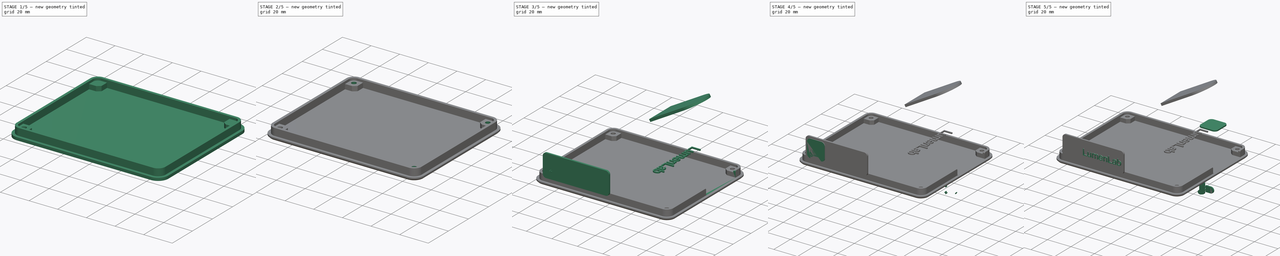
[diagram: build sequence overview — one tinted view per stage of 5, left to right]
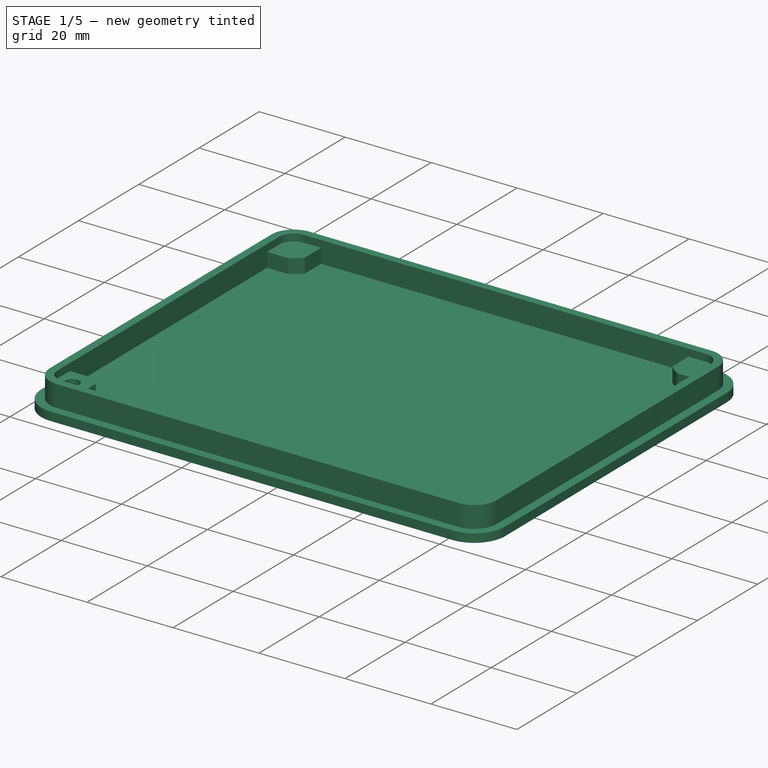
[diagram: stage 1 of 5 — iso view after this stage's code; geometry added in this stage tinted green]
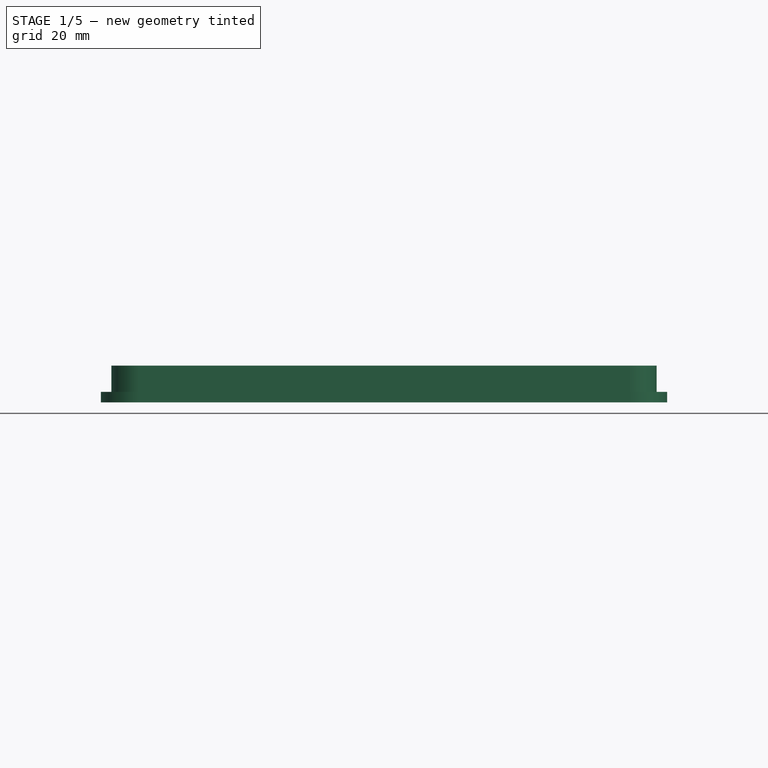
[diagram: stage 1 of 5 — front view after this stage's code; geometry added in this stage tinted green]
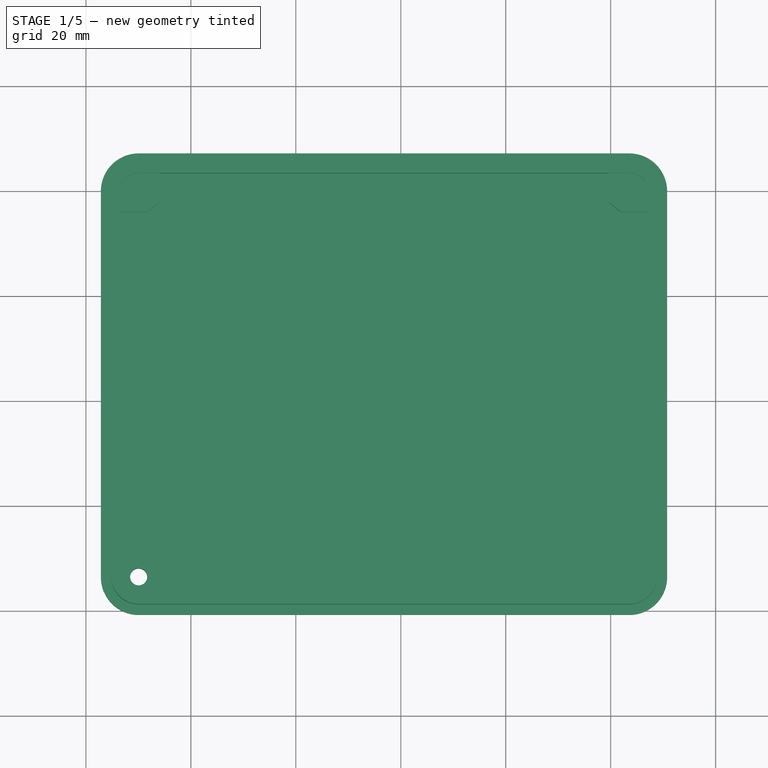
[diagram: stage 1 of 5 — top view after this stage's code; geometry added in this stage tinted green]
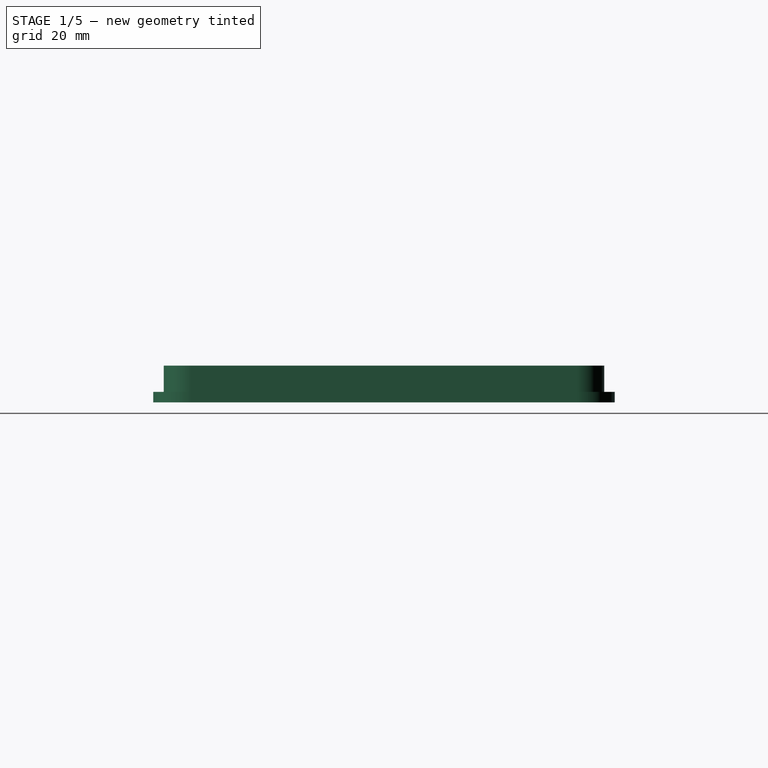
[diagram: stage 1 of 5 — right view after this stage's code; geometry added in this stage tinted green]
FCSTD DOCUMENT  (FreeCAD 1.1R20260325 (Git shallow))
Label: lumenlab-platform-enclosure
License: All rights reserved
objects: Part::Feature×242, App::Point×50, Sketcher::SketchObject×49, App::Link×40, App::Part×29, PartDesign::Pocket×25, PartDesign::Pad×22, PartDesign::Body×21, PartDesign::SubShapeBinder×9, PartDesign::Chamfer×9, PartDesign::FeatureBase×8, PartDesign::Plane×7, PartDesign::Mirrored×5, Part::Part2DObjectPython×4, PartDesign::Fillet×3, PartDesign::PolarPattern×2, Part::Extrusion×2, PartDesign::Line×1, PartDesign::CoordinateSystem×1, Part::Mirroring×1, +4 more types
note: 601 computed .brp shape members not serialized (recipe doc carries the construction recipe); baked Part::Feature solids carry a one-line shape summary decoded from their .brp

FEATURE [PartDesign::SubShapeBinder] Binder
  BindCopyOnChange = 0
  BindMode = 0
  ClaimChildren = false
  Context = -> Body [Binder.]
  Fuse = false
  MakeFace = true
  OffsetFill = false
  OffsetIntersection = false
  OffsetJoinType = 0
  OffsetOpenResult = false
  PartialLoad = false
  Refine = true
  Relative = true
  Support = -> [Board_aaa008]
  _Version = 2
FEATURE [Sketcher::SketchObject] Sketch
  ArcFitTolerance = 1e-06
  AttachmentOffset = pos=(0,0,3.75) rot=(0,0,1;0rad)
  AttachmentSupport = -> [Binder]
  ExternalGeometry = -> [Binder]
  ExternalTypes = [0]
  FullyConstrained = true
  MakeInternals = false
  MapMode = 5
  Placement = pos=(0,0,-5.3502) rot=(1,0,0;3.14159rad)
  _ExternalGeoVersion = 0
  sketch-geometry (10):
    g0: LineSegment StartX=-57.1492 StartY=33.5464 StartZ=0 EndX=-57.1492 EndY=-39.9989 EndZ=0
    g1: LineSegment StartX=-49.9485 StartY=-47.1996 StartZ=0 EndX=43.5501 EndY=-47.1996 EndZ=0
    g2: LineSegment StartX=50.7508 StartY=-39.9989 StartZ=0 EndX=50.7508 EndY=33.5464 EndZ=0
    g3: LineSegment StartX=43.5501 StartY=40.7472 StartZ=0 EndX=-49.9485 EndY=40.7472 EndZ=0
    g4: ArcOfCircle CenterX=-49.9485 CenterY=33.5464 CenterZ=0 NormalX=0 NormalY=0 NormalZ=1 AngleXU=0 Radius=7.20071 StartAngle=1.5708 EndAngle=3.14159
    g5: ArcOfCircle CenterX=-49.9485 CenterY=-39.9989 CenterZ=0 NormalX=0 NormalY=0 NormalZ=1 AngleXU=0 Radius=7.20071 StartAngle=3.14159 EndAngle=4.71239
    g6: ArcOfCircle CenterX=43.5501 CenterY=-39.9989 CenterZ=0 NormalX=0 NormalY=0 NormalZ=1 AngleXU=0 Radius=7.20071 StartAngle=4.71239 EndAngle=6.28319
    g7: ArcOfCircle CenterX=43.5501 CenterY=33.5464 CenterZ=0 NormalX=0 NormalY=0 NormalZ=1 AngleXU=0 Radius=7.20071 StartAngle=1e-16 EndAngle=1.5708
    g8: GeomPoint [constr] X=-57.1492 Y=40.7472 Z=0
    g9: GeomPoint [constr] X=50.7508 Y=-47.1996 Z=0
  constraints (23):
    c: Tangent(g0,g4) = -1.5708
    c: Tangent(g0,g5) = -1.5708
    c: Tangent(g1,g5) = -1.5708
    c: Tangent(g1,g6) = -1.5708
    c: Tangent(g2,g6) = -1.5708
    c: Tangent(g2,g7) = -1.5708
    c: Tangent(g3,g7) = -1.5708
    c: Tangent(g3,g4) = -1.5708
    c: Vertical(g0)
    c: Vertical(g2)
    c: Horizontal(g1)
    c: Horizontal(g3)
    c: Equal(g4,g5)
    c: Equal(g5,g6)
    c: Equal(g6,g7)
    c: PointOnObject(g8,g0)
    c: PointOnObject(g8,g3)
    c: PointOnObject(g9,g1)
    c: PointOnObject(g9,g2)
    c: DistanceX(g0,g-5) = 4  'enclosure-width'
    c: Coincident(g4,g-4)
    c: Distance(g-7,g2) = 4
    c: Distance(g-9,g1) = 4
FEATURE [PartDesign::Pad] Pad
  Direction = (0,0,-1)
  Length = 2
  Length2 = 10
  Profile = -> Sketch
  ReferenceAxis = -> Sketch [N_Axis]
  Refine = true
  SideType = 0
  Suppressed = false
  Type = 0
  Type2 = 0
FEATURE [Sketcher::SketchObject] Sketch001
  ArcFitTolerance = 1e-06
  AttachmentSupport = -> [Pad]
  ExternalGeometry = -> [Binder]
  ExternalTypes = [0]
  FullyConstrained = true
  MakeInternals = false
  MapMode = 5
  Placement = pos=(0,0,-5.3502) rot=(0,0,1;0rad)
  _ExternalGeoVersion = 0
  sketch-geometry (20):
    g0: LineSegment StartX=-55.15 StartY=39.9996 StartZ=0 EndX=-55.15 EndY=-33.5498 EndZ=0
    g1: LineSegment StartX=-49.95 StartY=-38.7498 StartZ=0 EndX=43.551 EndY=-38.7498 EndZ=0
    g2: LineSegment StartX=48.751 StartY=-33.5498 StartZ=0 EndX=48.751 EndY=39.9996 EndZ=0
    g3: LineSegment StartX=43.551 StartY=45.1996 StartZ=0 EndX=-49.95 EndY=45.1996 EndZ=0
    g4: ArcOfCircle CenterX=-49.95 CenterY=39.9996 CenterZ=0 NormalX=0 NormalY=0 NormalZ=1 AngleXU=0 Radius=5.19999 StartAngle=1.5708 EndAngle=3.14159
    g5: ArcOfCircle CenterX=-49.95 CenterY=-33.5498 CenterZ=0 NormalX=0 NormalY=0 NormalZ=1 AngleXU=0 Radius=5.19999 StartAngle=3.14159 EndAngle=4.71239
    g6: ArcOfCircle CenterX=43.551 CenterY=-33.5498 CenterZ=0 NormalX=0 NormalY=0 NormalZ=1 AngleXU=0 Radius=5.19999 StartAngle=4.71239 EndAngle=6.28319
    g7: ArcOfCircle CenterX=43.551 CenterY=39.9996 CenterZ=0 NormalX=0 NormalY=0 NormalZ=1 AngleXU=0 Radius=5.19999 StartAngle=5e-16 EndAngle=1.5708
    g8: GeomPoint [constr] X=-55.15 Y=45.1996 Z=0
    g9: GeomPoint [constr] X=48.751 Y=-38.7498 Z=0
    g10: LineSegment StartX=-53.35 StartY=39.9996 StartZ=0 EndX=-53.35 EndY=-33.5498 EndZ=0
    g11: LineSegment StartX=-49.95 StartY=-36.9498 StartZ=0 EndX=43.551 EndY=-36.9498 EndZ=0
    g12: LineSegment StartX=46.951 StartY=-33.5498 StartZ=0 EndX=46.951 EndY=39.9996 EndZ=0
    g13: LineSegment StartX=43.551 StartY=43.3996 StartZ=0 EndX=-49.95 EndY=43.3996 EndZ=0
    g14: ArcOfCircle CenterX=-49.95 CenterY=39.9996 CenterZ=0 NormalX=0 NormalY=0 NormalZ=1 AngleXU=0 Radius=3.39999 StartAngle=1.5708 EndAngle=3.14159
    g15: ArcOfCircle CenterX=-49.95 CenterY=-33.5498 CenterZ=0 NormalX=0 NormalY=0 NormalZ=1 AngleXU=0 Radius=3.39999 StartAngle=3.14159 EndAngle=4.71239
    g16: ArcOfCircle CenterX=43.551 CenterY=-33.5498 CenterZ=0 NormalX=0 NormalY=0 NormalZ=1 AngleXU=0 Radius=3.39999 StartAngle=4.71239 EndAngle=6.28319
    g17: ArcOfCircle CenterX=43.551 CenterY=39.9996 CenterZ=0 NormalX=0 NormalY=0 NormalZ=1 AngleXU=0 Radius=3.39999 StartAngle=0 EndAngle=1.5708
    g18: GeomPoint [constr] X=-53.35 Y=43.3996 Z=0
    g19: GeomPoint [constr] X=46.951 Y=-36.9498 Z=0
  constraints (46):
    c: Tangent(g0,g4) = -1.5708
    c: Tangent(g0,g5) = -1.5708
    c: Tangent(g1,g5) = -1.5708
    c: Tangent(g1,g6) = -1.5708
    c: Tangent(g2,g6) = -1.5708
    c: Tangent(g2,g7) = -1.5708
    c: Tangent(g3,g7) = -1.5708
    c: Tangent(g3,g4) = -1.5708
    c: Vertical(g0)
    c: Vertical(g2)
    c: Horizontal(g1)
    c: Horizontal(g3)
    c: Equal(g4,g5)
    c: Equal(g5,g6)
    c: Equal(g6,g7)
    c: PointOnObject(g8,g0)
    c: PointOnObject(g8,g3)
    c: PointOnObject(g9,g1)
    c: PointOnObject(g9,g2)
    c: DistanceX(g0,g-5) = 2
    c: Coincident(g4,g-4)
    c: DistanceX(g-7,g2) = 2
    c: DistanceY(g1,g-9) = 2
    c: Tangent(g10,g14) = -1.5708
    c: Tangent(g10,g15) = -1.5708
    c: Tangent(g11,g15) = -1.5708
    c: Tangent(g11,g16) = -1.5708
    c: Tangent(g12,g16) = -1.5708
    c: Tangent(g12,g17) = -1.5708
    c: Tangent(g13,g17) = -1.5708
    c: Tangent(g13,g14) = -1.5708
    c: Vertical(g10)
    c: Vertical(g12)
    c: Horizontal(g11)
    c: Horizontal(g13)
    c: Equal(g14,g15)
    c: Equal(g15,g16)
    c: Equal(g16,g17)
    c: PointOnObject(g18,g10)
    c: PointOnObject(g18,g13)
    c: PointOnObject(g19,g11)
    c: PointOnObject(g19,g12)
    c: DistanceX(g10,g-5) = 0.2
    c: DistanceX(g-7,g12) = 0.2
    c: DistanceY(g11,g-9) = 0.2
    c: Coincident(g14,g4)
FEATURE [PartDesign::Pad] Pad001
  BaseFeature = -> Pad
  Direction = (0,0,1)
  Length = 5
  Length2 = 10
  Profile = -> Sketch001
  ReferenceAxis = -> Sketch001 [N_Axis]
  Refine = true
  SideType = 0
  Suppressed = false
  Type = 0
  Type2 = 0
FEATURE [Sketcher::SketchObject] Sketch002
  ArcFitTolerance = 1e-06
  ExternalGeometry = -> [Binder,Pad001]
  ExternalTypes = [0]
  FullyConstrained = true
  MakeInternals = false
  MapMode = 5
  Placement = pos=(0,0,-2) rot=(1,0,0;3.14159rad)
  _ExternalGeoVersion = 0
  sketch-geometry (10):
    g0: LineSegment StartX=-53.1492 StartY=29.5498 StartZ=0 EndX=-53.35 EndY=29.5498 EndZ=0
    g1: LineSegment StartX=-45.95 StartY=36.7473 StartZ=0 EndX=-45.95 EndY=36.9498 EndZ=0
    g2: LineSegment StartX=-45.95 StartY=36.9498 StartZ=0 EndX=-49.95 EndY=36.9498 EndZ=0
    g3: LineSegment StartX=-53.35 StartY=29.5498 StartZ=0 EndX=-53.35 EndY=33.5498 EndZ=0
    g4: ArcOfCircle CenterX=-49.95 CenterY=33.5498 CenterZ=0 NormalX=0 NormalY=0 NormalZ=1 AngleXU=0 Radius=3.39999 StartAngle=1.5708 EndAngle=3.14159
    g5: LineSegment StartX=-53.1492 StartY=29.5498 StartZ=0 EndX=-48.6466 EndY=29.5498 EndZ=0
    g6: ArcOfCircle CenterX=-48.6466 CenterY=30.4451 CenterZ=0 NormalX=0 NormalY=0 NormalZ=1 AngleXU=0 Radius=0.895293 StartAngle=4.71239 EndAngle=5.38086
    g7: LineSegment StartX=-48.0918 StartY=29.7425 StartZ=0 EndX=-46.138 EndY=31.2855 EndZ=0
    g8: ArcOfCircle CenterX=-46.4444 CenterY=31.6735 CenterZ=0 NormalX=0 NormalY=0 NormalZ=1 AngleXU=0 Radius=0.494368 StartAngle=5.38086 EndAngle=6.28319
    g9: LineSegment StartX=-45.95 StartY=31.6735 StartZ=0 EndX=-45.95 EndY=36.7473 EndZ=0
  constraints (24):
    c: PointOnObject(g0,g-8)
    c: Horizontal(g0)
    c: PointOnObject(g1,g-7)
    c: Vertical(g1)
    c: Coincident(g2,g1)
    c: Coincident(g2,g-9)
    c: Coincident(g3,g0)
    c: Coincident(g3,g-9)
    c: Coincident(g4,g2)
    c: Coincident(g4,g3)
    c: PointOnObject(g0,g-10)
    c: PointOnObject(g1,g-11)
    c: DistanceY(g3,g3) = 4
    c: DistanceX(g2,g2) = 4
    c: Equal(g4,g-9)
    c: Coincident(g0,g5)
    c: Tangent(g5,g6) = -1.5708
    c: Tangent(g6,g7) = -1.5708
    c: Tangent(g7,g8) = -1.5708
    c: Tangent(g8,g9) = -1.5708
    c: Vertical(g9)
    c: Coincident(g9,g1)
    c: Horizontal(g5)
    c: Block(g7)
FEATURE [PartDesign::Pad] Pad002
  BaseFeature = -> Pad001
  Direction = (0,-1e-16,-1)
  Length = 10
  Length2 = 10
  Profile = -> Sketch002
  ReferenceAxis = -> Sketch002 [N_Axis]
  Refine = true
  SideType = 0
  Suppressed = false
  Type = 2
  Type2 = 0
FEATURE [PartDesign::Plane] DatumPlane
  AttachmentOffset = pos=(0,0,0) rot=(1,0,0;1.5708rad)
  AttachmentSupport = -> [Pad002]
  Length = 122.59
  MapMode = 45
  Placement = pos=(-3.1995,3.22491,-2.8502) rot=(1,0,0;1.5708rad)
  ResizeMode = 0
  Width = 64.6901
  expr: .AttachmentOffset.Rotation.Pitch = 0
FEATURE [PartDesign::Plane] DatumPlane001
  AttachmentOffset = pos=(0,0,0) rot=(1,0,0;1.5708rad)
  AttachmentSupport = -> [Pad002]
  Length = 101.209
  MapMode = 45
  Placement = pos=(-3.1995,3.22491,-2.8502) rot=(0.57735,0.57735,0.57735;2.0944rad)
  ResizeMode = 0
  Width = 63.2625
FEATURE [PartDesign::Line] DatumLine
  AttacherType = Attacher::AttachEngineLine
  AttachmentSupport = -> [DatumPlane001,DatumPlane]
  Length = 20
  MapMode = 30
  Placement = pos=(-3.1995,3.22491,-2.8502) rot=(0,1,0;3.14159rad)
  ResizeMode = 0
FEATURE [PartDesign::Mirrored] Mirrored
  BaseFeature = -> Pad002
  MirrorPlane = -> DatumPlane
  Originals = -> [Pad002]
  Refine = true
  Suppressed = false
  TransformMode = 0
FEATURE [PartDesign::Mirrored] Mirrored001
  BaseFeature = -> Mirrored
  MirrorPlane = -> DatumPlane001
  Originals = -> [Pad002]
  Refine = true
  Suppressed = false
  TransformMode = 0
FEATURE [PartDesign::PolarPattern] PolarPattern
  Angle = 360
  Axis = -> DatumLine
  BaseFeature = -> Mirrored001
  Mode = 0
  Occurrences = 2
  Offset = 120
  Originals = -> [Pad002]
  Refine = true
  Reversed = true
  SpacingPattern = [0]
  Spacings = [-1]
  Suppressed = false
  TransformMode = 0
FEATURE [Sketcher::SketchObject] Sketch003
  ArcFitTolerance = 1e-06
  AttachmentSupport = -> [PolarPattern]
  ExternalTypes = [0]
  FullyConstrained = true
  MakeInternals = false
  MapMode = 5
  Placement = pos=(0,0,-2) rot=(0,0,1;0rad)
  _ExternalGeoVersion = 0
  sketch-geometry (1):
    g0: Circle CenterX=-49.95 CenterY=-33.5498 CenterZ=0 NormalX=0 NormalY=0 NormalZ=1 AngleXU=0 Radius=1.625
  constraints (2):
    c: Coincident(g0,g-3)
    c: Diameter(g0) = 3.25
FEATURE [PartDesign::Pocket] Pocket
  BaseFeature = -> PolarPattern
  Direction = (0,0,-1)
  Length = 4.35
  Length2 = 5
  Profile = -> Sketch003
  ReferenceAxis = -> Sketch003 [N_Axis]
  Refine = true
  SideType = 0
  Suppressed = false
  Type = 1
  Type2 = 0
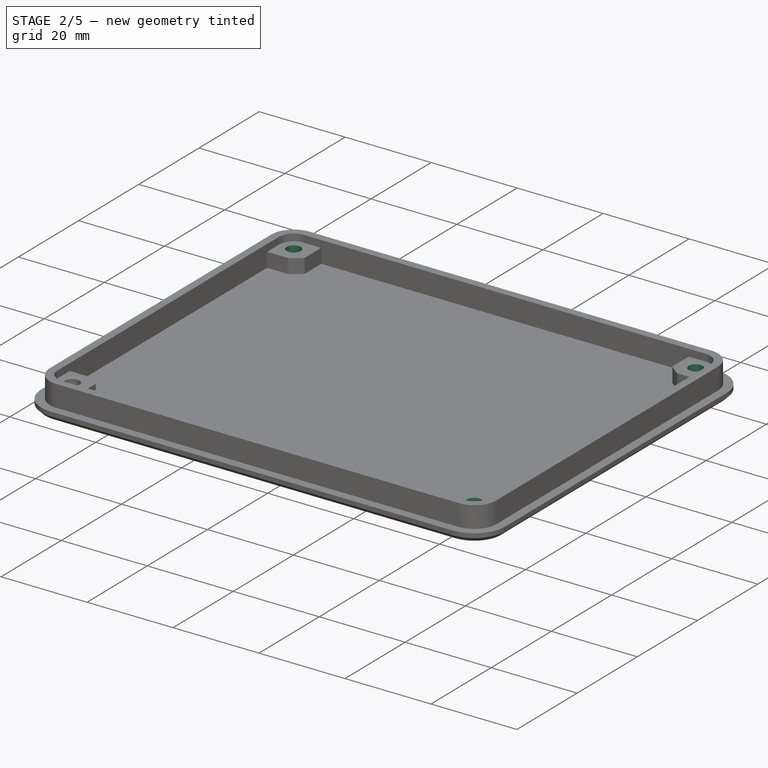
[diagram: stage 2 of 5 — iso view after this stage's code; geometry added in this stage tinted green]
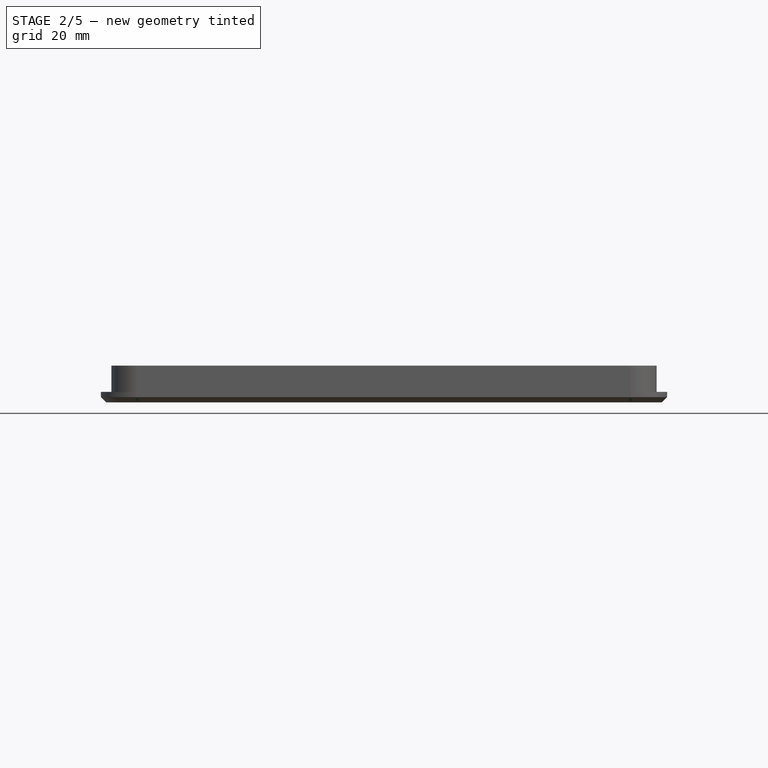
[diagram: stage 2 of 5 — front view after this stage's code; geometry added in this stage tinted green]
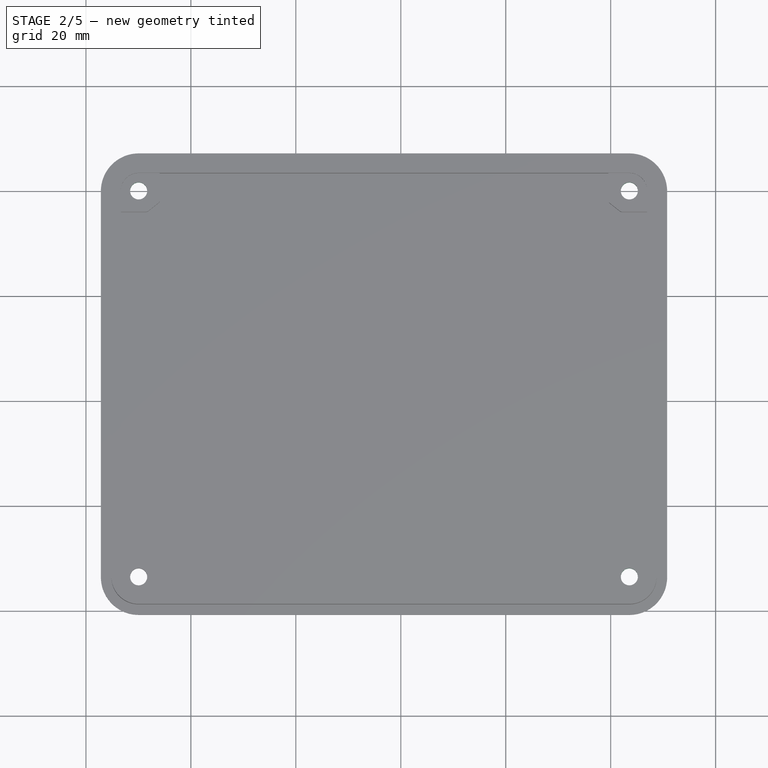
[diagram: stage 2 of 5 — top view after this stage's code; geometry added in this stage tinted green]
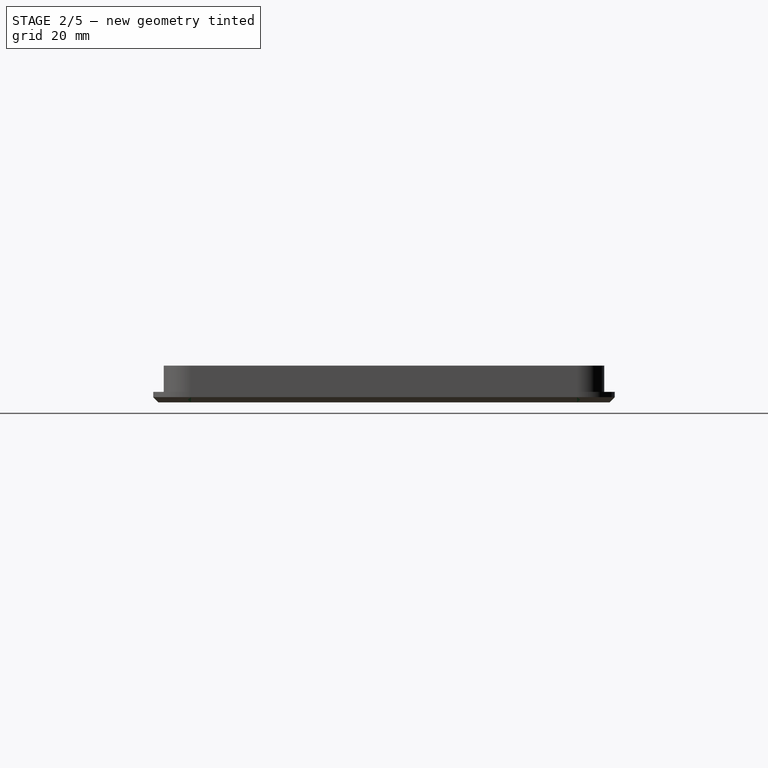
[diagram: stage 2 of 5 — right view after this stage's code; geometry added in this stage tinted green]
FEATURE [PartDesign::Mirrored] Mirrored002
  BaseFeature = -> Pocket
  MirrorPlane = -> DatumPlane
  Originals = -> [Pocket]
  Refine = true
  Suppressed = false
  TransformMode = 0
FEATURE [PartDesign::Mirrored] Mirrored003
  BaseFeature = -> Mirrored002
  MirrorPlane = -> DatumPlane001
  Originals = -> [Pocket]
  Refine = true
  Suppressed = false
  TransformMode = 0
FEATURE [PartDesign::PolarPattern] PolarPattern001
  Angle = 360
  Axis = -> DatumLine
  BaseFeature = -> Mirrored003
  Mode = 0
  Occurrences = 2
  Offset = 120
  Originals = -> [Pocket]
  Refine = true
  SpacingPattern = [0]
  Spacings = [-1]
  Suppressed = false
  TransformMode = 0
FEATURE [PartDesign::Body] Body007  label="logo-controller-d-pad"
  AllowCompound = false
  Group = -> [Sketch044,Pad021]
  Origin = -> Origin103
  Placement = pos=(0,-1.2,0) rot=(0,0,1;0rad)
  Tip = -> Pad021
FEATURE [Sketcher::SketchObject] Sketch046
  ArcFitTolerance = 1e-06
  AttachmentSupport = -> [PolarPattern001]
  ExternalGeometry = -> [PolarPattern001]
  ExternalTypes = [0,0,0,0]
  FullyConstrained = true
  MakeInternals = false
  MapMode = 5
  Placement = pos=(0,0,-7.3502) rot=(1,0,0;3.14159rad)
  _ExternalGeoVersion = 1
  sketch-geometry (4):
    g0: Circle CenterX=-49.95 CenterY=33.5498 CenterZ=0 NormalX=0 NormalY=0 NormalZ=1 AngleXU=0 Radius=3
    g1: Circle CenterX=43.551 CenterY=33.5498 CenterZ=0 NormalX=0 NormalY=0 NormalZ=1 AngleXU=0 Radius=3
    g2: Circle CenterX=43.551 CenterY=-39.9996 CenterZ=0 NormalX=0 NormalY=0 NormalZ=1 AngleXU=0 Radius=3
    g3: Circle CenterX=-49.95 CenterY=-39.9996 CenterZ=0 NormalX=0 NormalY=0 NormalZ=1 AngleXU=0 Radius=3
  constraints (8):
    c: Coincident(g0,g-6)
    c: Coincident(g1,g-5)
    c: Coincident(g2,g-4)
    c: Coincident(g3,g-3)
    c: Diameter(g0) = 6
    c: Equal(g0,g1)
    c: Equal(g0,g3)
    c: Equal(g0,g2)
FEATURE [PartDesign::Pocket] Pocket023
  BaseFeature = -> PolarPattern001
  Direction = (0,0,1)
  Length = 2.5
  Length2 = 5
  Profile = -> Sketch046
  ReferenceAxis = -> Sketch046 [N_Axis]
  Refine = true
  SideType = 0
  Suppressed = false
  Type = 0
  Type2 = 0
FEATURE [PartDesign::Body] Body017  label="led-clip-saddle"
  AllowCompound = false
  Group = -> [Binder012,Sketch061,Pad028]
  Origin = -> Origin123
  Tip = -> Pad028
FEATURE [Sketcher::SketchObject] Sketch067
  ArcFitTolerance = 1e-06
  AttachmentSupport = -> [Pocket023]
  ExternalGeometry = -> [Pocket023]
  ExternalTypes = [0,0,0,0]
  FullyConstrained = true
  MakeInternals = false
  MapMode = 5
  Placement = pos=(0,0,-7.3502) rot=(1,0,0;3.14159rad)
  _ExternalGeoVersion = 1
  sketch-geometry (4):
    g0: Circle CenterX=-49.95 CenterY=33.5498 CenterZ=0 NormalX=0 NormalY=0 NormalZ=1 AngleXU=0 Radius=3.625
    g1: Circle CenterX=43.551 CenterY=33.5498 CenterZ=0 NormalX=0 NormalY=0 NormalZ=1 AngleXU=0 Radius=3.625
    g2: Circle CenterX=43.551 CenterY=-39.9996 CenterZ=0 NormalX=0 NormalY=0 NormalZ=1 AngleXU=0 Radius=3.625
    g3: Circle CenterX=-49.95 CenterY=-39.9996 CenterZ=0 NormalX=0 NormalY=0 NormalZ=1 AngleXU=0 Radius=3.625
  constraints (8):
    c: Diameter(g0) = 7.25
    c: Coincident(g0,g-3)
    c: Coincident(g1,g-4)
    c: Coincident(g2,g-5)
    c: Coincident(g3,g-6)
    c: Equal(g0,g1)
    c: Equal(g0,g3)
    c: Equal(g0,g2)
FEATURE [PartDesign::Pocket] Pocket033
  BaseFeature = -> Pocket023
  Direction = (0,0,1)
  Length = 0.5
  Length2 = 5
  Profile = -> Sketch067
  ReferenceAxis = -> Sketch067 [N_Axis]
  Refine = true
  SideType = 0
  Suppressed = false
  Type = 0
  Type2 = 0
FEATURE [Part::Part2DObjectPython] ShapeString002  # Draft 2D object (typed FeaturePython)
  FontFile = <path>
  Fuse = false
  Justification = 6
  JustificationReference = 0
  KeepLeftMargin = false
  MakeFace = true
  ObliqueAngle = 0
  Placement = pos=(40.1807,-14.5677,-7.3502) rot=(0.707107,0.707107,0;3.14159rad)
  ScaleToSize = true
  Size = 4.5
  String = LumenLab v3
  Tracking = 0
FEATURE [Part::Part2DObjectPython] ShapeString003  # Draft 2D object (typed FeaturePython)
  FontFile = <path>
  Fuse = false
  Justification = 6
  JustificationReference = 0
  KeepLeftMargin = false
  MakeFace = true
  ObliqueAngle = 0
  Placement = pos=(36.4305,-15.2766,-7.3502) rot=(0.707107,0.707107,0;3.14159rad)
  ScaleToSize = true
  Size = 3
  String = Eric McDaniel - 2026
  Tracking = 0
FEATURE [PartDesign::Chamfer] Chamfer014
  Angle = 45
  Base = -> Pocket033 [Edge24]
  BaseFeature = -> Pocket033
  ChamferType = 0
  FlipDirection = false
  Refine = true
  Size = 1
  Size2 = 1
  SupportTransform = false
  Suppressed = false
  UseAllEdges = false
FEATURE [PartDesign::Pocket] Pocket034
  BaseFeature = -> Chamfer014
  Direction = (0,0,1)
  Length = 0.5
  Length2 = 5
  Profile = -> ShapeString002
  ReferenceAxis = -> ShapeString002 [N_Axis]
  Refine = true
  SideType = 0
  Suppressed = false
  Type = 0
  Type2 = 0
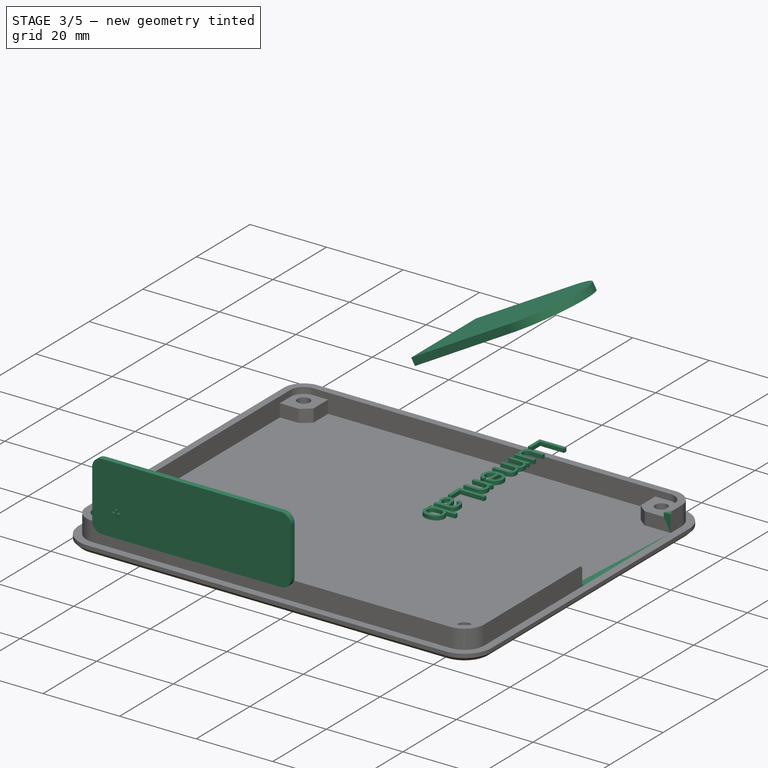
[diagram: stage 3 of 5 — iso view after this stage's code; geometry added in this stage tinted green]
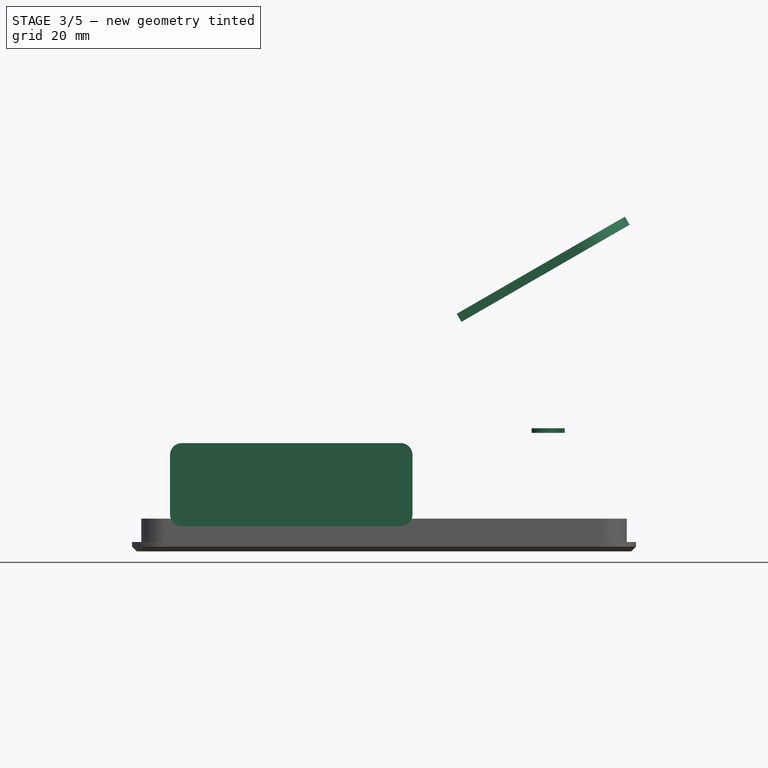
[diagram: stage 3 of 5 — front view after this stage's code; geometry added in this stage tinted green]
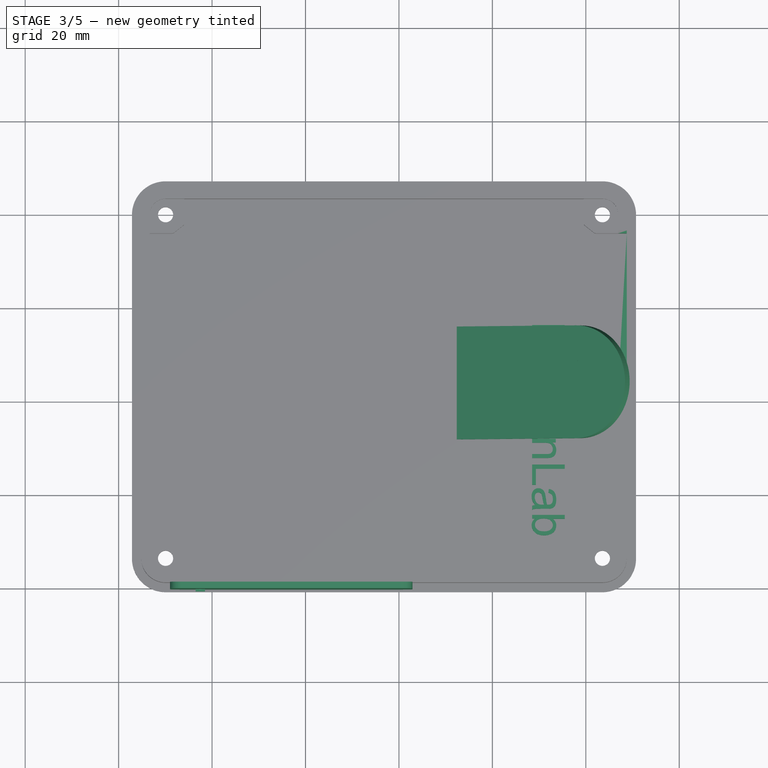
[diagram: stage 3 of 5 — top view after this stage's code; geometry added in this stage tinted green]
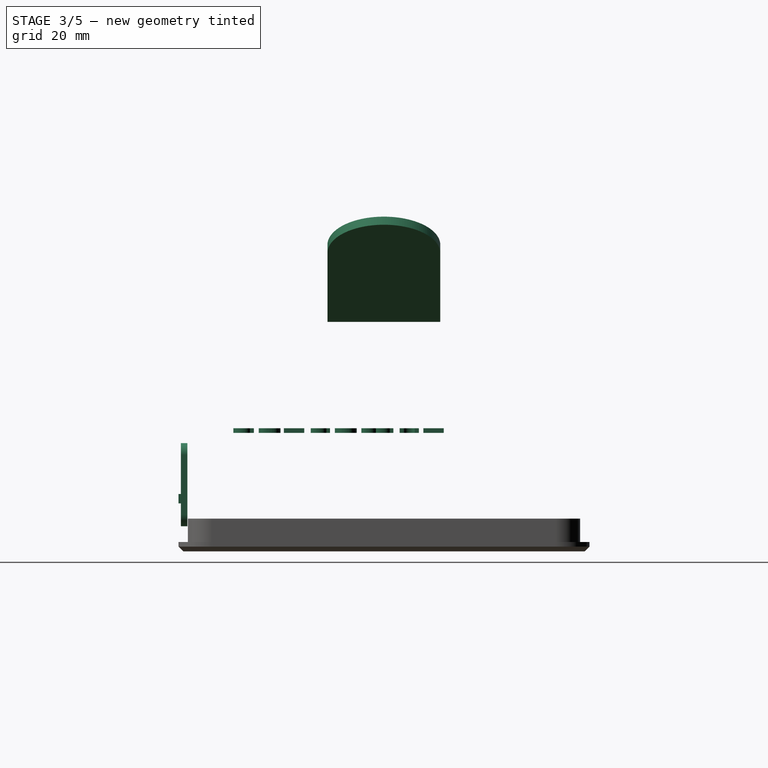
[diagram: stage 3 of 5 — right view after this stage's code; geometry added in this stage tinted green]
FEATURE [PartDesign::Body] Body006  label="logo-controller-button"
  AllowCompound = false
  Group = -> [Sketch043,Pad020]
  Origin = -> Origin101
  Placement = pos=(0,-1.2,0) rot=(0,0,1;0rad)
  Tip = -> Pad020
FEATURE [App::Point] Origin104  label="Origin105"
  Role = Origin
FEATURE [Sketcher::SketchObject] Sketch044
  ArcFitTolerance = 1e-06
  AttachmentOffset = pos=(-39.25,-6.25,40.75) rot=(0,0,1;0rad)
  AttachmentSupport = -> [Origin103]
  ExternalTypes = [0]
  FullyConstrained = false
  MakeInternals = false
  MapMode = 5
  Placement = pos=(-39.25,-40.75,-6.25) rot=(1,0,0;1.5708rad)
  _ExternalGeoVersion = 1
  sketch-geometry (15):
    g0: LineSegment StartX=-3.01409 StartY=9.17394 StartZ=0 EndX=-3.01409 EndY=9.92394 EndZ=0
    g1: LineSegment StartX=-3.01409 StartY=11.1739 StartZ=0 EndX=-3.51409 EndY=11.1739 EndZ=0
    g2: LineSegment StartX=-3.51409 StartY=11.1739 StartZ=0 EndX=-3.51409 EndY=10.4239 EndZ=0
    g3: LineSegment StartX=-3.51409 StartY=9.17394 StartZ=0 EndX=-3.01409 EndY=9.17394 EndZ=0
    g4: LineSegment StartX=-2.26409 StartY=9.92394 StartZ=0 EndX=-2.26409 EndY=10.4239 EndZ=0
    g5: LineSegment StartX=-2.26409 StartY=10.4239 StartZ=0 EndX=-3.01409 EndY=10.4239 EndZ=0
    g6: LineSegment StartX=-4.26409 StartY=10.4239 StartZ=0 EndX=-4.26409 EndY=9.92394 EndZ=0
    g7: LineSegment StartX=-4.26409 StartY=9.92394 StartZ=0 EndX=-3.51409 EndY=9.92394 EndZ=0
    g8: LineSegment [constr] StartX=-3.01409 StartY=9.17394 StartZ=0 EndX=-2.26409 EndY=9.92394 EndZ=0
    g9: LineSegment [constr] StartX=-4.26409 StartY=10.4239 StartZ=0 EndX=-3.51409 EndY=11.1739 EndZ=0
    g10: LineSegment [constr] StartX=-3.01409 StartY=11.1739 StartZ=0 EndX=-2.26409 EndY=10.4239 EndZ=0
    g11: LineSegment StartX=-3.01409 StartY=9.92394 StartZ=0 EndX=-2.26409 EndY=9.92394 EndZ=0
    g12: LineSegment StartX=-3.01409 StartY=10.4239 StartZ=0 EndX=-3.01409 EndY=11.1739 EndZ=0
    g13: LineSegment StartX=-3.51409 StartY=10.4239 StartZ=0 EndX=-4.26409 EndY=10.4239 EndZ=0
    g14: LineSegment StartX=-3.51409 StartY=9.92394 StartZ=0 EndX=-3.51409 EndY=9.17394 EndZ=0
  constraints (40):
    c: Coincident(g12,g1)
    c: Coincident(g1,g2)
    c: Coincident(g14,g3)
    c: Coincident(g3,g0)
    c: Horizontal(g1)
    c: Horizontal(g3)
    c: Distance(g0,g14) = 0.5
    c: Distance(g1,g3) = 2
    c: Coincident(g4,g5)
    c: Coincident(g13,g6)
    c: Coincident(g6,g7)
    c: Coincident(g11,g4)
    c: Vertical(g4)
    c: Vertical(g6)
    c: Distance(g4,g6) = 2
    c: Distance(g5,g11) = 0.5
    c: Coincident(g8,g0)
    c: Coincident(g8,g4)
    c: Coincident(g9,g13)
    c: Coincident(g9,g1)
    c: Coincident(g10,g12)
    c: Coincident(g10,g4)
    c: Equal(g8,g10)
    c: Equal(g8,g9)
    c: Horizontal(g7)
    c: Horizontal(g11)
    c: Vertical(g0)
    c: Vertical(g12)
    c: Coincident(g11,g0)
    c: Horizontal(g5)
    c: Horizontal(g13)
    c: Coincident(g12,g5)
    c: Vertical(g2)
    c: Vertical(g14)
    c: Coincident(g7,g14)
    c: Coincident(g13,g2)
    c: Vertical(g0,g5)
    c: Vertical(g7,g2)
    c: Horizontal(g7,g0)
    c: Horizontal(g2,g5)
FEATURE [PartDesign::Pad] Pad021
  Direction = (0,-1,2e-16)
  Length = 1
  Length2 = 10
  Profile = -> Sketch044
  ReferenceAxis = -> Sketch044 [N_Axis]
  Refine = true
  Reversed = true
  SideType = 0
  Suppressed = false
  Type = 0
  Type2 = 0
FEATURE [PartDesign::Body] Body015  label="logo-controller-d-pad-top"
  AllowCompound = false
  Group = -> [Clone006]
  Origin = -> Origin119
  Placement = pos=(0,0,0.5) rot=(1,0,0;1.5708rad)
  Tip = -> Clone006
FEATURE [Part::Part2DObjectPython] ShapeString001  # Draft 2D object (typed FeaturePython)
  AttachmentSupport = -> [Clone]
  FontFile = <path>
  Fuse = false
  Justification = 4
  JustificationReference = 0
  KeepLeftMargin = false
  MakeFace = true
  ObliqueAngle = 0
  Placement = pos=(32,-6.5,19) rot=(0,0,1;4.71239rad)
  ScaleToSize = true
  Size = 7
  String = LumenLab
  Tracking = 0
FEATURE [Part::Extrusion] Extrude001  label="logo-text-top"
  Base = -> ShapeString001
  Dir = (0,0,1)
  DirMode = 2
  FaceMakerClass = Part::FaceMakerBullseye
  FaceMakerMode = 3
  InnerWireTaper = 0
  LengthFwd = 1
  LengthRev = 0
  Reversed = true
  Solid = false
  Symmetric = false
FEATURE [App::Point] Origin122  label="Origin129"
  Role = Origin
FEATURE [PartDesign::SubShapeBinder] Binder006
  BindCopyOnChange = 0
  BindMode = 0
  ClaimChildren = false
  Context = -> Body016 [Binder006.]
  Fuse = false
  MakeFace = true
  OffsetFill = false
  OffsetIntersection = false
  OffsetJoinType = 0
  OffsetOpenResult = false
  PartialLoad = false
  Refine = true
  Relative = true
  Support = -> [Body001]
  _Version = 2
FEATURE [Part::FeaturePython] PS3_Controller  # WARN: FeaturePython — macro-defined, semantics opaque (R4)
  Placement = pos=(12.0682,45.7992,77.9515) rot=(0.654654,-0.654654,-0.377964;2.41886rad)
FEATURE [PartDesign::SubShapeBinder] Binder007
  BindCopyOnChange = 0
  BindMode = 0
  ClaimChildren = false
  Context = -> Body016 [Binder007.]
  Fuse = false
  MakeFace = true
  OffsetFill = false
  OffsetIntersection = false
  OffsetJoinType = 0
  OffsetOpenResult = false
  PartialLoad = false
  Refine = true
  Relative = true
  Support = -> [PS3_Controller]
  _Version = 2
FEATURE [Sketcher::SketchObject] Sketch050
  ArcFitTolerance = 1e-06
  AttachmentSupport = -> [Binder007]
  ExternalGeometry = -> [Binder007]
  ExternalTypes = [0,0,0,0,0,0,0]
  FullyConstrained = false
  MakeInternals = false
  MapMode = 5
  Placement = pos=(-15.7431,5e-16,27.2678) rot=(0.965926,0,0.258819;3.14159rad)
  _ExternalGeoVersion = 1
  sketch-geometry (44):
    g0: LineSegment StartX=14.7182 StartY=28.9768 StartZ=0 EndX=18.1182 EndY=28.9768 EndZ=0
    g1: LineSegment StartX=14.7182 StartY=-35.1235 StartZ=0 EndX=18.1182 EndY=-35.1235 EndZ=0
    g2: ArcOfCircle CenterX=28.7277 CenterY=18.953 CenterZ=0 NormalX=0 NormalY=0 NormalZ=1 AngleXU=0 Radius=17.2262 StartAngle=2.52054 EndAngle=3.77326
    g3: ArcOfCircle CenterX=28.7277 CenterY=-25.0997 CenterZ=0 NormalX=0 NormalY=0 NormalZ=1 AngleXU=0 Radius=17.2262 StartAngle=2.50993 EndAngle=3.76265
    g4: ArcOfCircle CenterX=28.7277 CenterY=18.953 CenterZ=0 NormalX=0 NormalY=0 NormalZ=1 AngleXU=0 Radius=10 StartAngle=2.27093 EndAngle=4.40385
    g5: ArcOfCircle CenterX=28.7277 CenterY=-25.0997 CenterZ=0 NormalX=0 NormalY=0 NormalZ=1 AngleXU=0 Radius=10 StartAngle=1.87933 EndAngle=3.98193
    g6: LineSegment StartX=25.6911 StartY=9.42521 StartZ=0 EndX=25.6911 EndY=16.3262 EndZ=0
    g7: LineSegment StartX=25.6911 StartY=-15.5719 StartZ=0 EndX=25.6911 EndY=-22.3413 EndZ=0
    g8: LineSegment StartX=32.5059 StartY=12.8763 StartZ=0 EndX=62.0059 EndY=12.8763 EndZ=0
    g9: ArcOfCircle CenterX=62.0059 CenterY=-3.07369 CenterZ=0 NormalX=0 NormalY=0 NormalZ=1 AngleXU=0 Radius=15.95 StartAngle=4.71239 EndAngle=7.85398
    g10: Circle [constr] CenterX=18.1182 CenterY=28.9768 CenterZ=0 NormalX=0 NormalY=0 NormalZ=1 AngleXU=0 Radius=1
    g11: Circle [constr] CenterX=24.3003 CenterY=29.1669 CenterZ=0 NormalX=0 NormalY=0 NormalZ=1 AngleXU=0 Radius=1
    g12: Circle [constr] CenterX=22.2845 CenterY=26.6006 CenterZ=0 NormalX=0 NormalY=0 NormalZ=1 AngleXU=0 Radius=1
    g13: BSplineCurve PolesCount=3 KnotsCount=2 Degree=2 IsPeriodic=0
    g14: GeomPoint [constr] X=18.1182 Y=28.9768 Z=0
    g15: GeomPoint [constr] X=22.2845 Y=26.6006 Z=0
    g16: Circle [constr] CenterX=18.1182 CenterY=-35.1235 CenterZ=0 NormalX=0 NormalY=0 NormalZ=1 AngleXU=0 Radius=1
    g17: Circle [constr] CenterX=24.3003 CenterY=-35.3594 CenterZ=0 NormalX=0 NormalY=0 NormalZ=1 AngleXU=0 Radius=1
    g18: Circle [constr] CenterX=22.0556 CenterY=-32.5484 CenterZ=0 NormalX=0 NormalY=0 NormalZ=1 AngleXU=0 Radius=1
    g19: BSplineCurve PolesCount=3 KnotsCount=2 Degree=2 IsPeriodic=0
    g20: GeomPoint [constr] X=18.1182 Y=-35.1235 Z=0
    g21: GeomPoint [constr] X=22.0556 Y=-32.5484 Z=0
    g22: Circle [constr] CenterX=14.8254 CenterY=8.78113 CenterZ=0 NormalX=0 NormalY=0 NormalZ=1 AngleXU=0 Radius=1
    g23: Circle [constr] CenterX=22.5059 CenterY=-3.07336 CenterZ=0 NormalX=0 NormalY=0 NormalZ=1 AngleXU=0 Radius=1
    g24: Circle [constr] CenterX=14.8254 CenterY=-14.9279 CenterZ=0 NormalX=0 NormalY=0 NormalZ=1 AngleXU=0 Radius=1
    g25: BSplineCurve PolesCount=3 KnotsCount=2 Degree=2 IsPeriodic=0
    g26: GeomPoint [constr] X=14.8254 Y=8.78113 Z=0
    g27: GeomPoint [constr] X=14.8254 Y=-14.9279 Z=0
    g28: LineSegment [constr] StartX=29.7892 StartY=4.11327 StartZ=0 EndX=22.5059 EndY=-3.07336 EndZ=0
    g29: LineSegment [constr] StartX=29.7892 StartY=-10.26 StartZ=0 EndX=22.5059 EndY=-3.07336 EndZ=0
    g30: LineSegment StartX=32.5059 StartY=12.8763 StartZ=0 EndX=32.5059 EndY=16.3262 EndZ=0
    g31: LineSegment StartX=31.7836 StartY=17.0486 StartZ=0 EndX=26.4134 EndY=17.0486 EndZ=0
    g32: LineSegment StartX=62.0059 StartY=-19.0237 StartZ=0 EndX=32.5059 EndY=-19.0237 EndZ=0
    g33: LineSegment StartX=32.5059 StartY=-19.0237 StartZ=0 EndX=32.5059 EndY=-22.3413 EndZ=0
    g34: LineSegment StartX=31.7836 StartY=-23.0637 StartZ=0 EndX=26.4134 EndY=-23.0637 EndZ=0
    g35: ArcOfCircle CenterX=31.7836 CenterY=16.3262 CenterZ=0 NormalX=0 NormalY=0 NormalZ=1 AngleXU=0 Radius=0.722378 StartAngle=2.3e-15 EndAngle=1.5708
    g36: GeomPoint [constr] X=32.5059 Y=17.0486 Z=0
    g37: ArcOfCircle CenterX=26.4134 CenterY=16.3262 CenterZ=0 NormalX=0 NormalY=0 NormalZ=1 AngleXU=0 Radius=0.722378 StartAngle=1.5708 EndAngle=3.14159
    g38: GeomPoint [constr] X=25.6911 Y=17.0486 Z=0
    g39: ArcOfCircle CenterX=31.7836 CenterY=-22.3413 CenterZ=0 NormalX=0 NormalY=0 NormalZ=1 AngleXU=0 Radius=0.722378 StartAngle=4.71239 EndAngle=6.28319
    g40: GeomPoint [constr] X=32.5059 Y=-23.0637 Z=0
    g41: ArcOfCircle CenterX=26.4134 CenterY=-22.3413 CenterZ=0 NormalX=0 NormalY=0 NormalZ=1 AngleXU=0 Radius=0.722378 StartAngle=3.14159 EndAngle=4.71239
    g42: GeomPoint [constr] X=25.6911 Y=-23.0637 Z=0
    g43: LineSegment [constr] StartX=32.5059 StartY=12.8763 StartZ=0 EndX=32.5059 EndY=-19.0237 EndZ=0
  constraints (91):
    c: Horizontal(g0,g-3)
    c: Horizontal(g1,g-4)
    c: Coincident(g0,g-3)
    c: DistanceX(g0,g0) = 3.4
    c: Coincident(g1,g-4)
    c: DistanceX(g1,g1) = 3.4
    c: Coincident(g2,g-3)
    c: Coincident(g2,g0)
    c: Coincident(g3,g-4)
    c: Coincident(g3,g1)
    c: Coincident(g4,g2)
    c: Coincident(g5,g3)
    c: Radius(g4) = 10
    c: Radius(g5) = 10
    c: Vertical(g4,g5)
    c: Coincident(g6,g4)
    c: Vertical(g6)
    c: Coincident(g7,g5)
    c: Vertical(g7)
    c: Horizontal(g8)
    c: Tangent(g8,g9) = 1.5708
    c: Weight(g10) = 1
    c: Equal(g10,g11)
    c: Equal(g10,g12)
    c: InternalAlignment(g10,g13)
    c: InternalAlignment(g11,g13)
    c: InternalAlignment(g12,g13)
    c: InternalAlignment(g14,g13)
    c: InternalAlignment(g15,g13)
    c: Coincident(g10,g0)
    c: Coincident(g12,g4)
    c: Weight(g16) = 1
    c: Equal(g16,g17)
    c: Equal(g16,g18)
    c: InternalAlignment(g16,g19)
    c: InternalAlignment(g17,g19)
    c: InternalAlignment(g18,g19)
    c: InternalAlignment(g20,g19)
    c: InternalAlignment(g21,g19)
    c: Coincident(g16,g1)
    c: Coincident(g18,g5)
    c: Vertical(g11,g17)
    c: Weight(g22) = 1
    c: Equal(g22,g23)
    c: Equal(g22,g24)
    c: InternalAlignment(g22,g25)
    c: InternalAlignment(g23,g25)
    c: InternalAlignment(g24,g25)
    c: InternalAlignment(g26,g25)
    c: InternalAlignment(g27,g25)
    c: Vertical(g25,g25)
    c: Coincident(g28,g-8)
    c: Coincident(g28,g23)
    c: Coincident(g29,g-8)
    c: Coincident(g29,g23)
    c: Equal(g28,g29)
    c: Coincident(g25,g2)
    c: Coincident(g25,g3)
    c: DistanceX(g8,g8) = 29.5
    c: Coincident(g30,g8)
    c: Vertical(g30)
    c: Horizontal(g31)
    c: Horizontal(g32)
    c: Coincident(g33,g32)
    c: Vertical(g33)
    c: Horizontal(g34)
    c: PointOnObject(g36,g30)
    c: PointOnObject(g36,g31)
    c: Tangent(g30,g35) = -1.5708
    c: Tangent(g31,g35) = -1.5708
    c: PointOnObject(g38,g6)
    c: PointOnObject(g38,g31)
    c: Tangent(g6,g37) = 1.5708
    c: Tangent(g31,g37) = -1.5708
    c: PointOnObject(g40,g33)
    c: PointOnObject(g40,g34)
    c: Tangent(g33,g39) = 1.5708
    c: Tangent(g34,g39) = 1.5708
    c: PointOnObject(g42,g7)
    c: PointOnObject(g42,g34)
    c: Tangent(g7,g41) = -1.5708
    c: Tangent(g34,g41) = 1.5708
    c: Equal(g35,g37)
    c: Equal(g35,g39)
    c: Equal(g35,g41)
    c: DistanceX(g23,g9) = 39.5
    c: Tangent(g32,g9) = 1.5708
    c: Distance(g32,g8) = 31.9
    c: Coincident(g43,g8)
    c: Coincident(g43,g32)
    c: Vertical(g43)
FEATURE [PartDesign::Pad] Pad023
  Direction = (0.5,0,-0.866025)
  Length = 3
  Length2 = 10
  Profile = -> Sketch050
  ReferenceAxis = -> Sketch050 [N_Axis]
  Refine = true
  SideType = 0
  Suppressed = false
  Type = 0
  Type2 = 0
FEATURE [Sketcher::SketchObject] Sketch051
  ArcFitTolerance = 1e-06
  AttachmentSupport = -> [Pad023]
  ExternalGeometry = -> [Binder007,Pad023]
  ExternalTypes = [0,0,0,0,0,0,0,0]
  FullyConstrained = false
  MakeInternals = false
  MapMode = 5
  Placement = pos=(-15.7431,0,27.2678) rot=(0,-1,0;0.523599rad)
  _ExternalGeoVersion = 1
  sketch-geometry (24):
    g0: ArcOfCircle CenterX=28.7277 CenterY=25.0997 CenterZ=0 NormalX=0 NormalY=0 NormalZ=1 AngleXU=0 Radius=15.1872 StartAngle=2.42075 EndAngle=3.62843
    g1: LineSegment [constr] StartX=15.3049 StartY=17.9946 StartZ=0 EndX=15.3049 EndY=-11.8479 EndZ=0
    g2: LineSegment StartX=17.3182 StartY=35.1235 StartZ=0 EndX=14.7182 EndY=35.1235 EndZ=0
    g3-g9: Circle [constr] x7 (B-spline internal-alignment scaffolding for g10; pole/knot coordinates omitted)
    g10: BSplineCurve PolesCount=7 KnotsCount=5 Degree=3 IsPeriodic=0
    g11-g15: GeomPoint [constr] x5 (B-spline internal-alignment scaffolding for g10; pole/knot coordinates omitted)
    g16: LineSegment [constr] StartX=21.176 StartY=8.55829 StartZ=0 EndX=21.176 EndY=-2.41156 EndZ=0
    g17: LineSegment [constr] StartX=23.1344 StartY=12.0134 StartZ=0 EndX=23.1344 EndY=-10.8872 EndZ=0
    g18: ArcOfCircle CenterX=28.7277 CenterY=-18.953 CenterZ=0 NormalX=0 NormalY=0 NormalZ=1 AngleXU=0 Radius=15.1872 StartAngle=2.65476 EndAngle=3.86243
    g19: LineSegment StartX=14.7182 StartY=-28.9768 StartZ=0 EndX=17.3182 EndY=-28.9768 EndZ=0
    g20: LineSegment [constr] StartX=23.1344 StartY=10.26 StartZ=0 EndX=29.7892 EndY=10.26 EndZ=0
    g21: LineSegment [constr] StartX=23.1344 StartY=-4.11327 StartZ=0 EndX=29.7892 EndY=-4.11327 EndZ=0
    g22: LineSegment [constr] StartX=21.176 StartY=8.55829 StartZ=0 EndX=29.7892 EndY=10.26 EndZ=0
    g23: LineSegment [constr] StartX=21.176 StartY=-2.41156 StartZ=0 EndX=29.7892 EndY=-4.11327 EndZ=0
  constraints (42):
    c: Distance(g-3) = 69.7881
    c: Distance(g-3) = 69.7881
    c: PointOnObject(g0,g-6)
    c: DistanceX(g0,g-6) = 0.8
    c: Vertical(g1)
    c: Coincident(g2,g0)
    c: Coincident(g2,g-6)
    c: Coincident(g0,g1)
    c: Weight(g3) = 1
    c: Equal(g3,g4)
    c: Equal(g3,g5)
    c: Equal(g3,g6)
    c: Equal(g3,g8)
    c: Equal(g3,g9)
    c: InternalAlignment(g3-g9 -> g10) x7
    c: InternalAlignment(g11-g15 -> g10) x5
    c: Coincident(g9,g1)
    c: Coincident(g10,g0)
    c: Coincident(g16,g4)
    c: Vertical(g16)
    c: Coincident(g16,g8)
    c: PointOnObject(g5,g17)
    c: PointOnObject(g6,g17)
    c: Coincident(g18,g-19)
    c: Coincident(g18,g10)
    c: Horizontal(g-17,g18)
    c: DistanceX(g18,g-17) = 0.8
    c: Vertical(g17)
    c: Coincident(g19,g-19)
    c: Coincident(g19,g18)
    c: Coincident(g20,g5)
    c: Coincident(g20,g-4)
    c: Horizontal(g20)
    c: Coincident(g21,g7)
    c: Coincident(g21,g-4)
    c: Symmetric(g7,g5,g6)
    c: Coincident(g22,g4)
    c: Coincident(g22,g20)
    c: Coincident(g23,g8)
    c: Coincident(g23,g21)
    c: Equal(g23,g22)
    c: Symmetric(g7,g5,g13)
FEATURE [Sketcher::SketchObject] Sketch054
  ArcFitTolerance = 1e-06
  AttachmentOffset = pos=(0,0,5) rot=(0,0,1;0rad)
  ExternalTypes = [0,0,0]
  FullyConstrained = false
  MakeInternals = false
  MapMode = 5
  Placement = pos=(30.1283,5e-14,17.3946) rot=(0.447214,0.447214,0.774597;1.82348rad)
  _ExternalGeoVersion = 1
  sketch-geometry (24):
    g0: BSplineCurve PolesCount=4 KnotsCount=2 Degree=3 IsPeriodic=0
    g1: ArcOfCircle CenterX=-21.3632 CenterY=31.5542 CenterZ=0 NormalX=0 NormalY=0 NormalZ=1 AngleXU=0 Radius=7.61389 StartAngle=1.74061 EndAngle=3.15052
    g2: LineSegment [constr] StartX=-5.38635 StartY=60.4862 StartZ=0 EndX=-5.38635 EndY=32.2414 EndZ=0
    g3: LineSegment [constr] StartX=-5.38635 StartY=32.2414 StartZ=0 EndX=3.07336 EndY=32.2414 EndZ=0
    g4: LineSegment [constr] StartX=3.07336 StartY=32.2414 StartZ=0 EndX=3.07336 EndY=60.4862 EndZ=0
    g5: LineSegment [constr] StartX=3.07336 StartY=60.4862 StartZ=0 EndX=-5.38635 EndY=60.4862 EndZ=0
    g6: LineSegment [constr] StartX=11.5331 StartY=60.4862 StartZ=0 EndX=3.07336 EndY=60.4862 EndZ=0
    g7: LineSegment [constr] StartX=3.07336 StartY=60.4862 StartZ=0 EndX=3.07336 EndY=32.2414 EndZ=0
    g8: LineSegment [constr] StartX=3.07336 StartY=32.2414 StartZ=0 EndX=11.5331 EndY=32.2414 EndZ=0
    g9: LineSegment [constr] StartX=11.5331 StartY=32.2414 StartZ=0 EndX=11.5331 EndY=60.4862 EndZ=0
    g10: LineSegment [constr] StartX=11.5331 StartY=60.4862 StartZ=0 EndX=-5.38635 EndY=32.2414 EndZ=0
    g11: LineSegment [constr] StartX=-5.38635 StartY=60.4862 StartZ=0 EndX=11.5331 EndY=32.2414 EndZ=0
    g12: GeomPoint [constr] X=3.07336 Y=46.3638 Z=0
    g13: LineSegment [constr] StartX=-28.9768 StartY=60.4862 StartZ=0 EndX=-5.38635 EndY=60.4862 EndZ=0
    g14: LineSegment [constr] StartX=11.5331 StartY=60.4862 StartZ=0 EndX=35.1235 EndY=60.4862 EndZ=0
    g15: ArcOfCircle CenterX=27.5795 CenterY=31.4875 CenterZ=0 NormalX=0 NormalY=0 NormalZ=1 AngleXU=0 Radius=7.54399 StartAngle=6.283 EndAngle=7.68194
    g16: BSplineCurve PolesCount=4 KnotsCount=2 Degree=3 IsPeriodic=0
    g17: LineSegment StartX=-28.9768 StartY=31.4862 StartZ=0 EndX=-28.9768 EndY=31.4861 EndZ=0
    g18: LineSegment StartX=-28.9768 StartY=31.4861 StartZ=0 EndX=-33.2243 EndY=31.4861 EndZ=0
    g19: LineSegment StartX=-33.2243 StartY=31.4861 StartZ=0 EndX=-33.2243 EndY=61.0561 EndZ=0
    g20: LineSegment StartX=39.371 StartY=31.4861 StartZ=0 EndX=39.371 EndY=61.0561 EndZ=0
    g21: LineSegment StartX=35.1235 StartY=31.4861 StartZ=0 EndX=39.371 EndY=31.4861 EndZ=0
    g22: LineSegment StartX=-5.38635 StartY=60.4862 StartZ=0 EndX=11.5331 EndY=60.4862 EndZ=0
    g23: LineSegment StartX=-33.2243 StartY=61.0561 StartZ=0 EndX=39.371 EndY=61.0561 EndZ=0
  constraints (47):
    c: Coincident(g1,g-3) = -1.5708
    c: Tangent(g0,g1) = -1.5708
    c: Coincident(g2,g3)
    c: Coincident(g3,g4)
    c: Coincident(g4,g5)
    c: Coincident(g5,g2)
    c: Vertical(g2)
    c: Vertical(g4)
    c: Horizontal(g3)
    c: Horizontal(g5)
    c: Coincident(g2,g0)
    c: Coincident(g6,g7)
    c: Coincident(g7,g8)
    c: Coincident(g8,g9)
    c: Coincident(g9,g6)
    c: Horizontal(g6)
    c: Horizontal(g8)
    c: Vertical(g7)
    c: Vertical(g9)
    c: Coincident(g7,g3)
    c: Coincident(g10,g6)
    c: Coincident(g10,g2)
    c: Coincident(g11,g2)
    c: Coincident(g11,g8)
    c: Symmetric(g10,g10,g12)
    c: PointOnObject(g12,g4)
    c: Coincident(g13,g-3)
    c: Coincident(g13,g2)
    c: Horizontal(g13)
    c: Coincident(g14,g6)
    c: Coincident(g14,g-4)
    c: Equal(g14,g13)
    c: Tangent(g16,g15) = 1.5708
    c: Tangent(g1,g17) = -1.5708
    c: Coincident(g17,g18)
    c: Coincident(g18,g19)
    c: Vertical(g19)
    c: Horizontal(g18)
    c: DistanceY(g19,g19) = 29.57
    c: Symmetric(g16,g22,g4)
    c: Symmetric(g18,g21,g4)
    c: Symmetric(g18,g21,g4)
    c: Symmetric(g19,g20,g4)
    c: Symmetric(g19,g20,g4)
    c: Coincident(g23,g19)
    c: Coincident(g23,g20)
    c: Coincident(g21,g15)
FEATURE [PartDesign::Plane] DatumPlane003
  AttachmentOffset = pos=(0,0,-1) rot=(0,0,1;0rad)
  AttachmentSupport = -> [Binder006]
  Length = 92.4589
  MapMode = 5
  Placement = pos=(0,0,17.6498) rot=(0,0,1;0rad)
  ResizeMode = 0
  Width = 78.2686
FEATURE [PartDesign::Plane] DatumPlane004
  AttachmentOffset = pos=(0,0,-1) rot=(0,0,1;0rad)
  AttachmentSupport = -> [Binder006]
  Length = 120.069
  MapMode = 5
  Placement = pos=(5.15041,3.8e-15,20.5239) rot=(0,1,0;0.24587rad)
  ResizeMode = 0
  Width = 80.411
FEATURE [Sketcher::SketchObject] Sketch060
  ArcFitTolerance = 1e-06
  AttachmentSupport = -> [DatumPlane004]
  ExternalTypes = [0]
  FullyConstrained = false
  MakeInternals = false
  MapMode = 5
  Placement = pos=(5.15041,3.8e-15,20.5239) rot=(0,1,0;0.24587rad)
  _ExternalGeoVersion = 1
  sketch-geometry (4):
    g0: LineSegment StartX=-96.5363 StartY=-61.7548 StartZ=0 EndX=96.3187 EndY=-61.7548 EndZ=0
    g1: LineSegment StartX=96.3187 StartY=-61.7548 StartZ=0 EndX=96.3187 EndY=65.0481 EndZ=0
    g2: LineSegment StartX=96.3187 StartY=65.0481 StartZ=0 EndX=-96.5363 EndY=65.0481 EndZ=0
    g3: LineSegment StartX=-96.5363 StartY=65.0481 StartZ=0 EndX=-96.5363 EndY=-61.7548 EndZ=0
  constraints (8):
    c: Coincident(g0,g1)
    c: Coincident(g1,g2)
    c: Coincident(g2,g3)
    c: Coincident(g3,g0)
    c: Horizontal(g0)
    c: Horizontal(g2)
    c: Vertical(g1)
    c: Vertical(g3)
FEATURE [App::Point] Origin124  label="Origin132"
  Role = Origin
FEATURE [App::Point] Origin126  label="Origin134"
  Role = Origin
FEATURE [Sketcher::SketchObject] Sketch062
  ArcFitTolerance = 1e-06
  ExternalTypes = [0]
  FullyConstrained = false
  MakeInternals = false
  MapMode = 5
  Placement = pos=(-15.7431,0,27.2678) rot=(0,-1,0;0.523599rad)
  _ExternalGeoVersion = 1
  sketch-geometry (4):
    g0: ArcOfCircle CenterX=61.1508 CenterY=5.68121 CenterZ=0 NormalX=0 NormalY=0 NormalZ=1 AngleXU=0 Radius=2.33897 StartAngle=3.97592 EndAngle=7.11751
    g1: ArcOfCircle CenterX=56.7644 CenterY=9.65805 CenterZ=0 NormalX=0 NormalY=0 NormalZ=1 AngleXU=0 Radius=2.33897 StartAngle=0.834326 EndAngle=3.97592
    g2: LineSegment StartX=59.5798 StartY=3.9484 StartZ=0 EndX=55.1934 EndY=7.92524 EndZ=0
    g3: LineSegment StartX=62.7218 StartY=7.41402 StartZ=0 EndX=58.3355 EndY=11.3909 EndZ=0
  constraints (5):
    c: Tangent(g0,g2) = 1.5708
    c: Tangent(g0,g3) = -1.5708
    c: Tangent(g1,g2) = 1.5708
    c: Tangent(g1,g3) = -1.5708
    c: Equal(g0,g1)
FEATURE [PartDesign::Pad] Pad029
  Direction = (-0.5,0,0.866025)
  Length = 2
  Length2 = 10
  Placement = pos=(-15.7431,0,27.2678) rot=(0,-1,0;0.523599rad)
  Profile = -> Sketch062
  ReferenceAxis = -> Sketch062 [N_Axis]
  Refine = true
  Reversed = true
  SideType = 0
  Suppressed = false
  Type = 0
  Type2 = 0
FEATURE [Sketcher::SketchObject] Sketch063
  ArcFitTolerance = 1e-06
  AttachmentOffset = pos=(0,0,15) rot=(0,0,1;0rad)
  AttachmentSupport = -> [Pad023]
  ExternalGeometry = -> [Binder007,Pad023]
  ExternalTypes = [0,0,0,0,0,0,0,0]
  FullyConstrained = false
  MakeInternals = false
  MapMode = 5
  Placement = pos=(-23.2431,0,40.2582) rot=(0,-1,0;0.523599rad)
  _ExternalGeoVersion = 1
  sketch-geometry (24):
    g0: ArcOfCircle CenterX=28.7277 CenterY=25.0997 CenterZ=0 NormalX=0 NormalY=0 NormalZ=1 AngleXU=0 Radius=15.1872 StartAngle=2.42075 EndAngle=3.62843
    g1: LineSegment [constr] StartX=15.3049 StartY=17.9946 StartZ=0 EndX=15.3049 EndY=-11.8479 EndZ=0
    g2: LineSegment StartX=17.3182 StartY=35.1235 StartZ=0 EndX=14.7182 EndY=35.1235 EndZ=0
    g3-g9: Circle [constr] x7 (B-spline internal-alignment scaffolding for g10; pole/knot coordinates omitted)
    g10: BSplineCurve PolesCount=7 KnotsCount=5 Degree=3 IsPeriodic=0
    g11-g15: GeomPoint [constr] x5 (B-spline internal-alignment scaffolding for g10; pole/knot coordinates omitted)
    g16: LineSegment [constr] StartX=21.1816 StartY=8.52334 StartZ=0 EndX=21.1816 EndY=-2.32745 EndZ=0
    g17: LineSegment [constr] StartX=23.029 StartY=12.0134 StartZ=0 EndX=23.029 EndY=-10.8872 EndZ=0
    g18: ArcOfCircle CenterX=28.7277 CenterY=-18.953 CenterZ=0 NormalX=0 NormalY=0 NormalZ=1 AngleXU=0 Radius=15.1872 StartAngle=2.65476 EndAngle=3.86243
    g19: LineSegment StartX=14.7182 StartY=-28.9768 StartZ=0 EndX=17.3182 EndY=-28.9768 EndZ=0
    g20: LineSegment [constr] StartX=23.029 StartY=10.26 StartZ=0 EndX=29.7892 EndY=10.26 EndZ=0
    g21: LineSegment [constr] StartX=23.029 StartY=-4.11329 StartZ=0 EndX=29.7892 EndY=-4.11327 EndZ=0
    g22: LineSegment [constr] StartX=21.1816 StartY=8.52334 StartZ=0 EndX=29.7892 EndY=10.26 EndZ=0
    g23: LineSegment [constr] StartX=21.1917 StartY=-2.32745 StartZ=0 EndX=29.7892 EndY=-4.11327 EndZ=0
  constraints (40):
    c: Distance(g-3) = 69.7881
    c: Distance(g-3) = 69.7881
    c: PointOnObject(g0,g-6)
    c: DistanceX(g0,g-6) = 0.8
    c: Vertical(g1)
    c: Coincident(g2,g0)
    c: Coincident(g2,g-6)
    c: Coincident(g0,g1)
    c: Weight(g3) = 1
    c: Equal(g3,g4)
    c: Equal(g3,g5)
    c: Equal(g3,g6)
    c: Equal(g3,g8)
    c: Equal(g3,g9)
    c: InternalAlignment(g3-g9 -> g10) x7
    c: InternalAlignment(g11-g15 -> g10) x5
    c: Coincident(g9,g1)
    c: Coincident(g10,g0)
    c: Coincident(g16,g4)
    c: Vertical(g16)
    c: Coincident(g16,g8)
    c: PointOnObject(g5,g17)
    c: PointOnObject(g6,g17)
    c: Coincident(g18,g-19)
    c: Coincident(g18,g10)
    c: Horizontal(g-17,g18)
    c: DistanceX(g18,g-17) = 0.8
    c: Coincident(g19,g-19)
    c: Coincident(g19,g18)
    c: Coincident(g20,g5)
    c: Coincident(g20,g-4)
    c: Horizontal(g20)
    c: Coincident(g21,g7)
    c: Coincident(g21,g-4)
    c: Equal(g21,g20)
    c: Symmetric(g7,g5,g6)
    c: Symmetric(g7,g5,g13)
    c: Coincident(g22,g4)
    c: Coincident(g22,g20)
    c: Equal(g22,g23)
FEATURE [Sketcher::SketchObject] Sketch064
  ArcFitTolerance = 1e-06
  AttachmentOffset = pos=(0,0,29) rot=(0,0,1;0rad)
  AttachmentSupport = -> [Pad023]
  ExternalGeometry = -> [Binder007,Pad023]
  ExternalTypes = [0,0,0,0,0,0,0,0]
  FullyConstrained = false
  MakeInternals = false
  MapMode = 5
  Placement = pos=(-30.2431,0,52.3826) rot=(0,-1,0;0.523599rad)
  _ExternalGeoVersion = 1
  sketch-geometry (22):
    g0: ArcOfCircle CenterX=28.7277 CenterY=25.0997 CenterZ=0 NormalX=0 NormalY=0 NormalZ=1 AngleXU=0 Radius=15.1872 StartAngle=2.42075 EndAngle=3.62843
    g1: LineSegment [constr] StartX=15.3049 StartY=17.9946 StartZ=0 EndX=15.3049 EndY=-11.8479 EndZ=0
    g2: LineSegment StartX=17.3182 StartY=35.1235 StartZ=0 EndX=14.7182 EndY=35.1235 EndZ=0
    g3-g9: Circle [constr] x7 (B-spline internal-alignment scaffolding for g10; pole/knot coordinates omitted)
    g10: BSplineCurve PolesCount=7 KnotsCount=5 Degree=3 IsPeriodic=0
    g11-g15: GeomPoint [constr] x5 (B-spline internal-alignment scaffolding for g10; pole/knot coordinates omitted)
    g16: LineSegment [constr] StartX=20.0417 StartY=8.54077 StartZ=0 EndX=20.0417 EndY=-2.37827 EndZ=0
    g17: LineSegment [constr] StartX=30.4048 StartY=12.0134 StartZ=0 EndX=30.4048 EndY=-10.8872 EndZ=0
    g18: ArcOfCircle CenterX=28.7277 CenterY=-18.953 CenterZ=0 NormalX=0 NormalY=0 NormalZ=1 AngleXU=0 Radius=15.1872 StartAngle=2.65476 EndAngle=3.86243
    g19: LineSegment StartX=14.7182 StartY=-28.9768 StartZ=0 EndX=17.3182 EndY=-28.9768 EndZ=0
    g20: LineSegment [constr] StartX=30.4048 StartY=10.26 StartZ=0 EndX=29.7892 EndY=10.26 EndZ=0
    g21: LineSegment [constr] StartX=30.4048 StartY=-4.11327 StartZ=0 EndX=29.7892 EndY=-4.11327 EndZ=0
  constraints (37):
    c: Distance(g-3) = 69.7881
    c: Distance(g-3) = 69.7881
    c: PointOnObject(g0,g-6)
    c: DistanceX(g0,g-6) = 0.8
    c: Vertical(g1)
    c: Coincident(g2,g0)
    c: Coincident(g2,g-6)
    c: Coincident(g0,g1)
    c: Weight(g3) = 1
    c: Equal(g3,g4)
    c: Equal(g3,g5)
    c: Equal(g3,g6)
    c: Equal(g3,g8)
    c: Equal(g3,g9)
    c: InternalAlignment(g3-g9 -> g10) x7
    c: InternalAlignment(g11-g15 -> g10) x5
    c: Coincident(g9,g1)
    c: Coincident(g10,g0)
    c: Coincident(g16,g4)
    c: Vertical(g16)
    c: Coincident(g16,g8)
    c: PointOnObject(g5,g17)
    c: PointOnObject(g6,g17)
    c: PointOnObject(g7,g17)
    c: Coincident(g18,g-19)
    c: Coincident(g18,g10)
    c: Horizontal(g-17,g18)
    c: DistanceX(g18,g-17) = 0.8
    c: Vertical(g17)
    c: Coincident(g19,g-19)
    c: Coincident(g19,g18)
    c: Coincident(g20,g5)
    c: Coincident(g20,g-4)
    c: Horizontal(g20)
    c: Coincident(g21,g7)
    c: Coincident(g21,g-4)
    c: Equal(g21,g20)
FEATURE [PartDesign::AdditiveLoft] AdditiveLoft
  BaseFeature = -> Pad023
  Closed = false
  Profile = -> Sketch051
  Refine = true
  Ruled = true
  Sections = -> [Sketch063,Sketch064]
  Suppressed = false
FEATURE [PartDesign::Pocket] Pocket026
  BaseFeature = -> AdditiveLoft
  Direction = (-0.866025,-1.3e-15,-0.5)
  Length = 50
  Length2 = 5
  Profile = -> Sketch054
  ReferenceAxis = -> Sketch054 [N_Axis]
  Refine = true
  SideType = 0
  Suppressed = false
  Type = 0
  Type2 = 0
FEATURE [Sketcher::SketchObject] Sketch055
  ArcFitTolerance = 1e-06
  AttachmentSupport = -> [Pad023]
  ExternalGeometry = -> [Binder007,Pocket026]
  ExternalTypes = [0,0,0,0]
  FullyConstrained = false
  MakeInternals = false
  MapMode = 5
  Placement = pos=(-15.7431,0,27.2678) rot=(0,-1,0;0.523599rad)
  _ExternalGeoVersion = 1
  sketch-geometry (2):
    g0: ArcOfCircle CenterX=62.0059 CenterY=3.07369 CenterZ=0 NormalX=0 NormalY=0 NormalZ=1 AngleXU=0 Radius=15.95 StartAngle=4.87526 EndAngle=7.69111
    g1: LineSegment StartX=64.5923 StartY=18.8126 StartZ=0 EndX=64.5923 EndY=-12.6652 EndZ=0
  constraints (5):
    c: Coincident(g0,g-5)
    c: PointOnObject(g0,g-6)
    c: PointOnObject(g0,g-6)
    c: Coincident(g1,g0)
    c: Coincident(g1,g0)
FEATURE [PartDesign::Pad] Pad026
  BaseFeature = -> Pocket026
  Direction = (-0.5,0,0.866025)
  Length = 28.2
  Length2 = 10
  Profile = -> Sketch055
  ReferenceAxis = -> Sketch055 [N_Axis]
  Refine = true
  SideType = 0
  Suppressed = false
  Type = 0
  Type2 = 0
FEATURE [Sketcher::SketchObject] Sketch056
  ArcFitTolerance = 1e-06
  AttachmentSupport = -> [Pad026]
  ExternalGeometry = -> [Pad026]
  ExternalTypes = [0,0]
  FullyConstrained = false
  MakeInternals = false
  MapMode = 5
  Placement = pos=(0,-12.8763,0) rot=(1,0,0;1.5708rad)
  _ExternalGeoVersion = 1
  sketch-geometry (21):
    g0: LineSegment StartX=36.7889 StartY=90.1597 StartZ=0 EndX=25.1906 EndY=83.6418 EndZ=0
    g1: LineSegment StartX=25.1906 StartY=83.6418 StartZ=0 EndX=40.1955 EndY=59.564 EndZ=0
    g2: LineSegment StartX=39.277 StartY=91.6181 StartZ=0 EndX=37.2357 EndY=90.4177 EndZ=0
    g3-g9: Circle [constr] x7 (B-spline internal-alignment scaffolding for g10; pole/knot coordinates omitted)
    g10: BSplineCurve PolesCount=7 KnotsCount=5 Degree=3 IsPeriodic=0
    g11-g15: GeomPoint [constr] x5 (B-spline internal-alignment scaffolding for g10; pole/knot coordinates omitted)
    g16: LineSegment [constr] StartX=37.9556 StartY=58.2708 StartZ=0 EndX=41.0861 EndY=60.0782 EndZ=0
    g17: LineSegment StartX=40.1955 StartY=59.564 StartZ=0 EndX=41.0861 EndY=60.0782 EndZ=0
    g18: LineSegment [constr] StartX=37.6687 StartY=90.6677 StartZ=0 EndX=37.2357 EndY=90.4177 EndZ=0
    g19: LineSegment StartX=41.9869 StartY=83.259 StartZ=0 EndX=39.277 EndY=91.6181 EndZ=0
    g20: LineSegment StartX=41.9869 StartY=83.259 StartZ=0 EndX=37.2357 EndY=90.4177 EndZ=0
  constraints (20):
    c: PointOnObject(g0,g-3)
    c: Coincident(g0,g1)
    c: Weight(g3) = 1
    c: Equal(g3, g4-g9) x6
    c: InternalAlignment(g3-g9 -> g10) x7
    c: InternalAlignment(g11-g15 -> g10) x5
    c: Coincident(g9,g0)
    c: Coincident(g-4,g1)
    c: Coincident(g16,g-4)
    c: Coincident(g16,g10)
    c: PointOnObject(g1,g16)
    c: Coincident(g17,g1)
    c: Coincident(g17,g16)
    c: Coincident(g18,g-3)
    c: Parallel(g-3,g18)
    c: Distance(g18,g18) = 0.5
    c: Coincident(g2,g18)
    c: Coincident(g19,g2)
    c: Coincident(g20,g19)
    c: Coincident(g20,g2)
FEATURE [PartDesign::Pocket] Pocket027
  BaseFeature = -> Pad026
  Direction = (0,1,-2e-16)
  Length = 5
  Length2 = 5
  Profile = -> Sketch056
  ReferenceAxis = -> Sketch056 [N_Axis]
  Refine = true
  SideType = 0
  Suppressed = false
  Type = 1
  Type2 = 0
FEATURE [Sketcher::SketchObject] Sketch057
  ArcFitTolerance = 1e-06
  AttachmentOffset = pos=(24,0,81) rot=(0,1,0;1.0472rad)
  AttachmentSupport = -> [XY_Plane076]
  ExternalGeometry = -> [Pocket027]
  ExternalTypes = [0,0,0]
  FullyConstrained = false
  MakeInternals = false
  MapMode = 5
  Placement = pos=(24,0,81) rot=(0,1,0;1.0472rad)
  _ExternalGeoVersion = 1
  sketch-geometry (14):
    g0: LineSegment StartX=-0.200427 StartY=9.95203 StartZ=0 EndX=-0.207796 EndY=-3.95812 EndZ=0
    g1: GeomPoint [constr] X=0 Y=10.6894 Z=0
    g2: GeomPoint [constr] X=0 Y=-4.74102 Z=0
    g3: LineSegment StartX=26.6619 StartY=18.427 StartZ=0 EndX=2.41845 EndY=12.7063 EndZ=0
    g4: LineSegment StartX=26.6619 StartY=-12.2797 StartZ=0 EndX=2.66362 EndY=-6.68203 EndZ=0
    g5: LineSegment StartX=26.6619 StartY=18.427 StartZ=0 EndX=26.6619 EndY=19.0237 EndZ=0
    g6: LineSegment StartX=26.6619 StartY=19.0237 StartZ=0 EndX=-27.4268 EndY=19.0237 EndZ=0
    g7: LineSegment StartX=-27.4268 StartY=19.0237 StartZ=0 EndX=-27.4268 EndY=-12.8763 EndZ=0
    g8: LineSegment StartX=-27.4268 StartY=-12.8763 StartZ=0 EndX=26.6619 EndY=-12.8763 EndZ=0
    g9: LineSegment StartX=26.6619 StartY=-12.8763 StartZ=0 EndX=26.6619 EndY=-12.2797 EndZ=0
    g10: LineSegment [constr] StartX=4.11424 StartY=10.1432 StartZ=0 EndX=-27.4268 EndY=19.0237 EndZ=0
    g11: LineSegment [constr] StartX=4.11424 StartY=-3.99583 StartZ=0 EndX=-27.4268 EndY=-12.8763 EndZ=0
    g12: ArcOfEllipse CenterX=4.11424 CenterY=-3.99583 CenterZ=0 NormalX=0 NormalY=0 NormalZ=1 MajorRadius=4.32231 MinorRadius=2.86452 AngleXU=3.12645 StartAngle=0.00968497 EndAngle=1.23856
    g13: ArcOfEllipse CenterX=4.11424 CenterY=10.1432 CenterZ=0 NormalX=0 NormalY=0 NormalZ=1 MajorRadius=4.32231 MinorRadius=2.86452 AngleXU=-3.06211 StartAngle=5.06358 EndAngle=6.2301
  constraints (25):
    c: Coincident(g3,g5)
    c: Coincident(g5,g-4)
    c: Vertical(g5)
    c: Coincident(g5,g6)
    c: Horizontal(g6)
    c: Coincident(g6,g7)
    c: Vertical(g7)
    c: Coincident(g7,g8)
    c: Coincident(g8,g-5)
    c: Horizontal(g8)
    c: Coincident(g8,g9)
    c: Coincident(g9,g4)
    c: Vertical(g9)
    c: Equal(g5,g9)
    c: Vertical(g11,g10)
    c: Coincident(g10,g6)
    c: Coincident(g11,g7)
    c: Equal(g10,g11)
    c: Coincident(g12,g11)
    c: Coincident(g13,g10)
    c: Tangent(g0,g13) = -1.5708
    c: Coincident(g13,g3)
    c: Tangent(g0,g12) = -1.5708
    c: Coincident(g12,g4)
    c: Equal(g13,g12)
FEATURE [PartDesign::Pocket] Pocket028
  BaseFeature = -> Pocket027
  Direction = (-0.866025,0,-0.5)
  Length = 14
  Length2 = 5
  Profile = -> Sketch057
  ReferenceAxis = -> Sketch057 [N_Axis]
  Refine = true
  Reversed = true
  SideType = 0
  Suppressed = false
  Type = 1
  Type2 = 0
FEATURE [Sketcher::SketchObject] Sketch058
  ArcFitTolerance = 1e-06
  AttachmentSupport = -> [DatumPlane003]
  ExternalGeometry = -> [Pocket028]
  ExternalTypes = [0,0,0,0,0,0]
  FullyConstrained = false
  MakeInternals = false
  MapMode = 5
  Placement = pos=(0,0,17.6498) rot=(0,0,1;0rad)
  _ExternalGeoVersion = 1
  sketch-geometry (18):
    g0: LineSegment [constr] StartX=39.4556 StartY=3.07369 StartZ=0 EndX=9.90658 EndY=3.07369 EndZ=0
    g1: ArcOfCircle CenterX=39.4556 CenterY=3.07369 CenterZ=0 NormalX=0 NormalY=0 NormalZ=1 AngleXU=0 Radius=13.8351 StartAngle=6.17032 EndAngle=6.39605
    g2-g5: Circle [constr] x4 (B-spline internal-alignment scaffolding for g6; pole/knot coordinates omitted)
    g6: BSplineCurve PolesCount=4 KnotsCount=2 Degree=3 IsPeriodic=0
    g7: GeomPoint [constr] X=4.71827 Y=-8.78113 Z=0
    g8: GeomPoint [constr] X=53.2027 Y=1.51555 Z=0
    g9: BSplineCurve PolesCount=4 KnotsCount=2 Degree=3 IsPeriodic=0
    g10-g13: Circle [constr] x4 (B-spline internal-alignment scaffolding for g9; pole/knot coordinates omitted)
    g14: GeomPoint [constr] X=4.71827 Y=14.9285 Z=0
    g15: GeomPoint [constr] X=53.2027 Y=4.63182 Z=0
    g16: LineSegment StartX=-1.40393 StartY=-8.78113 StartZ=0 EndX=4.71827 EndY=-8.78113 EndZ=0
    g17: LineSegment StartX=4.71827 StartY=14.9285 StartZ=0 EndX=-1.40393 EndY=14.9279 EndZ=0
  constraints (27):
    c: Coincident(g0,g-3)
    c: Horizontal(g0)
    c: Coincident(g1,g0)
    c: PointOnObject(g1,g-3)
    c: PointOnObject(g1,g-3)
    c: Weight(g2) = 1
    c: Equal(g2,g3)
    c: Equal(g2,g4)
    c: Equal(g2,g5)
    c: InternalAlignment(g2-g5 -> g6) x4
    c: InternalAlignment(g7,g6)
    c: InternalAlignment(g8,g6)
    c: Coincident(g5,g1)
    c: InternalAlignment(g10-g15 -> g9) x6
    c: Equal(g2,g10)
    c: Symmetric(g2,g10,g0)
    c: Equal(g3,g11)
    c: Symmetric(g3,g11,g0)
    c: Equal(g4,g12)
    c: Symmetric(g4,g12,g0)
    c: Equal(g5,g13)
    c: Symmetric(g5,g13,g0)
    c: Coincident(g16,g-5)
    c: Horizontal(g16)
    c: Coincident(g6,g16)
    c: Coincident(g17,g9)
    c: Coincident(g17,g-6)
FEATURE [PartDesign::Pad] Pad027
  BaseFeature = -> Pocket028
  Direction = (0,0,1)
  Length = 10
  Length2 = 10
  Profile = -> Sketch058
  ReferenceAxis = -> Sketch058 [N_Axis]
  Refine = true
  SideType = 0
  Suppressed = false
  Type = 2
  Type2 = 0
FEATURE [Sketcher::SketchObject] Sketch059
  ArcFitTolerance = 1e-06
  AttachmentOffset = pos=(0,0,24) rot=(0,0,1;0rad)
  AttachmentSupport = -> [XZ_Plane076]
  ExternalGeometry = -> [Pad027,Binder006]
  ExternalTypes = [0,0]
  FullyConstrained = false
  MakeInternals = false
  MapMode = 5
  Placement = pos=(0,-24,5.3e-15) rot=(1,0,0;1.5708rad)
  _ExternalGeoVersion = 1
  sketch-geometry (20):
    g0: LineSegment [constr] StartX=53.2907 StartY=63.6604 StartZ=0 EndX=53.2907 EndY=-15.1912 EndZ=0
    g1: LineSegment StartX=53.2907 StartY=59.9106 StartZ=0 EndX=53.2907 EndY=11.6114 EndZ=0
    g2-g6: Circle [constr] x5 (B-spline internal-alignment scaffolding for g7; pole/knot coordinates omitted)
    g7: BSplineCurve PolesCount=5 KnotsCount=3 Degree=3 IsPeriodic=0
    g8: GeomPoint [constr] X=53.2907 Y=59.9106 Z=0
    g9: GeomPoint [constr] X=37.6107 Y=27.5538 Z=0
    g10: GeomPoint [constr] X=53.2907 Y=11.6114 Z=0
    g11: LineSegment StartX=17.5054 StartY=38.4181 StartZ=0 EndX=37.4645 EndY=49.9414 EndZ=0
    g12: LineSegment StartX=39.3204 StartY=47.629 StartZ=0 EndX=17.3944 EndY=23.7008 EndZ=0
    g13: LineSegment StartX=14.7885 StartY=24.7142 StartZ=0 EndX=14.7885 EndY=33.7121 EndZ=0
    g14: ArcOfCircle CenterX=16.2885 CenterY=24.7142 CenterZ=0 NormalX=0 NormalY=0 NormalZ=1 AngleXU=0 Radius=1.5 StartAngle=3.14159 EndAngle=5.54142
    g15: GeomPoint [constr] X=14.7885 Y=20.857 Z=0
    g16: ArcOfCircle CenterX=20.2224 CenterY=33.7121 CenterZ=0 NormalX=0 NormalY=0 NormalZ=1 AngleXU=0 Radius=5.43395 StartAngle=2.0944 EndAngle=3.14159
    g17: GeomPoint [constr] X=14.7885 Y=36.8494 Z=0
    g18: ArcOfCircle CenterX=38.2145 CenterY=48.6424 CenterZ=0 NormalX=0 NormalY=0 NormalZ=1 AngleXU=0 Radius=1.5 StartAngle=5.54142 EndAngle=8.37758
    g19: GeomPoint [constr] X=45.9044 Y=54.8142 Z=0
  constraints (28):
    c: Coincident(g0,g-3)
    c: Vertical(g0)
    c: PointOnObject(g1,g0)
    c: Weight(g2) = 1
    c: Equal(g2, g3-g6) x4
    c: InternalAlignment(g2-g6 -> g7) x5
    c: InternalAlignment(g8,g7)
    c: InternalAlignment(g9,g7)
    c: InternalAlignment(g10,g7)
    c: Coincident(g2,g1)
    c: Parallel(g-3,g11)
    c: Vertical(g13)
    c: PointOnObject(g15,g12)
    c: PointOnObject(g15,g13)
    c: Tangent(g12,g14) = 1.5708
    c: Tangent(g13,g14) = 1.5708
    c: PointOnObject(g17,g11)
    c: PointOnObject(g17,g13)
    c: Tangent(g11,g16) = 1.5708
    c: Tangent(g13,g16) = 1.5708
    c: PointOnObject(g19,g11)
    c: PointOnObject(g19,g12)
    c: Tangent(g11,g18) = 1.5708
    c: Tangent(g12,g18) = 1.5708
    c: Coincident(g1,g7)
    c: PointOnObject(g1,g0)
    c: Radius(g14) = 1.5
    c: Equal(g14,g18)
FEATURE [PartDesign::Pocket] Pocket029
  BaseFeature = -> Pad027
  Direction = (0,1,-2e-16)
  Length = 5
  Length2 = 5
  Profile = -> Sketch059
  ReferenceAxis = -> Sketch059 [N_Axis]
  Refine = true
  SideType = 0
  Suppressed = false
  Type = 1
  Type2 = 0
FEATURE [PartDesign::Pocket] Pocket030
  BaseFeature = -> Pocket029
  Direction = (-0.2434,0,-0.969926)
  Length = 5
  Length2 = 5
  Profile = -> Sketch060
  ReferenceAxis = -> Sketch060 [N_Axis]
  Refine = true
  SideType = 0
  Suppressed = false
  Type = 0
  Type2 = 0
FEATURE [PartDesign::Plane] DatumPlane005
  AttachmentOffset = pos=(0,0,0) rot=(1,0,0;1.5708rad)
  AttachmentSupport = -> [Pad023]
  Length = 151.231
  MapMode = 45
  Placement = pos=(10.207,3.00756,40.518) rot=(0.935113,-0.250563,0.250563;1.63783rad)
  ResizeMode = 0
  Width = 164.413
FEATURE [PartDesign::Chamfer] Chamfer012
  Angle = 45
  Base = -> Pocket030 [Edge140,Edge111]
  BaseFeature = -> Pocket030
  ChamferType = 0
  FlipDirection = false
  Refine = true
  Size = 1
  Size2 = 1
  SupportTransform = false
  Suppressed = false
  UseAllEdges = false
FEATURE [PartDesign::Chamfer] Chamfer013
  Angle = 45
  Base = -> Chamfer012 [Edge49,Edge59,Edge52,Edge10,Edge13,Edge9]
  BaseFeature = -> Chamfer012
  ChamferType = 0
  FlipDirection = false
  Refine = true
  Size = 1.2
  Size2 = 1
  SupportTransform = false
  Suppressed = false
  UseAllEdges = false
FEATURE [PartDesign::Fillet] Fillet
  Base = -> Chamfer013 [Edge43,Edge53,Edge52,Edge51,Edge50,Edge46,Edge122,Edge123,Edge124,Edge125,Edge126,Edge127,Edge128,Edge129,Edge130]
  BaseFeature = -> Chamfer013
  Radius = 0.75
  Refine = true
  SupportTransform = false
  Suppressed = false
  UseAllEdges = false
FEATURE [Sketcher::SketchObject] Sketch065
  ArcFitTolerance = 1e-06
  AttachmentSupport = -> [Fillet]
  ExternalGeometry = -> [Fillet]
  ExternalTypes = [0,0]
  FullyConstrained = false
  MakeInternals = false
  MapMode = 5
  Placement = pos=(0,-17.0486,0) rot=(1,0,0;1.5708rad)
  _ExternalGeoVersion = 1
  sketch-geometry (13):
    g0: LineSegment StartX=-0.586007 StartY=52.4207 StartZ=0 EndX=-0.586007 EndY=68.1265 EndZ=0
    g1: LineSegment StartX=-0.586007 StartY=68.1265 StartZ=0 EndX=-12.9047 EndY=69.6005 EndZ=0
    g2: LineSegment StartX=-12.9047 StartY=69.6005 StartZ=0 EndX=-12.9047 EndY=62.3929 EndZ=0
    g3-g7: Circle [constr] x5 (B-spline internal-alignment scaffolding for g8; pole/knot coordinates omitted)
    g8: BSplineCurve PolesCount=5 KnotsCount=3 Degree=3 IsPeriodic=0
    g9: GeomPoint [constr] X=-12.9047 Y=62.3929 Z=0
    g10: GeomPoint [constr] X=-3.53934 Y=56.5917 Z=0
    g11: GeomPoint [constr] X=-3.29935 Y=51.7727 Z=0
    g12: LineSegment StartX=-0.586007 StartY=52.4207 StartZ=0 EndX=-3.29935 EndY=51.7727 EndZ=0
  constraints (15):
    c: Vertical(g0)
    c: Coincident(g1,g0)
    c: Coincident(g2,g1)
    c: Vertical(g2)
    c: Coincident(g2,g-3)
    c: Weight(g3) = 1
    c: Equal(g3, g4-g7) x4
    c: InternalAlignment(g3-g7 -> g8) x5
    c: InternalAlignment(g9,g8)
    c: InternalAlignment(g10,g8)
    c: InternalAlignment(g11,g8)
    c: Coincident(g3,g2)
    c: Coincident(g12,g0)
    c: Coincident(g12,g8)
    c: Coincident(g-4,g8)
FEATURE [PartDesign::Pocket] Pocket031
  BaseFeature = -> Fillet
  Direction = (0,1,-2e-16)
  Length = 5
  Length2 = 5
  Profile = -> Sketch065
  ReferenceAxis = -> Sketch065 [N_Axis]
  Refine = true
  SideType = 0
  Suppressed = false
  Type = 1
  Type2 = 0
FEATURE [PartDesign::Fillet] Fillet001
  Base = -> Pocket031 [Edge227,Edge226]
  BaseFeature = -> Pocket031
  Radius = 2.25
  Refine = true
  SupportTransform = false
  Suppressed = false
  UseAllEdges = false
FEATURE [PartDesign::SubShapeBinder] Binder011
  BindCopyOnChange = 0
  BindMode = 0
  ClaimChildren = false
  Context = -> Body018 [Binder011.]
  Fuse = false
  MakeFace = true
  OffsetFill = false
  OffsetIntersection = false
  OffsetJoinType = 0
  OffsetOpenResult = false
  PartialLoad = false
  Refine = true
  Relative = true
  Support = -> [Body016]
  _Version = 2
FEATURE [PartDesign::Body] Body018  label="led-clip-reflection-saddle"
  AllowCompound = false
  Group = -> [Binder011,Sketch062,Pad029]
  Origin = -> Origin125
  Tip = -> Pad029
FEATURE [PartDesign::Plane] DatumPlane006
  AttachmentOffset = pos=(0,0,0) rot=(1,0,0;1.5708rad)
  AttachmentSupport = -> [AdditiveLoft]
  Length = 164.545
  MapMode = 45
  Placement = pos=(-8.12633,3.07336,46.207) rot=(0.375112,0.655473,0.655473;3.85933rad)
  ResizeMode = 0
  Width = 151.738
FEATURE [Sketcher::SketchObject] Sketch066
  ArcFitTolerance = 1e-06
  AttachmentOffset = pos=(0,0,-2) rot=(0,0,1;0rad)
  AttachmentSupport = -> [Fillet001]
  ExternalTypes = [0]
  FullyConstrained = true
  MakeInternals = false
  MapMode = 5
  Placement = pos=(-14.7431,0,25.5358) rot=(0,-1,0;0.523599rad)
  _ExternalGeoVersion = 1
  sketch-geometry (4):
    g0: LineSegment StartX=32.4711 StartY=15.2714 StartZ=0 EndX=61.9711 EndY=15.2714 EndZ=0
    g1: LineSegment StartX=32.4711 StartY=15.2714 StartZ=0 EndX=32.4711 EndY=-8.87855 EndZ=0
    g2: ArcOfCircle CenterX=61.9711 CenterY=3.19645 CenterZ=0 NormalX=0 NormalY=0 NormalZ=1 AngleXU=0 Radius=12.075 StartAngle=4.71239 EndAngle=7.85398
    g3: LineSegment StartX=32.4711 StartY=-8.87855 StartZ=0 EndX=61.9711 EndY=-8.87855 EndZ=0
  constraints (8):
    c: Block(g2)
    c: Coincident(g3,g1)
    c: Coincident(g3,g2)
    c: Horizontal(g3)
    c: Coincident(g0,g2)
    c: Coincident(g0,g1)
    c: Block(g0)
    c: Block(g1)
FEATURE [PartDesign::Pocket] Pocket032
  BaseFeature = -> Fillet001
  Direction = (0.5,0,-0.866025)
  Length = 11.9
  Length2 = 5
  Profile = -> Sketch066
  ReferenceAxis = -> Sketch066 [N_Axis]
  Refine = true
  Reversed = true
  SideType = 0
  Suppressed = false
  Type = 0
  Type2 = 0
FEATURE [PartDesign::Body] Body016  label="saddle"
  AllowCompound = false
  Group = -> [DatumPlane006,DatumPlane005,Binder006,Binder007,Sketch050,Pad023,AdditiveLoft,Sketch051,Sketch063,Sketch064,Sketch054,Pocket026,Sketch055,Pad026,Sketch056,Pocket027,Sketch057,Pocket028,DatumPlane003,DatumPlane004,Sketch058,Pad027,Pocket029,Sketch059,Sketch060,Pocket030,Chamfer012,Chamfer013,Fillet,Sketch065,Pocket031,Fillet001,Sketch066,Pocket032]
  Origin = -> Origin121
  Tip = -> Pocket032
FEATURE [PartDesign::SubShapeBinder] Binder012
  BindCopyOnChange = 0
  BindMode = 0
  ClaimChildren = false
  Context = -> Body017 [Binder012.]
  Fuse = false
  MakeFace = true
  OffsetFill = false
  OffsetIntersection = false
  OffsetJoinType = 0
  OffsetOpenResult = false
  PartialLoad = false
  Refine = true
  Relative = true
  Support = -> [Body016]
  _Version = 2
FEATURE [Sketcher::SketchObject] Sketch061
  ArcFitTolerance = 1e-06
  AttachmentSupport = -> [Binder012]
  ExternalTypes = [0,0,0,0]
  FullyConstrained = false
  MakeInternals = false
  MapMode = 5
  Placement = pos=(-15.7431,0,27.2678) rot=(0,-1,0;0.523599rad)
  _ExternalGeoVersion = 1
  sketch-geometry (4):
    g0: LineSegment StartX=32.4711 StartY=15.2714 StartZ=0 EndX=61.9711 EndY=15.2714 EndZ=0
    g1: LineSegment StartX=32.4711 StartY=15.2714 StartZ=0 EndX=32.4711 EndY=-8.87855 EndZ=0
    g2: LineSegment StartX=32.4711 StartY=-8.87855 StartZ=0 EndX=61.9711 EndY=-8.87855 EndZ=0
    g3: ArcOfCircle CenterX=61.9711 CenterY=3.19645 CenterZ=0 NormalX=0 NormalY=0 NormalZ=1 AngleXU=0 Radius=12.075 StartAngle=4.71239 EndAngle=7.85398
  constraints (11):
    c: Horizontal(g0)
    c: Vertical(g1)
    c: Coincident(g2,g1)
    c: Vertical(g2,g-3)
    c: Distance(g-3,g2) = 4
    c: DistanceY(g1,g1) = 24.15
    c: Vertical(g-3,g1)
    c: Tangent(g3,g2) = -1.5708
    c: Symmetric(g0,g2,g3)
    c: Horizontal(g2)
    c: Coincident(g0,g1)
FEATURE [PartDesign::Pad] Pad028
  Direction = (-0.5,0,0.866025)
  Length = 2
  Length2 = 10
  Profile = -> Sketch061
  ReferenceAxis = -> Sketch061 [N_Axis]
  Refine = true
  Reversed = true
  SideType = 0
  Suppressed = false
  Type = 0
  Type2 = 0
FEATURE [PartDesign::Pocket] Pocket035
  BaseFeature = -> Pocket034
  Direction = (0,0,1)
  Length = 0.5
  Length2 = 5
  Profile = -> ShapeString003
  ReferenceAxis = -> ShapeString003 [N_Axis]
  Refine = true
  SideType = 0
  Suppressed = false
  Type = 0
  Type2 = 0
FEATURE [App::Point] Origin128  label="Origin137"
  Role = Origin
FEATURE [PartDesign::FeatureBase] Clone007
  BaseFeature = -> Body016
  Suppressed = false
FEATURE [PartDesign::Body] Body019  label="saddle-clone"
  AllowCompound = false
  Group = -> [Clone007]
  Origin = -> Origin127
  Tip = -> Clone007
FEATURE [PartDesign::Boolean] Boolean
  BaseFeature = -> Chamfer010
  Group = -> [Body019]
  Refine = true
  Suppressed = false
  Type = 0
FEATURE [PartDesign::Fillet] Fillet002
  Base = -> Boolean [Edge80,Edge379,Edge378,Edge81,Edge82,Edge83,Edge84,Edge375,Edge376,Edge377]
  BaseFeature = -> Boolean
  Radius = 2
  Refine = true
  SupportTransform = false
  Suppressed = false
  UseAllEdges = false
FEATURE [App::Point] Origin130  label="Origin140"
  Role = Origin
FEATURE [Sketcher::SketchObject] Sketch068
  ArcFitTolerance = 1e-06
  AttachmentOffset = pos=(0,0,40.25) rot=(0,0,1;0rad)
  AttachmentSupport = -> [Origin129]
  ExternalTypes = [0]
  FullyConstrained = false
  MakeInternals = false
  MapMode = 5
  Placement = pos=(0,-40.25,8.9e-15) rot=(1,0,0;1.5708rad)
  _ExternalGeoVersion = 1
  sketch-geometry (12):
    g0: LineSegment StartX=-48.9928 StartY=13.2908 StartZ=0 EndX=-48.9928 EndY=0.559139 EndZ=0
    g1: LineSegment StartX=-46.4604 StartY=-1.97323 StartZ=0 EndX=0.370511 EndY=-1.97323 EndZ=0
    g2: LineSegment StartX=2.90288 StartY=0.559139 StartZ=0 EndX=2.90288 EndY=13.2908 EndZ=0
    g3: LineSegment StartX=0.370511 StartY=15.8231 StartZ=0 EndX=-46.4604 EndY=15.8231 EndZ=0
    g4: ArcOfCircle CenterX=-46.4604 CenterY=13.2908 CenterZ=0 NormalX=0 NormalY=0 NormalZ=1 AngleXU=0 Radius=2.53236 StartAngle=1.5708 EndAngle=3.14159
    g5: GeomPoint [constr] X=-48.9928 Y=15.8231 Z=0
    g6: ArcOfCircle CenterX=0.370511 CenterY=13.2908 CenterZ=0 NormalX=0 NormalY=0 NormalZ=1 AngleXU=0 Radius=2.53236 StartAngle=1e-16 EndAngle=1.5708
    g7: GeomPoint [constr] X=2.90288 Y=15.8231 Z=0
    g8: ArcOfCircle CenterX=0.370511 CenterY=0.559139 CenterZ=0 NormalX=0 NormalY=0 NormalZ=1 AngleXU=0 Radius=2.53236 StartAngle=4.71239 EndAngle=6.28319
    g9: GeomPoint [constr] X=2.90288 Y=-1.97323 Z=0
    g10: ArcOfCircle CenterX=-46.4604 CenterY=0.559139 CenterZ=0 NormalX=0 NormalY=0 NormalZ=1 AngleXU=0 Radius=2.53236 StartAngle=3.14159 EndAngle=4.71239
    g11: GeomPoint [constr] X=-48.9928 Y=-1.97323 Z=0
  constraints (23):
    c: Vertical(g0)
    c: Vertical(g2)
    c: Horizontal(g1)
    c: Horizontal(g3)
    c: PointOnObject(g5,g0)
    c: PointOnObject(g5,g3)
    c: Tangent(g0,g4) = -1.5708
    c: Tangent(g3,g4) = -1.5708
    c: PointOnObject(g7,g2)
    c: PointOnObject(g7,g3)
    c: Tangent(g2,g6) = -1.5708
    c: Tangent(g3,g6) = -1.5708
    c: PointOnObject(g9,g1)
    c: PointOnObject(g9,g2)
    c: Tangent(g1,g8) = -1.5708
    c: Tangent(g2,g8) = -1.5708
    c: PointOnObject(g11,g0)
    c: PointOnObject(g11,g1)
    c: Tangent(g0,g10) = -1.5708
    c: Tangent(g1,g10) = -1.5708
    c: Equal(g4,g6)
    c: Equal(g4,g8)
    c: Equal(g4,g10)
FEATURE [PartDesign::Pad] Pad030
  Direction = (0,-1,0)
  Length = 1.4
  Length2 = 10
  Profile = -> Sketch068
  ReferenceAxis = -> Sketch068 [N_Axis]
  Refine = true
  Reversed = true
  SideType = 0
  Suppressed = false
  Type = 0
  Type2 = 0
FEATURE [PartDesign::Body] Body020  label="logo-container-top"
  AllowCompound = false
  Group = -> [Sketch068,Pad030]
  Origin = -> Origin129
  Tip = -> Pad030
FEATURE [Sketcher::SketchObject] Sketch069
  ArcFitTolerance = 1e-06
  ExternalTypes = [0]
  FullyConstrained = false
  MakeInternals = false
  MapMode = 5
  Placement = pos=(0,-40.7464,7.21e-14) rot=(1,0,0;1.5708rad)
  _ExternalGeoVersion = 1
  sketch-geometry (8):
    g0: LineSegment StartX=-49.1428 StartY=13.2908 StartZ=0 EndX=-49.1428 EndY=0.559139 EndZ=0
    g1: LineSegment StartX=-46.4604 StartY=-2.12323 StartZ=0 EndX=0.370509 EndY=-2.12323 EndZ=0
    g2: LineSegment StartX=3.05287 StartY=0.559139 StartZ=0 EndX=3.05287 EndY=13.2908 EndZ=0
    g3: LineSegment StartX=0.370509 StartY=15.9731 StartZ=0 EndX=-46.4604 EndY=15.9731 EndZ=0
    g4: ArcOfCircle CenterX=-46.4604 CenterY=13.2908 CenterZ=0 NormalX=0 NormalY=0 NormalZ=1 AngleXU=0 Radius=2.68237 StartAngle=1.5708 EndAngle=3.14159
    g5: ArcOfCircle CenterX=-46.4604 CenterY=0.559139 CenterZ=0 NormalX=0 NormalY=0 NormalZ=1 AngleXU=0 Radius=2.68237 StartAngle=3.14159 EndAngle=4.71239
    g6: ArcOfCircle CenterX=0.370509 CenterY=0.559139 CenterZ=0 NormalX=0 NormalY=0 NormalZ=1 AngleXU=0 Radius=2.68237 StartAngle=4.71239 EndAngle=6.28319
    g7: ArcOfCircle CenterX=0.370509 CenterY=13.2908 CenterZ=0 NormalX=0 NormalY=0 NormalZ=1 AngleXU=0 Radius=2.68237 StartAngle=2e-16 EndAngle=1.5708
  constraints (15):
    c: Tangent(g0,g4) = -1.5708
    c: Tangent(g0,g5) = -1.5708
    c: Tangent(g1,g5) = -1.5708
    c: Tangent(g1,g6) = -1.5708
    c: Tangent(g2,g6) = -1.5708
    c: Tangent(g2,g7) = -1.5708
    c: Tangent(g3,g7) = -1.5708
    c: Tangent(g3,g4) = -1.5708
    c: Vertical(g0)
    c: Vertical(g2)
    c: Horizontal(g1)
    c: Horizontal(g3)
    c: Equal(g4,g5)
    c: Equal(g5,g6)
    c: Equal(g6,g7)
FEATURE [PartDesign::Pocket] Pocket036
  BaseFeature = -> Fillet002
  Direction = (0,1,-1.8e-15)
  Length = 0.85
  Length2 = 5
  Profile = -> Sketch069
  ReferenceAxis = -> Sketch069 [N_Axis]
  Refine = true
  SideType = 0
  Suppressed = false
  Type = 0
  Type2 = 0
FEATURE [PartDesign::Body] Body001  label="body"
  AllowCompound = false
  Group = -> [Binder001,Sketch010,Pad003,Sketch011,Pad004,Sketch013,Pocket008,Sketch014,Pocket009,Sketch015,Pad005,Pocket024,Sketch047,Sketch025,Pocket013,LinearPattern,Pocket025,Sketch048,Sketch027,Pocket014,Pad013,Pocket016,Sketch031,Sketch032,Sketch039,Pocket018,Chamfer,Chamfer007,Sketch030,Sketch029,Pocket019,DatumPlane002,Pad018,Sketch040,Pocket020,Sketch041,Pad019,Sketch042,Pocket021,Chamfer008,+7 more]
  Origin = -> Origin
  Tip = -> Pocket036
FEATURE [Sketcher::SketchObject] Sketch070
  ArcFitTolerance = 1e-06
  AttachmentSupport = -> [Pocket035]
  ExternalGeometry = -> [Pocket035]
  ExternalTypes = [0,0,0,0]
  FullyConstrained = true
  MakeInternals = false
  MapMode = 5
  Placement = pos=(48.751,0,0) rot=(0.57735,0.57735,0.57735;2.0944rad)
  _ExternalGeoVersion = 1
  sketch-geometry (4):
    g0: LineSegment StartX=35.9996 StartY=-5.3502 StartZ=0 EndX=35.9996 EndY=-0.350198 EndZ=0
    g1: LineSegment StartX=35.9996 StartY=-0.350198 StartZ=0 EndX=2.99961 EndY=-0.350198 EndZ=0
    g2: LineSegment StartX=2.99961 StartY=-0.350198 StartZ=0 EndX=2.99961 EndY=-5.3502 EndZ=0
    g3: LineSegment StartX=2.99961 StartY=-5.3502 StartZ=0 EndX=35.9996 EndY=-5.3502 EndZ=0
  constraints (12):
    c: Coincident(g0,g1)
    c: Coincident(g2,g3)
    c: Coincident(g3,g0)
    c: Vertical(g0)
    c: Vertical(g2)
    c: Horizontal(g1)
    c: Horizontal(g3)
    c: PointOnObject(g0,g-4)
    c: PointOnObject(g-3,g0)
    c: Coincident(g2,g1)
    c: PointOnObject(g1,g-5)
    c: DistanceX(g1,g1) = 33
FEATURE [PartDesign::Pocket] Pocket037
  BaseFeature = -> Pocket035
  Direction = (-1,0,0)
  Length = 5
  Length2 = 5
  Profile = -> Sketch070
  ReferenceAxis = -> Sketch070 [N_Axis]
  Refine = true
  SideType = 0
  Suppressed = false
  Type = 2
  Type2 = 0
FEATURE [PartDesign::Chamfer] Chamfer015
  Angle = 45
  Base = -> Pocket037 [Edge1565,Edge1564,Edge1554]
  BaseFeature = -> Pocket037
  ChamferType = 0
  FlipDirection = false
  Refine = true
  Size = 0.6
  Size2 = 1
  SupportTransform = false
  Suppressed = false
  UseAllEdges = false
FEATURE [PartDesign::Body] Body  label="lid"
  AllowCompound = false
  Group = -> [Binder,Sketch,Pad,Sketch001,Pad001,Sketch002,Pad002,DatumPlane,Mirrored,DatumPlane001,Mirrored001,DatumLine,PolarPattern,Sketch003,Pocket,Mirrored002,Mirrored003,PolarPattern001,Sketch046,Pocket023,Sketch067,Pocket033,Chamfer014,ShapeString002,ShapeString003,Pocket034,Pocket035,Sketch070,Pocket037,Chamfer015]
  Origin = -> Origin032
  Tip = -> Chamfer015
note: 4 file-system paths scrubbed to <path> (originals preserved in the JSON sidecar)
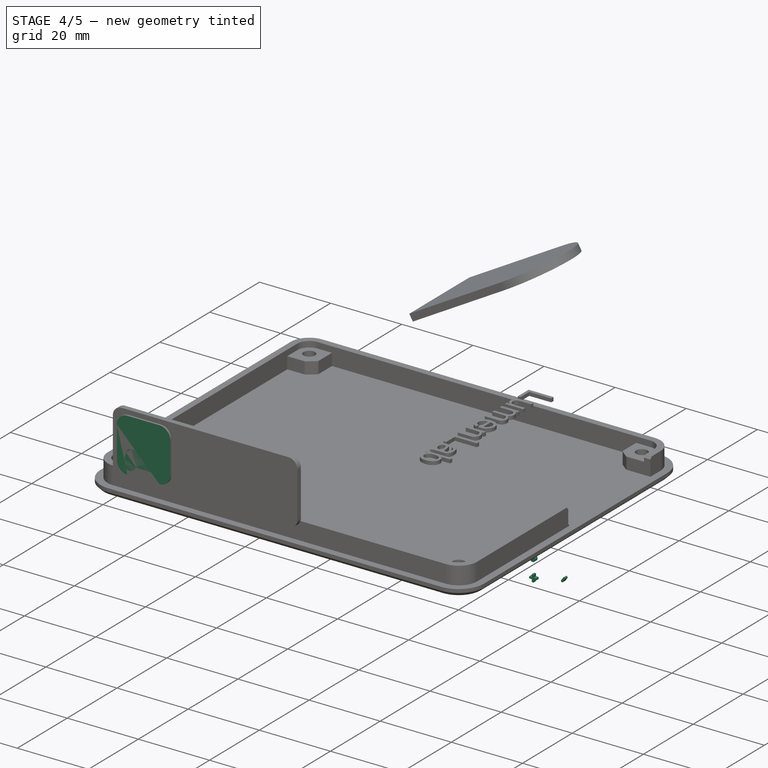
[diagram: stage 4 of 5 — iso view after this stage's code; geometry added in this stage tinted green]
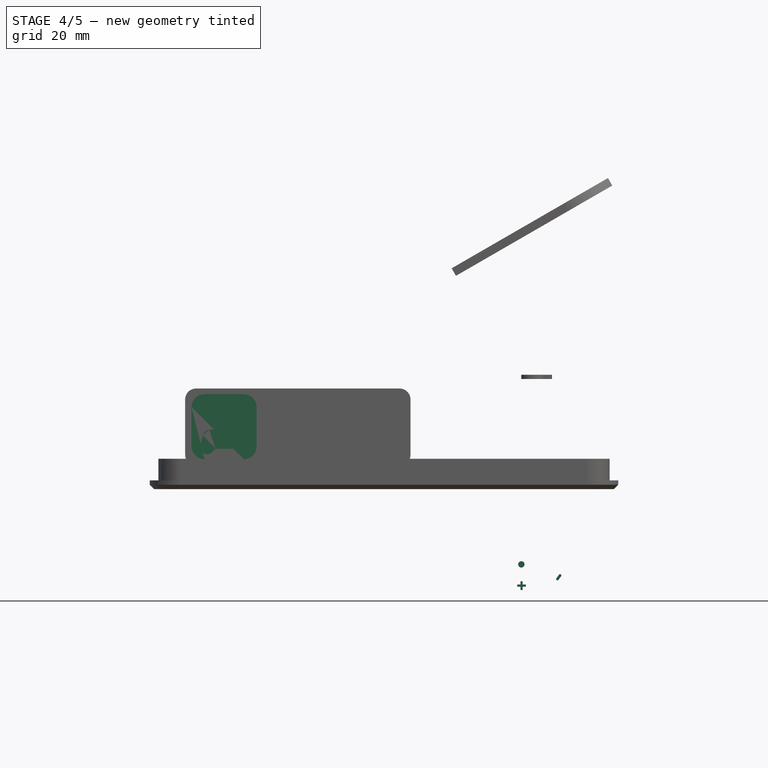
[diagram: stage 4 of 5 — front view after this stage's code; geometry added in this stage tinted green]
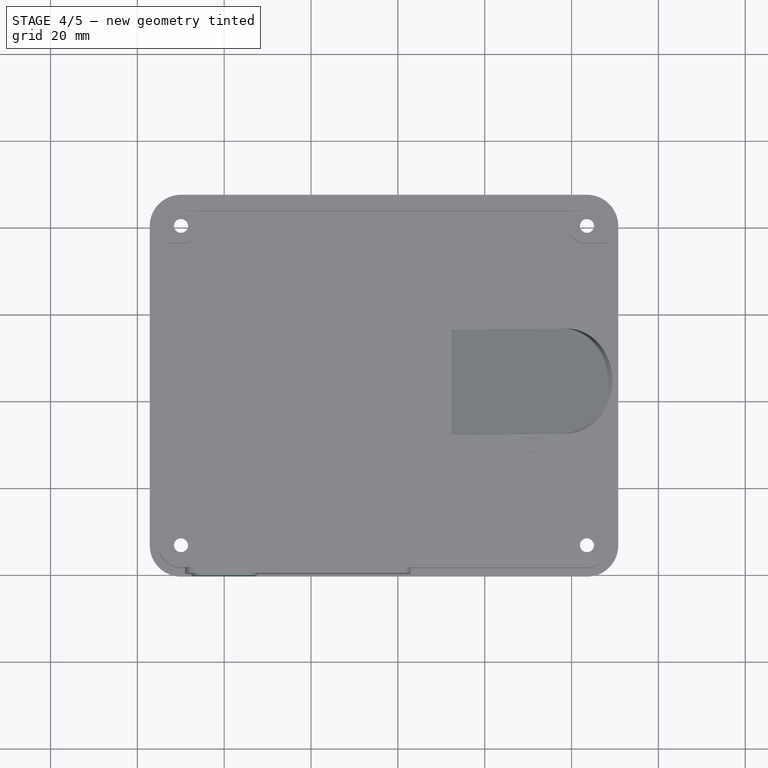
[diagram: stage 4 of 5 — top view after this stage's code; geometry added in this stage tinted green]
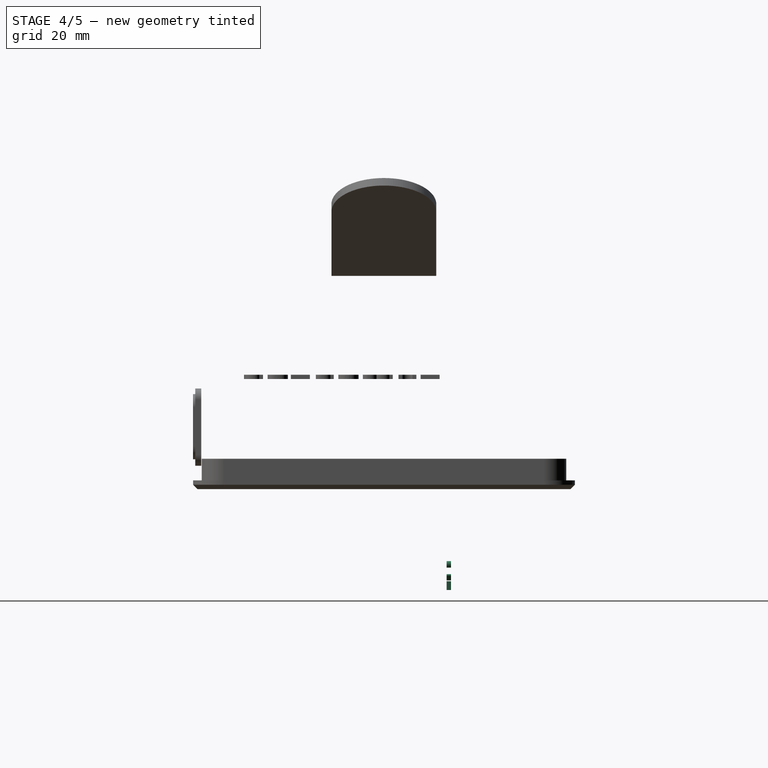
[diagram: stage 4 of 5 — right view after this stage's code; geometry added in this stage tinted green]
FEATURE [PartDesign::CoordinateSystem] Local_CS_aaa008
  AttacherType = Attacher::AttachEngine3D
  MapMode = 2
FEATURE [Part::Feature] Pcb_aaa008
  Placement = pos=(-150.8,104.4,0) rot=(0,0,1;0rad)
  shape: bbox 99.9 x 79.95 x 1.6 mm, 128 faces (baked)
FEATURE [Sketcher::SketchObject] PCB_Sketch_aaa008
  ArcFitTolerance = 1e-06
  ExternalTypes = [0]
  FullyConstrained = false
  MakeInternals = false
  _ExternalGeoVersion = 0
  sketch-geometry (8):
    g0: LineSegment StartX=46.751 StartY=39.9996 StartZ=0 EndX=46.7508 EndY=-33.5498 EndZ=0
    g1: LineSegment StartX=-49.95 StartY=43.2 StartZ=0 EndX=43.551 EndY=43.1996 EndZ=0
    g2: LineSegment StartX=-53.149 StartY=-33.5504 StartZ=0 EndX=-53.149 EndY=39.9996 EndZ=0
    g3: LineSegment StartX=43.5508 StartY=-36.7498 StartZ=0 EndX=-49.9492 EndY=-36.7472 EndZ=0
    g4: ArcOfCircle CenterX=-49.9483 CenterY=-33.5464 CenterZ=0 NormalX=0 NormalY=0 NormalZ=-1 AngleXU=-1.57081 Radius=3.20072 StartAngle=0.0002912 EndAngle=1.56957
    g5: ArcOfCircle CenterX=-49.95 CenterY=40.001 CenterZ=0 NormalX=0 NormalY=0 NormalZ=-1 AngleXU=-2.45418e-06 Radius=3.199 StartAngle=6.28275 EndAngle=7.85399
    g6: ArcOfCircle CenterX=43.551 CenterY=39.9996 CenterZ=0 NormalX=0 NormalY=0 NormalZ=-1 AngleXU=1.5708 Radius=3.2 StartAngle=0 EndAngle=1.5708
    g7: ArcOfCircle CenterX=43.5508 CenterY=-33.5498 CenterZ=0 NormalX=0 NormalY=0 NormalZ=-1 AngleXU=3.14159 Radius=3.19998 StartAngle=0 EndAngle=1.57081
  constraints (8):
    c: Coincident(g2,g4)
    c: Coincident(g2,g5)
    c: Coincident(g3,g4)
    c: Coincident(g1,g5)
    c: Coincident(g3,g7)
    c: Coincident(g1,g6)
    c: Coincident(g0,g7)
    c: Coincident(g0,g6)
FEATURE [App::Part] Board_Geoms_aaa008  label="Board_Geoms_aaa010"
  Group = -> [Pcb_aaa008,PCB_Sketch_aaa008]
  Origin = -> Origin034
FEATURE [Part::Feature] Shape007  label="R13_R_0603_1608Metric_19acb2b4304f001"
  Placement = pos=(10.851,31.7246,0) rot=(0,0,1;3.14159rad)
  shape: bbox 1.6 x 0.8 x 0.45 mm, 26 faces (baked)
FEATURE [Part::Feature] Part__Feature234  label="1264EY-220M=P008"
  shape: bbox 6 x 0.5 x 6 mm, 10 faces (baked)
FEATURE [Part::Feature] Part__Feature235  label="1264EY-220M=P009"
  shape: bbox 11.79 x 12.96 x 11.79 mm, 6 faces (baked)
FEATURE [Part::Feature] Part__Feature236  label="1264EY-220M=P010"
  shape: bbox 5.7 x 0.6 x 2.4 mm, 22 faces (baked)
FEATURE [Part::Feature] Part__Feature237  label="1264EY-220M=P011"
  shape: bbox 5.7 x 0.6 x 2.4 mm, 22 faces (baked)
FEATURE [Part::Feature] Part__Feature238  label="1264EY-220M=P012"
  shape: bbox 6 x 0.5 x 6 mm, 14 faces (baked)
FEATURE [App::Part] _264EY_220M_P004  label="L1_1264EY-220M=P008_986898e9630f001"
  Group = -> [Part__Feature234,Part__Feature235,Part__Feature236,Part__Feature237,Part__Feature238]
  Origin = -> Origin037
  Placement = pos=(29.451,10.7121,0) rot=(0.57735,-0.57735,-0.57735;2.0944rad)
FEATURE [App::Link] R13_R_0603_1608Metric_19acb2b4304f_ln_020  label="R18_R_0603_1608Metric_ef369e15c04e001"
  LinkPlacement = pos=(32.7437,32.4559,0) rot=(0,0,1;3.14159rad)
  LinkedObject = -> Shape007
  Placement = pos=(32.7437,32.4559,0) rot=(0,0,1;3.14159rad)
FEATURE [Part::Feature] Shape008  label="C8_C_1206_3216Metric_f8337c817a6e001"
  Placement = pos=(30.251,26.1996,0) rot=(0,0,1;0rad)
  shape: bbox 3.2 x 1.6 x 1.6 mm, 28 faces (baked)
FEATURE [Part::Feature] Part__Feature239  label="54-00172"
  shape: bbox 9 x 11 x 12 mm, 57 faces (baked)
FEATURE [Part::Feature] Part__Feature240  label="54-00173"
  shape: bbox 8 x 10.4 x 6.6 mm, 23 faces (baked)
FEATURE [Part::Feature] Part__Feature241  label="54-00174"
  shape: bbox 5.513 x 6.46 x 15.07 mm, 20 faces (baked)
FEATURE [Part::Feature] Part__Feature242  label="54-00175"
  shape: bbox 4.3 x 12.25 x 0.6 mm, 19 faces (baked)
FEATURE [Part::Feature] Part__Feature243  label="54-00176"
  shape: bbox 6.9 x 8.313 x 10.79 mm, 70 faces (baked)
FEATURE [Part::Feature] Part__Feature244  label="54-00177"
  shape: bbox 8.45 x 8 x 3.5 mm, 21 faces (baked)
FEATURE [App::Part] _4_00167  label="J1_54-00172_f7e9e6000f6d001"
  Group = -> [Part__Feature239,Part__Feature240,Part__Feature241,Part__Feature242,Part__Feature243,Part__Feature244]
  Origin = -> Origin038
  Placement = pos=(41.1885,-19.6504,0) rot=(0.57735,0.57735,0.57735;2.0944rad)
FEATURE [Part::Feature] Part__Feature245  label="part008"
  shape: bbox 6.462 x 6.462 x 7.201 mm, 3 faces (baked)
FEATURE [Part::Feature] Part__Feature246  label="part009"
  shape: bbox 6.809 x 6.809 x 1.601 mm, 28 faces (baked)
FEATURE [Part::Feature] Part__Feature247  label="part010"
  shape: bbox 2.692 x 0.812 x 0.254 mm, 8 faces (baked)
FEATURE [Part::Feature] Part__Feature248  label="part011"
  shape: bbox 2.692 x 0.812 x 0.254 mm, 8 faces (baked)
FEATURE [App::Part] part002  label="C20_part004_13835fb28be002"
  Group = -> [Part__Feature245,Part__Feature246,Part__Feature247,Part__Feature248]
  Origin = -> Origin039
  Placement = pos=(-35.195,6.52123,0) rot=(0,0,-1;1.5708rad)
FEATURE [App::Link] R13_R_0603_1608Metric_19acb2b4304f_ln_021  label="R12_R_0603_1608Metric_4be9a0d604a004"
  LinkPlacement = pos=(23.251,39.4996,0) rot=(0,0,1;1.5708rad)
  LinkedObject = -> Shape007
  Placement = pos=(23.251,39.4996,0) rot=(0,0,1;1.5708rad)
FEATURE [Part::Feature] Shape009  label="C17_C_0603_1608Metric_06e07fe29f003"
  Placement = pos=(26.1135,40.8996,0) rot=(0,0,1;0rad)
  shape: bbox 1.6 x 0.8 x 0.8 mm, 28 faces (baked)
FEATURE [App::Link] R13_R_0603_1608Metric_19acb2b4304f_ln_022  label="R19_R_0603_1608Metric_27ce1d205ffd001"
  LinkPlacement = pos=(32.7437,30.9513,0) rot=(0,0,1;3.14159rad)
  LinkedObject = -> Shape007
  Placement = pos=(32.7437,30.9513,0) rot=(0,0,1;3.14159rad)
FEATURE [App::Link] C17_C_0603_1608Metric_06e07fe29f02_ln_013  label="C23_C_0603_1608Metric_355b54fa14d004"
  LinkPlacement = pos=(10.8735,27.1496,0) rot=(0,0,1;3.14159rad)
  LinkedObject = -> Shape009
  Placement = pos=(10.8735,27.1496,0) rot=(0,0,1;3.14159rad)
FEATURE [Part::Feature] Shape010  label="U6_ESP32-WROOM-32E_d7e9cdaa0fa002"
  Placement = pos=(-2.074,30.1946,0) rot=(0,0,1;0rad)
  shape: bbox 18 x 25.5 x 3.1 mm, 459 faces (baked)
FEATURE [Part::Feature] Part__Feature249  label="EMZR500ARA331MJA0G005"
  shape: bbox 10.3 x 2.2 x 10.3 mm, 42 faces (baked)
FEATURE [Part::Feature] Part__Feature250  label="EMZR500ARA331MJA0G006"
  shape: bbox 3.25 x 0.85 x 0.9 mm, 17 faces (baked)
FEATURE [Part::Feature] Part__Feature251  label="EMZR500ARA331MJA0G007"
  shape: bbox 3.25 x 0.85 x 0.9 mm, 17 faces (baked)
FEATURE [Part::Feature] Part__Feature252  label="EMZR500ARA331MJA0G008"
  shape: bbox 10.88 x 9.65 x 10.88 mm, 17 faces (baked)
FEATURE [Part::Feature] Part__Feature253  label="EMZR500ARA331MJA0G009"
  shape: bbox 2.25 x 0.1 x 7.5 mm, 4 faces (baked)
FEATURE [App::Part] EMZR500ARA331MJA0G001  label="C16_EMZR500ARA331MJA0G005_243da14fba013"
  Group = -> [Part__Feature249,Part__Feature250,Part__Feature251,Part__Feature252,Part__Feature253]
  Origin = -> Origin040
  Placement = pos=(39.9672,-0.351369,0) rot=(1,0,0;1.5708rad)
FEATURE [App::Link] R13_R_0603_1608Metric_19acb2b4304f_ln_023  label="R1_R_0603_1608Metric_4f77093db5f009"
  LinkPlacement = pos=(17.4444,14.4056,0) rot=(0,0,1;1.5708rad)
  LinkedObject = -> Shape007
  Placement = pos=(17.4444,14.4056,0) rot=(0,0,1;1.5708rad)
FEATURE [Part::Feature] Part__Feature254  label="3220-xx-0100-00 body_011"
  shape: bbox 12.65 x 5.4 x 5.1 mm, 83 faces (baked)
FEATURE [Part::Feature] Part__Feature255  label="Pin^3220-xx-0100-010"
  shape: bbox 0.4 x 7.1 x 0.4 mm, 14 faces (baked)
FEATURE [Part::Feature] Part__Feature256  label="Pin^3220-xx-0100-011"
  Placement = pos=(0,0,-1.27) rot=(0,0,1;0rad)
  shape: bbox 0.4 x 7.1 x 0.4 mm, 14 faces (baked)
FEATURE [Part::Feature] Part__Feature257  label="Pin^3220-xx-0100-012"
  Placement = pos=(1.27,0,-1e-16) rot=(0,0,1;0rad)
  shape: bbox 0.4 x 7.1 x 0.4 mm, 14 faces (baked)
FEATURE [Part::Feature] Part__Feature258  label="Pin^3220-xx-0100-013"
  Placement = pos=(2.54,0,-3e-16) rot=(0,0,1;0rad)
  shape: bbox 0.4 x 7.1 x 0.4 mm, 14 faces (baked)
FEATURE [Part::Feature] Part__Feature259  label="Pin^3220-xx-0100-014"
  Placement = pos=(3.81,0,-4e-16) rot=(0,0,1;0rad)
  shape: bbox 0.4 x 7.1 x 0.4 mm, 14 faces (baked)
FEATURE [Part::Feature] Part__Feature260  label="Pin^3220-xx-0100-015"
  Placement = pos=(5.08,0,-6e-16) rot=(0,0,1;0rad)
  shape: bbox 0.4 x 7.1 x 0.4 mm, 14 faces (baked)
FEATURE [Part::Feature] Part__Feature261  label="Pin^3220-xx-0100-016"
  Placement = pos=(1.27,0,-1.27) rot=(0,0,1;0rad)
  shape: bbox 0.4 x 7.1 x 0.4 mm, 14 faces (baked)
FEATURE [Part::Feature] Part__Feature262  label="Pin^3220-xx-0100-017"
  Placement = pos=(2.54,0,-1.27) rot=(0,0,1;0rad)
  shape: bbox 0.4 x 7.1 x 0.4 mm, 14 faces (baked)
FEATURE [Part::Feature] Part__Feature263  label="Pin^3220-xx-0100-018"
  Placement = pos=(3.81,0,-1.27) rot=(0,0,1;0rad)
  shape: bbox 0.4 x 7.1 x 0.4 mm, 14 faces (baked)
FEATURE [Part::Feature] Part__Feature264  label="Pin^3220-xx-0100-019"
  Placement = pos=(5.08,0,-1.27) rot=(0,0,1;0rad)
  shape: bbox 0.4 x 7.1 x 0.4 mm, 14 faces (baked)
FEATURE [App::Part] _220_10_0100_001  label="J4_3220-10-0100-00_5e534c0603e010"
  Group = -> [Part__Feature254,Part__Feature255,Part__Feature256,Part__Feature257,Part__Feature258,Part__Feature259,Part__Feature260,Part__Feature261,Part__Feature262,Part__Feature263,Part__Feature264]
  Origin = -> Origin041
  Placement = pos=(-18.699,9.05961,0) rot=(0.57735,-0.57735,-0.57735;2.0944rad)
FEATURE [App::Link] R13_R_0603_1608Metric_19acb2b4304f_ln_024  label="R21_R_0603_1608Metric_c83e3b8e55fb001"
  LinkPlacement = pos=(10.851,33.2496,0) rot=(0,0,1;0rad)
  LinkedObject = -> Shape007
  Placement = pos=(10.851,33.2496,0) rot=(0,0,1;0rad)
FEATURE [Part::Feature] Shape011  label="U2_SOT-223_3d38d73804bf001"
  Placement = pos=(21.851,24.4996,0) rot=(0,0,1;3.14159rad)
  shape: bbox 7 x 6.5 x 1.7 mm, 75 faces (baked)
FEATURE [App::Link] R13_R_0603_1608Metric_19acb2b4304f_ln_025  label="R8_R_0603_1608Metric_786027520a7c001"
  LinkPlacement = pos=(17.4739,8.02271,0) rot=(0,0,1;3.14159rad)
  LinkedObject = -> Shape007
  Placement = pos=(17.4739,8.02271,0) rot=(0,0,1;3.14159rad)
FEATURE [Part::Feature] Part__Feature265  label="BxPS-VH_007"
  Placement = pos=(-5.94,4.8,4) rot=(1,0,0;1.5708rad)
  shape: bbox 15.78 x 8.5 x 9.4 mm, 33 faces (baked)
FEATURE [Part::Feature] Part__Feature266  label="pin^BxPS-VH ass010"
  shape: bbox 1.14 x 8.97 x 15.47 mm, 18 faces (baked)
FEATURE [Part::Feature] Part__Feature267  label="pin^BxPS-VH ass011"
  Placement = pos=(3.96,0,0) rot=(0,0,1;0rad)
  shape: bbox 1.14 x 8.97 x 15.47 mm, 18 faces (baked)
FEATURE [Part::Feature] Part__Feature268  label="pin^BxPS-VH ass012"
  Placement = pos=(7.92,0,0) rot=(0,0,1;0rad)
  shape: bbox 1.14 x 8.97 x 15.47 mm, 18 faces (baked)
FEATURE [Part::Feature] Part__Feature269  label="pin^BxPS-VH ass013"
  Placement = pos=(11.88,0,0) rot=(0,0,1;0rad)
  shape: bbox 1.14 x 8.97 x 15.47 mm, 18 faces (baked)
FEATURE [App::Part] B4PS_VH001  label="J3_B4PS-VH_7bbce7ea9952"
  Group = -> [Part__Feature265,Part__Feature266,Part__Feature267,Part__Feature268,Part__Feature269]
  Origin = -> Origin042
  Placement = pos=(35.6705,16.5885,0) rot=(0.57735,0.57735,0.57735;2.0944rad)
FEATURE [App::Link] C17_C_0603_1608Metric_06e07fe29f02_ln_014  label="C22_C_0603_1608Metric_0cd8cb6ca12e001"
  LinkPlacement = pos=(-16.149,32.5996,0) rot=(0,0,-1;1.5708rad)
  LinkedObject = -> Shape009
  Placement = pos=(-16.149,32.5996,0) rot=(0,0,-1;1.5708rad)
FEATURE [App::Link] R13_R_0603_1608Metric_19acb2b4304f_ln_026  label="R16_R_0603_1608Metric_86358e6f1d031"
  LinkPlacement = pos=(32.7457,29.4505,0) rot=(0,0,1;3.14159rad)
  LinkedObject = -> Shape007
  Placement = pos=(32.7457,29.4505,0) rot=(0,0,1;3.14159rad)
FEATURE [App::Link] C17_C_0603_1608Metric_06e07fe29f02_ln_015  label="C24_C_0603_1608Metric_4deb08c0edd003"
  LinkPlacement = pos=(10.856,17.3296,0) rot=(0,0,1;0rad)
  LinkedObject = -> Shape009
  Placement = pos=(10.856,17.3296,0) rot=(0,0,1;0rad)
FEATURE [App::Link] C8_C_1206_3216Metric_f8337c817a6e_ln_002  label="C21_C_1206_3216Metric_830589cb415c001"
  LinkPlacement = pos=(-33.549,14.9996,0) rot=(0,0,1;1.5708rad)
  LinkedObject = -> Shape008
  Placement = pos=(-33.549,14.9996,0) rot=(0,0,1;1.5708rad)
FEATURE [Part::Feature] Shape012  label="C10_C_1210_3225Metric_d7c8b813a4ab001"
  Placement = pos=(27.651,16.5996,0) rot=(0,0,1;1.5708rad)
  shape: bbox 2.5 x 3.2 x 2.5 mm, 28 faces (baked)
FEATURE [Part::Feature] Part__Feature270  label="CP2102N-A02-GQFN24R026"
  shape: bbox 4 x 0.75 x 4 mm, 107 faces (baked)
FEATURE [Part::Feature] Part__Feature271  label="CP2102N-A02-GQFN24R027"
  shape: bbox 0.24 x 0.2 x 0.4 mm, 6 faces (baked)
FEATURE [Part::Feature] Part__Feature272  label="CP2102N-A02-GQFN24R028"
  shape: bbox 0.24 x 0.2 x 0.4 mm, 6 faces (baked)
FEATURE [Part::Feature] Part__Feature273  label="CP2102N-A02-GQFN24R029"
  shape: bbox 0.4 x 0.2 x 0.24 mm, 6 faces (baked)
FEATURE [Part::Feature] Part__Feature274  label="CP2102N-A02-GQFN24R030"
  shape: bbox 0.4 x 0.2 x 0.24 mm, 6 faces (baked)
FEATURE [Part::Feature] Part__Feature275  label="CP2102N-A02-GQFN24R031"
  shape: bbox 0.24 x 0.2 x 0.4 mm, 6 faces (baked)
FEATURE [Part::Feature] Part__Feature276  label="CP2102N-A02-GQFN24R032"
  shape: bbox 0.24 x 0.2 x 0.4 mm, 6 faces (baked)
FEATURE [Part::Feature] Part__Feature277  label="CP2102N-A02-GQFN24R033"
  shape: bbox 0.24 x 0.2 x 0.4 mm, 6 faces (baked)
FEATURE [Part::Feature] Part__Feature278  label="CP2102N-A02-GQFN24R034"
  shape: bbox 0.24 x 0.2 x 0.4 mm, 6 faces (baked)
FEATURE [Part::Feature] Part__Feature279  label="CP2102N-A02-GQFN24R035"
  shape: bbox 0.24 x 0.2 x 0.4 mm, 6 faces (baked)
FEATURE [Part::Feature] Part__Feature280  label="CP2102N-A02-GQFN24R036"
  shape: bbox 0.24 x 0.2 x 0.4 mm, 6 faces (baked)
FEATURE [Part::Feature] Part__Feature281  label="CP2102N-A02-GQFN24R037"
  shape: bbox 0.24 x 0.2 x 0.4 mm, 6 faces (baked)
FEATURE [Part::Feature] Part__Feature282  label="CP2102N-A02-GQFN24R038"
  shape: bbox 0.24 x 0.2 x 0.4 mm, 6 faces (baked)
FEATURE [Part::Feature] Part__Feature283  label="CP2102N-A02-GQFN24R039"
  shape: bbox 0.24 x 0.2 x 0.4 mm, 6 faces (baked)
FEATURE [Part::Feature] Part__Feature284  label="CP2102N-A02-GQFN24R040"
  shape: bbox 0.24 x 0.2 x 0.4 mm, 6 faces (baked)
FEATURE [Part::Feature] Part__Feature285  label="CP2102N-A02-GQFN24R041"
  shape: bbox 0.4 x 0.2 x 0.24 mm, 6 faces (baked)
FEATURE [Part::Feature] Part__Feature286  label="CP2102N-A02-GQFN24R042"
  shape: bbox 0.4 x 0.2 x 0.24 mm, 6 faces (baked)
FEATURE [Part::Feature] Part__Feature287  label="CP2102N-A02-GQFN24R043"
  shape: bbox 0.4 x 0.2 x 0.24 mm, 6 faces (baked)
FEATURE [Part::Feature] Part__Feature288  label="CP2102N-A02-GQFN24R044"
  shape: bbox 0.4 x 0.2 x 0.24 mm, 6 faces (baked)
FEATURE [Part::Feature] Part__Feature289  label="CP2102N-A02-GQFN24R045"
  shape: bbox 0.4 x 0.2 x 0.24 mm, 6 faces (baked)
FEATURE [Part::Feature] Part__Feature290  label="CP2102N-A02-GQFN24R046"
  shape: bbox 0.4 x 0.2 x 0.24 mm, 6 faces (baked)
FEATURE [Part::Feature] Part__Feature291  label="CP2102N-A02-GQFN24R047"
  shape: bbox 2.45 x 0.2 x 2.45 mm, 6 faces (baked)
FEATURE [Part::Feature] Part__Feature292  label="CP2102N-A02-GQFN24R048"
  shape: bbox 0.4 x 0.2 x 0.24 mm, 6 faces (baked)
FEATURE [Part::Feature] Part__Feature293  label="CP2102N-A02-GQFN24R049"
  shape: bbox 0.4 x 0.2 x 0.24 mm, 6 faces (baked)
FEATURE [Part::Feature] Part__Feature294  label="CP2102N-A02-GQFN24R050"
  shape: bbox 0.4 x 0.2 x 0.24 mm, 6 faces (baked)
FEATURE [Part::Feature] Part__Feature295  label="CP2102N-A02-GQFN24R051"
  shape: bbox 0.4 x 0.2 x 0.24 mm, 6 faces (baked)
FEATURE [App::Part] CP2102N_A02_GQFN24R001  label="U7_CP2102N-A02-GQFN24R026_a358d1763d070"
  Group = -> [Part__Feature270,Part__Feature271,Part__Feature272,Part__Feature273,Part__Feature274,Part__Feature275,Part__Feature276,Part__Feature277,Part__Feature278,Part__Feature279,Part__Feature280,Part__Feature281,Part__Feature282,Part__Feature283,Part__Feature284,Part__Feature285,Part__Feature286,Part__Feature287,Part__Feature288,Part__Feature289,Part__Feature290,Part__Feature291,Part__Feature292,+3 more]
  Origin = -> Origin043
  Placement = pos=(23.1623,33.0246,0) rot=(0.281085,0.678598,0.678598;2.59356rad)
FEATURE [App::Link] R13_R_0603_1608Metric_19acb2b4304f_ln_027  label="R14_R_0603_1608Metric_04fde821c988"
  LinkPlacement = pos=(-36.6656,14.7166,0) rot=(0,0,1;1.5708rad)
  LinkedObject = -> Shape007
  Placement = pos=(-36.6656,14.7166,0) rot=(0,0,1;1.5708rad)
FEATURE [Part::Feature] Part__Feature296  label="PTN16_1 BUSHING001"
  shape: bbox 8.708 x 11.12 x 17.87 mm, 202 faces (baked)
FEATURE [Part::Feature] Part__Feature297  label="PTN16-A_1 HOUSING011"
  Placement = pos=(9.56063,3.58431,-16.3) rot=(0,0,1;0rad)
  shape: bbox 0.4 x 8.5 x 3 mm, 14 faces (baked)
FEATURE [Part::Feature] Part__Feature298  label="PTN16-A_1 HOUSING012"
  Placement = pos=(9.56063,3.58431,-16.3) rot=(0,0,1;0rad)
  shape: bbox 0.4 x 8.5 x 3 mm, 14 faces (baked)
FEATURE [Part::Feature] Part__Feature299  label="PTN16-A_1 HOUSING013"
  Placement = pos=(9.56063,3.58431,-16.3) rot=(0,0,1;0rad)
  shape: bbox 1.4 x 20 x 16.97 mm, 50 faces (baked)
FEATURE [Part::Feature] Part__Feature300  label="PTN16-A_1 HOUSING014"
  Placement = pos=(9.56063,3.58431,-16.3) rot=(0,0,1;0rad)
  shape: bbox 0.4 x 8.5 x 3 mm, 14 faces (baked)
FEATURE [Part::Feature] Part__Feature301  label="PTN16-A_1 HOUSING015"
  Placement = pos=(9.56063,3.58431,-16.3) rot=(0,0,1;0rad)
  shape: bbox 5.8 x 11 x 14.4 mm, 39 faces (baked)
FEATURE [Part::Feature] Part__Feature302  label="PTN16-A_1 HOUSING016"
  Placement = pos=(9.56063,3.58431,-16.3) rot=(0,0,1;0rad)
  shape: bbox 1.501 x 2.166 x 2.166 mm, 32 faces (baked)
FEATURE [Part::Feature] Part__Feature303  label="PTN16-A_1 HOUSING017"
  Placement = pos=(9.56063,3.58431,-16.3) rot=(0,0,1;0rad)
  shape: bbox 3.4 x 11.7 x 13.8 mm, 151 faces (baked)
FEATURE [Part::Feature] Part__Feature304  label="PTN16-A_1 HOUSING018"
  Placement = pos=(9.56063,3.58431,-16.3) rot=(0,0,1;0rad)
  shape: bbox 8.201 x 17.64 x 17.61 mm, 51 faces (baked)
FEATURE [Part::Feature] Part__Feature305  label="PTN16-A_1 HOUSING019"
  Placement = pos=(9.56063,3.58431,-16.3) rot=(0,0,1;0rad)
  shape: bbox 1.501 x 2.166 x 2.166 mm, 32 faces (baked)
FEATURE [Part::Feature] Part__Feature306  label="PTN16-A_1 HOUSING020"
  Placement = pos=(9.56063,3.58431,-16.3) rot=(0,0,1;0rad)
  shape: bbox 1.501 x 2.166 x 2.166 mm, 32 faces (baked)
FEATURE [App::Part] PTN16_A_1_HOUSING001  label="PTN16-A_1 HOUSING021"
  Group = -> [Part__Feature297,Part__Feature298,Part__Feature299,Part__Feature300,Part__Feature301,Part__Feature302,Part__Feature303,Part__Feature304,Part__Feature305,Part__Feature306]
  Origin = -> Origin045
FEATURE [Part::Feature] Part__Feature307  label="PTN16_20K1_SHAFT001"
  Placement = pos=(22.2,8e-16,1.5e-15) rot=(0,1,0;3.14159rad)
  shape: bbox 27.4 x 6 x 6 mm, 89 faces (baked)
FEATURE [App::Part] Same_Sky_PTN16_A10220K1B002  label="RV2_Same_Sky_PTN16-A10220K1B1_da7036bf543e001"
  Group = -> [Part__Feature296,PTN16_A_1_HOUSING001,Part__Feature307]
  Origin = -> Origin044
  Placement = pos=(6.40289,-26.366,3.5) rot=(0.707107,0,-0.707107;3.14159rad)
FEATURE [App::Link] C17_C_0603_1608Metric_06e07fe29f02_ln_016  label="C3_C_0603_1608Metric_064262dd3f065"
  LinkPlacement = pos=(24.7764,10.3227,0) rot=(0,0,-1;1.5708rad)
  LinkedObject = -> Shape009
  Placement = pos=(24.7764,10.3227,0) rot=(0,0,-1;1.5708rad)
FEATURE [App::Link] R13_R_0603_1608Metric_19acb2b4304f_ln_028  label="R2_R_0603_1608Metric_16e41120b099"
  LinkPlacement = pos=(17.451,11.1996,0) rot=(0,0,1;3.14159rad)
  LinkedObject = -> Shape007
  Placement = pos=(17.451,11.1996,0) rot=(0,0,1;3.14159rad)
FEATURE [App::Link] R13_R_0603_1608Metric_19acb2b4304f_ln_029  label="R9_R_0603_1608Metric_84903ddeb547"
  LinkPlacement = pos=(-14.349,32.5996,0) rot=(0,0,-1;1.5708rad)
  LinkedObject = -> Shape007
  Placement = pos=(-14.349,32.5996,0) rot=(0,0,-1;1.5708rad)
FEATURE [App::Link] C17_C_0603_1608Metric_06e07fe29f02_ln_017  label="C14_C_0603_1608Metric_3ef5edc3d725"
  LinkPlacement = pos=(-37.149,26.9996,0) rot=(0,0,1;1.5708rad)
  LinkedObject = -> Shape009
  Placement = pos=(-37.149,26.9996,0) rot=(0,0,1;1.5708rad)
FEATURE [Part::Feature] Part__Feature308  label="0ZRE0005FF1C_PART007"
  shape: bbox 7.351 x 8.247 x 2.609 mm, 236 faces (baked)
FEATURE [Part::Feature] Part__Feature309  label="0ZRE0005FF1C_PART008"
  shape: bbox 1.383 x 9.66 x 0.5115 mm, 5 faces (baked)
FEATURE [Part::Feature] Part__Feature310  label="0ZRE0005FF1C_PART009"
  shape: bbox 6.4 x 6.4 x 0.611 mm, 8 faces (baked)
FEATURE [App::Part] _ZRE0005FF1C_PART004  label="0ZRE0005FF1C_PART010"
  Group = -> [Part__Feature309,Part__Feature310]
  Origin = -> Origin047
FEATURE [Part::Feature] Part__Feature311  label="0ZRE0005FF1C_PART011"
  shape: bbox 1.383 x 9.66 x 0.5115 mm, 5 faces (baked)
FEATURE [Part::Feature] Part__Feature312  label="0ZRE0005FF1C_PART012"
  shape: bbox 6.4 x 6.4 x 0.611 mm, 8 faces (baked)
FEATURE [App::Part] _ZRE0005FF1C_PART005  label="0ZRE0005FF1C_PART013"
  Group = -> [Part__Feature311,Part__Feature312]
  Origin = -> Origin048
FEATURE [Part::Feature] Part__Feature313  label="0ZRE0005FF1C_PART014"
  shape: bbox 6.4 x 6.4 x 1.1 mm, 3 faces (baked)
FEATURE [App::Part] _ZRE0005FF1C001  label="F1_0ZRE0005FF1C_e30ea19d3b4d001"
  Group = -> [Part__Feature308,_ZRE0005FF1C_PART004,_ZRE0005FF1C_PART005,Part__Feature313]
  Origin = -> Origin046
  Placement = pos=(23.701,-1.00039,5.5) rot=(0,0.707107,0.707107;3.14159rad)
FEATURE [App::Link] C17_C_0603_1608Metric_06e07fe29f02_ln_018  label="C6_C_0603_1608Metric_0820aa08cd093"
  LinkPlacement = pos=(22.4745,7.50029,0) rot=(0,0,1;0rad)
  LinkedObject = -> Shape009
  Placement = pos=(22.4745,7.50029,0) rot=(0,0,1;0rad)
FEATURE [App::Link] C17_C_0603_1608Metric_06e07fe29f02_ln_019  label="C1_C_0603_1608Metric_37e6b1442e061"
  LinkPlacement = pos=(19.1461,14.4014,0) rot=(0,0,1;1.5708rad)
  LinkedObject = -> Shape009
  Placement = pos=(19.1461,14.4014,0) rot=(0,0,1;1.5708rad)
FEATURE [App::Link] R13_R_0603_1608Metric_19acb2b4304f_ln_030  label="R3_R_0603_1608Metric_bf75dbb4e9d008"
  LinkPlacement = pos=(20.8935,14.3871,0) rot=(0,0,1;1.5708rad)
  LinkedObject = -> Shape007
  Placement = pos=(20.8935,14.3871,0) rot=(0,0,1;1.5708rad)
FEATURE [Part::Feature] Part__Feature314  label="D018"
  shape: bbox 1.05 x 1.11 x 0.42 mm, 14 faces (baked)
FEATURE [Part::Feature] Part__Feature315  label="D019"
  shape: bbox 1.05 x 1.11 x 0.42 mm, 14 faces (baked)
FEATURE [Part::Feature] Part__Feature316  label="D020"
  shape: bbox 1.05 x 1.11 x 0.42 mm, 14 faces (baked)
FEATURE [Part::Feature] Part__Feature317  label="D021"
  shape: bbox 1.05 x 1.11 x 0.42 mm, 14 faces (baked)
FEATURE [Part::Feature] Part__Feature318  label="D022"
  shape: bbox 1.05 x 1.11 x 0.42 mm, 14 faces (baked)
FEATURE [Part::Feature] Part__Feature319  label="D023"
  shape: bbox 1.05 x 1.11 x 0.42 mm, 14 faces (baked)
FEATURE [Part::Feature] Part__Feature320  label="D024"
  shape: bbox 3.9 x 1.5 x 4.9 mm, 18 faces (baked)
FEATURE [Part::Feature] Part__Feature321  label="D025"
  shape: bbox 0.39 x 0.1 x 0.39 mm, 4 faces (baked)
FEATURE [Part::Feature] Part__Feature322  label="D026"
  shape: bbox 1.05 x 1.11 x 0.42 mm, 14 faces (baked)
FEATURE [Part::Feature] Part__Feature323  label="D027"
  shape: bbox 1.05 x 1.11 x 0.42 mm, 14 faces (baked)
FEATURE [App::Part] D009  label="U5_D018_8f8dcd4c344d001"
  Group = -> [Part__Feature314,Part__Feature315,Part__Feature316,Part__Feature317,Part__Feature318,Part__Feature319,Part__Feature320,Part__Feature321,Part__Feature322,Part__Feature323]
  Origin = -> Origin049
  Placement = pos=(-26.995,14.0247,0) rot=(0,0.707107,0.707107;3.14159rad)
FEATURE [App::Link] R13_R_0603_1608Metric_19acb2b4304f_ln_031  label="R15_R_0603_1608Metric_d7152edc88f003"
  LinkPlacement = pos=(-14.349,21.6121,0) rot=(0,0,1;1.5708rad)
  LinkedObject = -> Shape007
  Placement = pos=(-14.349,21.6121,0) rot=(0,0,1;1.5708rad)
FEATURE [Part::Feature] Part__Feature324  label="part012"
  shape: bbox 0.994 x 2.596 x 0.051 mm, 6 faces (baked)
FEATURE [Part::Feature] Part__Feature325  label="part013"
  shape: bbox 4.966 x 2.794 x 2.286 mm, 16 faces (baked)
FEATURE [Part::Feature] Part__Feature326  label="part014"
  shape: bbox 1.524 x 1.652 x 1.206 mm, 10 faces (baked)
FEATURE [Part::Feature] Part__Feature327  label="part015"
  shape: bbox 1.524 x 1.652 x 1.206 mm, 10 faces (baked)
FEATURE [App::Part] part003  label="D1_part008_e42cbd2da72c001"
  Group = -> [Part__Feature324,Part__Feature325,Part__Feature326,Part__Feature327]
  Origin = -> Origin050
  Placement = pos=(29.751,2.89961,0) rot=(0,0,1;3.14159rad)
FEATURE [App::Link] R13_R_0603_1608Metric_19acb2b4304f_ln_032  label="R20_R_0603_1608Metric_1938251cc736"
  LinkPlacement = pos=(10.8635,28.6746,0) rot=(0,0,1;0rad)
  LinkedObject = -> Shape007
  Placement = pos=(10.8635,28.6746,0) rot=(0,0,1;0rad)
FEATURE [App::Link] C17_C_0603_1608Metric_06e07fe29f02_ln_020  label="C4_C_0603_1608Metric_1cebb34dbe4d001"
  LinkPlacement = pos=(10.861,18.9196,0) rot=(0,0,1;3.14159rad)
  LinkedObject = -> Shape009
  Placement = pos=(10.861,18.9196,0) rot=(0,0,1;3.14159rad)
FEATURE [App::Link] C8_C_1206_3216Metric_f8337c817a6e_ln_003  label="C7_C_1206_3216Metric_36cf35e6c32d001"
  LinkPlacement = pos=(30.151,22.1996,0) rot=(0,0,1;0rad)
  LinkedObject = -> Shape008
  Placement = pos=(30.151,22.1996,0) rot=(0,0,1;0rad)
FEATURE [App::Link] R13_R_0603_1608Metric_19acb2b4304f_ln_033  label="R5_R_0603_1608Metric_12d8e33a8d5c001"
  LinkPlacement = pos=(-28.8573,18.884,0) rot=(0,0,1;3.14159rad)
  LinkedObject = -> Shape007
  Placement = pos=(-28.8573,18.884,0) rot=(0,0,1;3.14159rad)
FEATURE [App::Link] RV2_Same_Sky_PTN16_A10220K1B1_da7036bf543e_ln_001  label="RV1_Same_Sky_PTN16-A10220K1B1_e0b2a939cd1b001"
  LinkPlacement = pos=(-11.0304,-26.366,3.5) rot=(0.707107,0,-0.707107;3.14159rad)
  LinkedObject = -> Same_Sky_PTN16_A10220K1B002
  Placement = pos=(-11.0304,-26.366,3.5) rot=(0.707107,0,-0.707107;3.14159rad)
FEATURE [App::Link] R13_R_0603_1608Metric_19acb2b4304f_ln_034  label="R17_R_0603_1608Metric_429d6c5a36a004"
  LinkPlacement = pos=(32.7437,33.9559,0) rot=(0,0,1;3.14159rad)
  LinkedObject = -> Shape007
  Placement = pos=(32.7437,33.9559,0) rot=(0,0,1;3.14159rad)
FEATURE [Part::Feature] Part__Feature328  label="MP2338GTL-Z010"
  shape: bbox 0.3 x 0.125 x 0.22 mm, 6 faces (baked)
FEATURE [Part::Feature] Part__Feature329  label="MP2338GTL-Z011"
  shape: bbox 0.3 x 0.125 x 0.22 mm, 6 faces (baked)
FEATURE [Part::Feature] Part__Feature330  label="MP2338GTL-Z012"
  shape: bbox 0.3 x 0.125 x 0.22 mm, 6 faces (baked)
FEATURE [Part::Feature] Part__Feature331  label="MP2338GTL-Z013"
  shape: bbox 0.3 x 0.125 x 0.22 mm, 6 faces (baked)
FEATURE [Part::Feature] Part__Feature332  label="MP2338GTL-Z014"
  shape: bbox 0.3 x 0.125 x 0.22 mm, 6 faces (baked)
FEATURE [Part::Feature] Part__Feature333  label="MP2338GTL-Z015"
  shape: bbox 0.3 x 0.125 x 0.22 mm, 6 faces (baked)
FEATURE [Part::Feature] Part__Feature334  label="MP2338GTL-Z016"
  shape: bbox 0.3 x 0.125 x 0.22 mm, 6 faces (baked)
FEATURE [Part::Feature] Part__Feature335  label="MP2338GTL-Z017"
  shape: bbox 0.3 x 0.125 x 0.22 mm, 6 faces (baked)
FEATURE [Part::Feature] Part__Feature336  label="MP2338GTL-Z018"
  shape: bbox 1.2 x 0.55 x 2.1 mm, 53 faces (baked)
FEATURE [Part::Feature] Part__Feature337  label="MP2338GTL-Z019"
  shape: bbox 0.15 x 0.1 x 0.15 mm, 4 faces (baked)
FEATURE [App::Part] MP2338GTL_Z001  label="U1_MP2338GTL-Z010_666a63f8097d001"
  Group = -> [Part__Feature328,Part__Feature329,Part__Feature330,Part__Feature331,Part__Feature332,Part__Feature333,Part__Feature334,Part__Feature335,Part__Feature336,Part__Feature337]
  Origin = -> Origin051
  Placement = pos=(22.3764,10.4227,0) rot=(0.57735,0.57735,0.57735;2.0944rad)
FEATURE [App::Link] C10_C_1210_3225Metric_d7c8b813a4ab_ln_003  label="C5_C_1210_3225Metric_e8950310965f001"
  LinkPlacement = pos=(23.4773,4.60066,0) rot=(0,0,1;0rad)
  LinkedObject = -> Shape012
  Placement = pos=(23.4773,4.60066,0) rot=(0,0,1;0rad)
FEATURE [App::Link] R13_R_0603_1608Metric_19acb2b4304f_ln_035  label="R7_R_0603_1608Metric_3040029f4ecc001"
  LinkPlacement = pos=(10.876,24.0096,0) rot=(0,0,1;3.14159rad)
  LinkedObject = -> Shape007
  Placement = pos=(10.876,24.0096,0) rot=(0,0,1;3.14159rad)
FEATURE [App::Link] C17_C_0603_1608Metric_06e07fe29f02_ln_021  label="C15_C_0603_1608Metric_228acc79294f001"
  LinkPlacement = pos=(36.2396,6.60333,0) rot=(0,0,1;0rad)
  LinkedObject = -> Shape009
  Placement = pos=(36.2396,6.60333,0) rot=(0,0,1;0rad)
FEATURE [App::Link] C17_C_0603_1608Metric_06e07fe29f02_ln_022  label="C19_C_0603_1608Metric_4aa12b59942d001"
  LinkPlacement = pos=(26.121,37.7996,0) rot=(0,0,1;0rad)
  LinkedObject = -> Shape009
  Placement = pos=(26.121,37.7996,0) rot=(0,0,1;0rad)
FEATURE [App::Link] C17_C_0603_1608Metric_06e07fe29f02_ln_023  label="C18_C_0603_1608Metric_e9d217c74e088"
  LinkPlacement = pos=(26.1135,39.3496,0) rot=(0,0,1;0rad)
  LinkedObject = -> Shape009
  Placement = pos=(26.1135,39.3496,0) rot=(0,0,1;0rad)
FEATURE [App::Link] C17_C_0603_1608Metric_06e07fe29f02_ln_024  label="C12_C_0603_1608Metric_1f5abf6cd454"
  LinkPlacement = pos=(-15.249,34.9996,0) rot=(0,0,1;3.14159rad)
  LinkedObject = -> Shape009
  Placement = pos=(-15.249,34.9996,0) rot=(0,0,1;3.14159rad)
FEATURE [Part::Feature] Part__Feature338  label="DX07S016JA1R1544"
  shape: bbox 0.25 x 0.06 x 2.431 mm, 6 faces (baked)
FEATURE [Part::Feature] Part__Feature339  label="DX07S016JA1R1545"
  shape: bbox 0.25 x 0.06 x 2.431 mm, 6 faces (baked)
FEATURE [Part::Feature] Part__Feature340  label="DX07S016JA1R1546"
  shape: bbox 0.25 x 0.06 x 1.831 mm, 10 faces (baked)
FEATURE [Part::Feature] Part__Feature341  label="DX07S016JA1R1547"
  shape: bbox 0.25 x 0.06 x 1.831 mm, 10 faces (baked)
FEATURE [Part::Feature] Part__Feature342  label="DX07S016JA1R1548"
  shape: bbox 0.25 x 0.06 x 2.431 mm, 6 faces (baked)
FEATURE [Part::Feature] Part__Feature343  label="DX07S016JA1R1549"
  shape: bbox 0.25 x 0.06 x 1.831 mm, 6 faces (baked)
FEATURE [Part::Feature] Part__Feature344  label="DX07S016JA1R1550"
  shape: bbox 0.25 x 0.06 x 1.831 mm, 10 faces (baked)
FEATURE [Part::Feature] Part__Feature345  label="DX07S016JA1R1551"
  shape: bbox 0.25 x 0.06 x 1.831 mm, 10 faces (baked)
FEATURE [Part::Feature] Part__Feature346  label="DX07S016JA1R1552"
  shape: bbox 0.25 x 0.06 x 1.831 mm, 6 faces (baked)
FEATURE [Part::Feature] Part__Feature347  label="DX07S016JA1R1553"
  shape: bbox 0.25 x 0.06 x 2.431 mm, 6 faces (baked)
FEATURE [Part::Feature] Part__Feature348  label="DX07S016JA1R1554"
  shape: bbox 0.25 x 0.06 x 1.831 mm, 10 faces (baked)
FEATURE [Part::Feature] Part__Feature349  label="DX07S016JA1R1555"
  shape: bbox 0.25 x 0.06 x 1.831 mm, 10 faces (baked)
FEATURE [Part::Feature] Part__Feature350  label="DX07S016JA1R1556"
  shape: bbox 0.25 x 0.06 x 2.431 mm, 6 faces (baked)
FEATURE [Part::Feature] Part__Feature351  label="DX07S016JA1R1557"
  shape: bbox 0.25 x 0.06 x 1.831 mm, 10 faces (baked)
FEATURE [Part::Feature] Part__Feature352  label="DX07S016JA1R1558"
  shape: bbox 0.25 x 0.06 x 1.831 mm, 10 faces (baked)
FEATURE [Part::Feature] Part__Feature353  label="DX07S016JA1R1559"
  shape: bbox 0.25 x 0.06 x 2.431 mm, 6 faces (baked)
FEATURE [Part::Feature] Part__Feature354  label="DX07S016JA1R1560"
  shape: bbox 0.25 x 0.06 x 1.831 mm, 6 faces (baked)
FEATURE [Part::Feature] Part__Feature355  label="DX07S016JA1R1561"
  shape: bbox 0.25 x 0.06 x 1.831 mm, 10 faces (baked)
FEATURE [Part::Feature] Part__Feature356  label="DX07S016JA1R1562"
  shape: bbox 0.25 x 0.06 x 1.831 mm, 10 faces (baked)
FEATURE [Part::Feature] Part__Feature357  label="DX07S016JA1R1563"
  shape: bbox 0.25 x 0.06 x 1.831 mm, 6 faces (baked)
FEATURE [Part::Feature] Part__Feature358  label="DX07S016JA1R1564"
  shape: bbox 0.25 x 0.06 x 2.431 mm, 6 faces (baked)
FEATURE [Part::Feature] Part__Feature359  label="DX07S016JA1R1565"
  shape: bbox 0.25 x 0.06 x 1.831 mm, 10 faces (baked)
FEATURE [Part::Feature] Part__Feature360  label="DX07S016JA1R1566"
  shape: bbox 0.25 x 0.06 x 1.831 mm, 10 faces (baked)
FEATURE [Part::Feature] Part__Feature361  label="DX07S016JA1R1567"
  shape: bbox 0.25 x 0.06 x 2.431 mm, 6 faces (baked)
FEATURE [Part::Feature] Part__Feature362  label="DX07S016JA1R1568"
  shape: bbox 8.94 x 4.36 x 6.9 mm, 446 faces (baked)
FEATURE [Part::Feature] Part__Feature363  label="DX07S016JA1R1569"
  shape: bbox 0.725 x 0.15 x 2.175 mm, 16 faces (baked)
FEATURE [Part::Feature] Part__Feature364  label="DX07S016JA1R1570"
  shape: bbox 0.725 x 0.15 x 2.175 mm, 15 faces (baked)
FEATURE [Part::Feature] Part__Feature365  label="DX07S016JA1R1571"
  shape: bbox 8.341 x 3.501 x 6.351 mm, 415 faces (baked)
FEATURE [Part::Feature] Part__Feature366  label="DX07S016JA1R1572"
  shape: bbox 0.2 x 0.43 x 0.625 mm, 10 faces (baked)
FEATURE [Part::Feature] Part__Feature367  label="DX07S016JA1R1573"
  shape: bbox 0.2 x 0.43 x 0.625 mm, 10 faces (baked)
FEATURE [Part::Feature] Part__Feature368  label="DX07S016JA1R1574"
  shape: bbox 0.2 x 0.43 x 0.625 mm, 10 faces (baked)
FEATURE [Part::Feature] Part__Feature369  label="DX07S016JA1R1575"
  shape: bbox 0.2 x 0.43 x 0.625 mm, 10 faces (baked)
FEATURE [Part::Feature] Part__Feature370  label="DX07S016JA1R1576"
  shape: bbox 0.2 x 0.43 x 0.625 mm, 10 faces (baked)
FEATURE [Part::Feature] Part__Feature371  label="DX07S016JA1R1577"
  shape: bbox 0.2 x 0.43 x 0.625 mm, 10 faces (baked)
FEATURE [Part::Feature] Part__Feature372  label="DX07S016JA1R1578"
  shape: bbox 0.2 x 0.43 x 0.625 mm, 10 faces (baked)
FEATURE [Part::Feature] Part__Feature373  label="DX07S016JA1R1579"
  shape: bbox 0.2 x 0.43 x 0.625 mm, 10 faces (baked)
FEATURE [Part::Feature] Part__Feature374  label="DX07S016JA1R1580"
  shape: bbox 0.2 x 0.43 x 0.625 mm, 10 faces (baked)
FEATURE [Part::Feature] Part__Feature375  label="DX07S016JA1R1581"
  shape: bbox 0.2 x 0.43 x 0.625 mm, 10 faces (baked)
FEATURE [Part::Feature] Part__Feature376  label="DX07S016JA1R1582"
  shape: bbox 0.2 x 0.43 x 0.625 mm, 10 faces (baked)
FEATURE [Part::Feature] Part__Feature377  label="DX07S016JA1R1583"
  shape: bbox 0.2 x 0.43 x 0.625 mm, 10 faces (baked)
FEATURE [Part::Feature] Part__Feature378  label="DX07S016JA1R1584"
  shape: bbox 0.2 x 0.43 x 0.625 mm, 10 faces (baked)
FEATURE [Part::Feature] Part__Feature379  label="DX07S016JA1R1585"
  shape: bbox 0.2 x 0.43 x 0.625 mm, 10 faces (baked)
FEATURE [Part::Feature] Part__Feature380  label="DX07S016JA1R1586"
  shape: bbox 0.2 x 0.43 x 0.625 mm, 10 faces (baked)
FEATURE [Part::Feature] Part__Feature381  label="DX07S016JA1R1587"
  shape: bbox 0.2 x 0.43 x 0.625 mm, 10 faces (baked)
FEATURE [App::Part] DX07S016JA1R1501  label="J5_DX07S016JA1R1544_78fe95fa9ee007"
  Group = -> [Part__Feature338,Part__Feature339,Part__Feature340,Part__Feature341,Part__Feature342,Part__Feature343,Part__Feature344,Part__Feature345,Part__Feature346,Part__Feature347,Part__Feature348,Part__Feature349,Part__Feature350,Part__Feature351,Part__Feature352,Part__Feature353,Part__Feature354,Part__Feature355,Part__Feature356,Part__Feature357,Part__Feature358,Part__Feature359,Part__Feature360,+21 more]
  Origin = -> Origin052
  Placement = pos=(43.5482,31.2009,0) rot=(0.57735,0.57735,0.57735;2.0944rad)
FEATURE [App::Link] C10_C_1210_3225Metric_d7c8b813a4ab_ln_004  label="C11_C_1210_3225Metric_ac8cc67bdada001"
  LinkPlacement = pos=(-20.899,33.1496,0) rot=(0,0,1;0rad)
  LinkedObject = -> Shape012
  Placement = pos=(-20.899,33.1496,0) rot=(0,0,1;0rad)
FEATURE [App::Link] C17_C_0603_1608Metric_06e07fe29f02_ln_025  label="C2_C_0603_1608Metric_d084ee5a665d001"
  LinkPlacement = pos=(22.6396,14.4009,0) rot=(0,0,-1;1.5708rad)
  LinkedObject = -> Shape009
  Placement = pos=(22.6396,14.4009,0) rot=(0,0,-1;1.5708rad)
FEATURE [App::Link] R13_R_0603_1608Metric_19acb2b4304f_ln_036  label="R4_R_0603_1608Metric_09c9d6dc4b7b001"
  LinkPlacement = pos=(19.651,5.09961,0) rot=(0,0,1;1.5708rad)
  LinkedObject = -> Shape007
  Placement = pos=(19.651,5.09961,0) rot=(0,0,1;1.5708rad)
FEATURE [Part::Feature] Shape013  label="J6_DF1B-2P-2.5DSA_db93c4173c5c001"
  Placement = pos=(-25.24,-17.1253,9) rot=(0,0,1;1.5708rad)
  shape: bbox 5.7 x 7.5 x 13.1 mm, 105 faces (baked)
FEATURE [Part::Feature] Part__Feature382  label="BxPS-VH_008"
  Placement = pos=(-9.9,4.8,4) rot=(1,0,0;1.5708rad)
  shape: bbox 23.7 x 8.5 x 9.4 mm, 41 faces (baked)
FEATURE [Part::Feature] Part__Feature383  label="pin^BxPS-VH ass014"
  shape: bbox 1.14 x 8.97 x 15.47 mm, 18 faces (baked)
FEATURE [Part::Feature] Part__Feature384  label="pin^BxPS-VH ass015"
  Placement = pos=(3.96,0,0) rot=(0,0,1;0rad)
  shape: bbox 1.14 x 8.97 x 15.47 mm, 18 faces (baked)
FEATURE [Part::Feature] Part__Feature385  label="pin^BxPS-VH ass016"
  Placement = pos=(7.92,0,0) rot=(0,0,1;0rad)
  shape: bbox 1.14 x 8.97 x 15.47 mm, 18 faces (baked)
FEATURE [Part::Feature] Part__Feature386  label="pin^BxPS-VH ass017"
  Placement = pos=(11.88,0,0) rot=(0,0,1;0rad)
  shape: bbox 1.14 x 8.97 x 15.47 mm, 18 faces (baked)
FEATURE [Part::Feature] Part__Feature387  label="pin^BxPS-VH ass018"
  Placement = pos=(15.84,0,0) rot=(0,0,1;0rad)
  shape: bbox 1.14 x 8.97 x 15.47 mm, 18 faces (baked)
FEATURE [Part::Feature] Part__Feature388  label="pin^BxPS-VH ass019"
  Placement = pos=(19.8,0,0) rot=(0,0,1;0rad)
  shape: bbox 1.14 x 8.97 x 15.47 mm, 18 faces (baked)
FEATURE [App::Part] B6PS_VH001  label="J2_B6PS-VH_40f7cbd62818"
  Group = -> [Part__Feature382,Part__Feature383,Part__Feature384,Part__Feature385,Part__Feature386,Part__Feature387,Part__Feature388]
  Origin = -> Origin053
  Placement = pos=(-41.0011,17.5259,0) rot=(0.57735,-0.57735,-0.57735;2.0944rad)
FEATURE [App::Link] R13_R_0603_1608Metric_19acb2b4304f_ln_037  label="R6_R_0603_1608Metric_90d89ec81360"
  LinkPlacement = pos=(17.451,9.59961,0) rot=(0,0,1;3.14159rad)
  LinkedObject = -> Shape007
  Placement = pos=(17.451,9.59961,0) rot=(0,0,1;3.14159rad)
FEATURE [Part::Feature] Part__Feature389  label="DBV012"
  shape: bbox 1.601 x 1.3 x 2.901 mm, 45 faces (baked)
FEATURE [Part::Feature] Part__Feature390  label="DBV013"
  shape: bbox 0.6 x 1.025 x 0.4 mm, 12 faces (baked)
FEATURE [Part::Feature] Part__Feature391  label="DBV014"
  shape: bbox 0.3 x 0.1 x 0.3 mm, 4 faces (baked)
FEATURE [Part::Feature] Part__Feature392  label="DBV015"
  shape: bbox 0.6 x 1.025 x 0.4 mm, 12 faces (baked)
FEATURE [Part::Feature] Part__Feature393  label="DBV016"
  shape: bbox 0.6 x 1.025 x 0.4 mm, 12 faces (baked)
FEATURE [Part::Feature] Part__Feature394  label="DBV017"
  shape: bbox 0.6 x 1.025 x 0.4 mm, 12 faces (baked)
FEATURE [Part::Feature] Part__Feature395  label="DBV018"
  shape: bbox 0.6 x 1.025 x 0.4 mm, 12 faces (baked)
FEATURE [App::Part] DBV006  label="U3_DBV012_b80d0b2aab087"
  Group = -> [Part__Feature389,Part__Feature390,Part__Feature391,Part__Feature392,Part__Feature393,Part__Feature394,Part__Feature395]
  Origin = -> Origin054
  Placement = pos=(11.3235,21.4646,0) rot=(0,0.707107,0.707107;3.14159rad)
FEATURE [App::Link] C10_C_1210_3225Metric_d7c8b813a4ab_ln_005  label="C9_C_1210_3225Metric_eb84919ed9ba001"
  LinkPlacement = pos=(31.251,16.5996,0) rot=(0,0,1;1.5708rad)
  LinkedObject = -> Shape012
  Placement = pos=(31.251,16.5996,0) rot=(0,0,1;1.5708rad)
FEATURE [Part::Feature] Part__Feature396  label="ESD122DMYR007"
  shape: bbox 0.1 x 0.005 x 0.1 mm, 4 faces (baked)
FEATURE [Part::Feature] Part__Feature397  label="ESD122DMYR008"
  shape: bbox 0.2 x 0.046 x 0.2 mm, 6 faces (baked)
FEATURE [Part::Feature] Part__Feature398  label="ESD122DMYR009"
  shape: bbox 0.2 x 0.046 x 0.2 mm, 6 faces (baked)
FEATURE [Part::Feature] Part__Feature399  label="ESD122DMYR010"
  shape: bbox 0.2 x 0.046 x 0.2 mm, 6 faces (baked)
FEATURE [Part::Feature] Part__Feature400  label="ESD122DMYR011"
  shape: bbox 0.6 x 0.354 x 1.3 mm, 17 faces (baked)
FEATURE [Part::Feature] Part__Feature401  label="ESD122DMYR012"
  shape: bbox 0.6 x 0.045 x 0.045 mm, 6 faces (baked)
FEATURE [Part::Feature] Part__Feature402  label="ESD122DMYR013"
  shape: bbox 0.6 x 0.045 x 0.045 mm, 6 faces (baked)
FEATURE [App::Part] ESD122DMYR001  label="D2_ESD122DMYR007_839345e85cf005"
  Group = -> [Part__Feature396,Part__Feature397,Part__Feature398,Part__Feature399,Part__Feature400,Part__Feature401,Part__Feature402]
  Origin = -> Origin055
  Placement = pos=(36.7484,31.7045,0) rot=(0,0.707107,0.707107;3.14159rad)
FEATURE [App::Link] C16_EMZR500ARA331MJA0G005_243da14fba12_ln_001  label="C13_EMZR500ARA331MJA0G005_1697a9702656"
  LinkPlacement = pos=(-27.649,25.7996,0) rot=(1,0,0;1.5708rad)
  LinkedObject = -> EMZR500ARA331MJA0G001
  Placement = pos=(-27.649,25.7996,0) rot=(1,0,0;1.5708rad)
FEATURE [App::Link] R13_R_0603_1608Metric_19acb2b4304f_ln_038  label="R11_R_0603_1608Metric_9327e73dfc085"
  LinkPlacement = pos=(10.851,30.1996,0) rot=(0,0,1;3.14159rad)
  LinkedObject = -> Shape007
  Placement = pos=(10.851,30.1996,0) rot=(0,0,1;3.14159rad)
FEATURE [App::Link] R13_R_0603_1608Metric_19acb2b4304f_ln_039  label="R10_R_0603_1608Metric_c59c0a979f008"
  LinkPlacement = pos=(10.876,25.5746,0) rot=(0,0,1;3.14159rad)
  LinkedObject = -> Shape007
  Placement = pos=(10.876,25.5746,0) rot=(0,0,1;3.14159rad)
FEATURE [App::Part] Top_aaa008  label="Top_aaa010"
  Group = -> [Shape007,_264EY_220M_P004,R13_R_0603_1608Metric_19acb2b4304f_ln_020,Shape008,_4_00167,part002,R13_R_0603_1608Metric_19acb2b4304f_ln_021,Shape009,R13_R_0603_1608Metric_19acb2b4304f_ln_022,C17_C_0603_1608Metric_06e07fe29f02_ln_013,Shape010,EMZR500ARA331MJA0G001,R13_R_0603_1608Metric_19acb2b4304f_ln_023,_220_10_0100_001,R13_R_0603_1608Metric_19acb2b4304f_ln_024,Shape011,+47 more]
  Origin = -> Origin036
FEATURE [Part::Feature] Part__Feature403  label="DM-OLED096-636_Module019"
  shape: bbox 10.16 x 2.96 x 2.5 mm, 28 faces (baked)
FEATURE [Part::Feature] Part__Feature404  label="DM-OLED096-636_Module020"
  shape: bbox 0.64 x 5.64 x 0.64 mm, 10 faces (baked)
FEATURE [Part::Feature] Part__Feature405  label="DM-OLED096-636_Module021"
  shape: bbox 0.64 x 2.7 x 0.64 mm, 10 faces (baked)
FEATURE [Part::Feature] Part__Feature406  label="DM-OLED096-636_Module022"
  shape: bbox 0.64 x 2.7 x 0.64 mm, 10 faces (baked)
FEATURE [Part::Feature] Part__Feature407  label="DM-OLED096-636_Module023"
  shape: bbox 0.64 x 2.7 x 0.64 mm, 10 faces (baked)
FEATURE [Part::Feature] Part__Feature408  label="DM-OLED096-636_Module024"
  shape: bbox 0.64 x 2.7 x 0.64 mm, 10 faces (baked)
FEATURE [Part::Feature] Part__Feature409  label="DM-OLED096-636_Module025"
  shape: bbox 0.64 x 5.64 x 0.64 mm, 10 faces (baked)
FEATURE [Part::Feature] Part__Feature410  label="DM-OLED096-636_Module026"
  shape: bbox 0.64 x 5.64 x 0.64 mm, 10 faces (baked)
FEATURE [Part::Feature] Part__Feature411  label="DM-OLED096-636_Module027"
  shape: bbox 0.64 x 5.64 x 0.64 mm, 10 faces (baked)
FEATURE [Part::Feature] Part__Feature412  label="DM-OLED096-636_Module028"
  shape: bbox 1.3 x 1.2 x 1.3 mm, 6 faces (baked)
FEATURE [Part::Feature] Part__Feature413  label="DM-OLED096-636_Module029"
  shape: bbox 2.6 x 1.2 x 2.6 mm, 6 faces (baked)
FEATURE [Part::Feature] Part__Feature414  label="DM-OLED096-636_Module030"
  shape: bbox 1.3 x 1.2 x 1.3 mm, 6 faces (baked)
FEATURE [Part::Feature] Part__Feature415  label="DM-OLED096-636_Module031"
  shape: bbox 1.3 x 1.2 x 1.3 mm, 6 faces (baked)
FEATURE [Part::Feature] Part__Feature416  label="DM-OLED096-636_Module032"
  shape: bbox 2.6 x 1.2 x 2.6 mm, 6 faces (baked)
FEATURE [Part::Feature] Part__Feature417  label="DM-OLED096-636_Module033"
  shape: bbox 2.6 x 1.2 x 2.6 mm, 6 faces (baked)
FEATURE [Part::Feature] Part__Feature418  label="DM-OLED096-636_Module034"
  shape: bbox 2.6 x 1.2 x 2.6 mm, 6 faces (baked)
FEATURE [Part::Feature] Part__Feature419  label="DM-OLED096-636_Module035"
  shape: bbox 26 x 1.2 x 26 mm, 28 faces (baked)
FEATURE [Part::Feature] Part__Feature420  label="DM-OLED096-636_Module036"
  shape: bbox 1.3 x 1.2 x 1.3 mm, 8 faces (baked)
FEATURE [App::Part] DM_OLED096_636_Module001  label="DM-OLED096-636_Module037"
  Group = -> [Part__Feature403,Part__Feature404,Part__Feature405,Part__Feature406,Part__Feature407,Part__Feature408,Part__Feature409,Part__Feature410,Part__Feature411,Part__Feature412,Part__Feature413,Part__Feature414,Part__Feature415,Part__Feature416,Part__Feature417,Part__Feature418,Part__Feature419,Part__Feature420]
  Origin = -> Origin058
FEATURE [Part::Feature] Part__Feature421  label="DM-OLED096-636_Panel041"
  Placement = pos=(0,4.16,-9e-16) rot=(0,0,1;0rad)
  shape: bbox 24.74 x 0.7 x 13.85 mm, 6 faces (baked)
FEATURE [Part::Feature] Part__Feature422  label="DM-OLED096-636_Panel042"
  Placement = pos=(0,4.16,-9e-16) rot=(0,0,1;0rad)
  shape: bbox 23.74 x 0.2 x 13.5 mm, 11 faces (baked)
FEATURE [Part::Feature] Part__Feature423  label="DM-OLED096-636_Panel043"
  Placement = pos=(0,4.16,-9e-16) rot=(0,0,1;0rad)
  shape: bbox 22.74 x 0.1 x 11.86 mm, 10 faces (baked)
FEATURE [Part::Feature] Part__Feature424  label="DM-OLED096-636_Panel044"
  Placement = pos=(0,4.16,-9e-16) rot=(0,0,1;0rad)
  shape: bbox 21.74 x 0.1 x 10.86 mm, 10 faces (baked)
FEATURE [Part::Feature] Part__Feature425  label="DM-OLED096-636_Panel045"
  Placement = pos=(0,4.16,-9e-16) rot=(0,0,1;0rad)
  shape: bbox 20.74 x 0.1 x 9.86 mm, 6 faces (baked)
FEATURE [Part::Feature] Part__Feature426  label="DM-OLED096-636_Panel046"
  Placement = pos=(0,4.16,-9e-16) rot=(0,0,1;0rad)
  shape: bbox 22 x 2 x 8 mm, 144 faces (baked)
FEATURE [Part::Feature] Part__Feature427  label="DM-OLED096-636_Panel047"
  Placement = pos=(0,4.16,-9e-16) rot=(0,0,1;0rad)
  shape: bbox 0.4 x 0.1 x 2 mm, 6 faces (baked)
FEATURE [Part::Feature] Part__Feature428  label="DM-OLED096-636_Panel048"
  Placement = pos=(0,4.16,-9e-16) rot=(0,0,1;0rad)
  shape: bbox 0.4 x 0.1 x 2 mm, 6 faces (baked)
FEATURE [Part::Feature] Part__Feature429  label="DM-OLED096-636_Panel049"
  Placement = pos=(0,4.16,-9e-16) rot=(0,0,1;0rad)
  shape: bbox 0.4 x 0.1 x 2 mm, 6 faces (baked)
FEATURE [Part::Feature] Part__Feature430  label="DM-OLED096-636_Panel050"
  Placement = pos=(0,4.16,-9e-16) rot=(0,0,1;0rad)
  shape: bbox 0.4 x 0.1 x 2 mm, 6 faces (baked)
FEATURE [Part::Feature] Part__Feature431  label="DM-OLED096-636_Panel051"
  Placement = pos=(0,4.16,-9e-16) rot=(0,0,1;0rad)
  shape: bbox 0.4 x 0.1 x 2 mm, 6 faces (baked)
FEATURE [Part::Feature] Part__Feature432  label="DM-OLED096-636_Panel052"
  Placement = pos=(0,4.16,-9e-16) rot=(0,0,1;0rad)
  shape: bbox 0.4 x 0.1 x 2 mm, 6 faces (baked)
FEATURE [Part::Feature] Part__Feature433  label="DM-OLED096-636_Panel053"
  Placement = pos=(0,4.16,-9e-16) rot=(0,0,1;0rad)
  shape: bbox 0.4 x 0.1 x 2 mm, 6 faces (baked)
FEATURE [Part::Feature] Part__Feature434  label="DM-OLED096-636_Panel054"
  Placement = pos=(0,4.16,-9e-16) rot=(0,0,1;0rad)
  shape: bbox 0.4 x 0.1 x 2 mm, 6 faces (baked)
FEATURE [Part::Feature] Part__Feature435  label="DM-OLED096-636_Panel055"
  Placement = pos=(0,4.16,-9e-16) rot=(0,0,1;0rad)
  shape: bbox 0.4 x 0.1 x 2 mm, 6 faces (baked)
FEATURE [Part::Feature] Part__Feature436  label="DM-OLED096-636_Panel056"
  Placement = pos=(0,4.16,-9e-16) rot=(0,0,1;0rad)
  shape: bbox 0.4 x 0.1 x 2 mm, 6 faces (baked)
FEATURE [Part::Feature] Part__Feature437  label="DM-OLED096-636_Panel057"
  Placement = pos=(0,4.16,-9e-16) rot=(0,0,1;0rad)
  shape: bbox 0.4 x 0.1 x 2 mm, 6 faces (baked)
FEATURE [Part::Feature] Part__Feature438  label="DM-OLED096-636_Panel058"
  Placement = pos=(0,4.16,-9e-16) rot=(0,0,1;0rad)
  shape: bbox 0.4 x 0.1 x 2 mm, 6 faces (baked)
FEATURE [Part::Feature] Part__Feature439  label="DM-OLED096-636_Panel059"
  Placement = pos=(0,4.16,-9e-16) rot=(0,0,1;0rad)
  shape: bbox 0.4 x 0.1 x 2 mm, 6 faces (baked)
FEATURE [Part::Feature] Part__Feature440  label="DM-OLED096-636_Panel060"
  Placement = pos=(0,4.16,-9e-16) rot=(0,0,1;0rad)
  shape: bbox 0.4 x 0.1 x 2 mm, 6 faces (baked)
FEATURE [Part::Feature] Part__Feature441  label="DM-OLED096-636_Panel061"
  Placement = pos=(0,4.16,-9e-16) rot=(0,0,1;0rad)
  shape: bbox 0.4 x 0.1 x 2 mm, 6 faces (baked)
FEATURE [Part::Feature] Part__Feature442  label="DM-OLED096-636_Panel062"
  Placement = pos=(0,4.16,-9e-16) rot=(0,0,1;0rad)
  shape: bbox 0.4 x 0.1 x 2 mm, 6 faces (baked)
FEATURE [Part::Feature] Part__Feature443  label="DM-OLED096-636_Panel063"
  Placement = pos=(0,4.16,-9e-16) rot=(0,0,1;0rad)
  shape: bbox 0.4 x 0.1 x 2 mm, 6 faces (baked)
FEATURE [Part::Feature] Part__Feature444  label="DM-OLED096-636_Panel064"
  Placement = pos=(0,4.16,-9e-16) rot=(0,0,1;0rad)
  shape: bbox 0.4 x 0.1 x 2 mm, 6 faces (baked)
FEATURE [Part::Feature] Part__Feature445  label="DM-OLED096-636_Panel065"
  Placement = pos=(0,4.16,-9e-16) rot=(0,0,1;0rad)
  shape: bbox 0.4 x 0.1 x 2 mm, 6 faces (baked)
FEATURE [Part::Feature] Part__Feature446  label="DM-OLED096-636_Panel066"
  Placement = pos=(0,4.16,-9e-16) rot=(0,0,1;0rad)
  shape: bbox 0.4 x 0.1 x 2 mm, 6 faces (baked)
FEATURE [Part::Feature] Part__Feature447  label="DM-OLED096-636_Panel067"
  Placement = pos=(0,4.16,-9e-16) rot=(0,0,1;0rad)
  shape: bbox 0.4 x 0.1 x 2 mm, 6 faces (baked)
FEATURE [Part::Feature] Part__Feature448  label="DM-OLED096-636_Panel068"
  Placement = pos=(0,4.16,-9e-16) rot=(0,0,1;0rad)
  shape: bbox 0.4 x 0.1 x 2 mm, 6 faces (baked)
FEATURE [Part::Feature] Part__Feature449  label="DM-OLED096-636_Panel069"
  Placement = pos=(0,4.16,-9e-16) rot=(0,0,1;0rad)
  shape: bbox 0.4 x 0.1 x 2 mm, 6 faces (baked)
FEATURE [Part::Feature] Part__Feature450  label="DM-OLED096-636_Panel070"
  Placement = pos=(0,4.16,-9e-16) rot=(0,0,1;0rad)
  shape: bbox 0.4 x 0.1 x 2 mm, 6 faces (baked)
FEATURE [Part::Feature] Part__Feature451  label="DM-OLED096-636_Panel071"
  Placement = pos=(0,4.16,-9e-16) rot=(0,0,1;0rad)
  shape: bbox 0.4 x 0.1 x 2 mm, 6 faces (baked)
FEATURE [Part::Feature] Part__Feature452  label="DM-OLED096-636_Panel072"
  Placement = pos=(0,4.16,-9e-16) rot=(0,0,1;0rad)
  shape: bbox 0.4 x 0.1 x 2 mm, 6 faces (baked)
FEATURE [Part::Feature] Part__Feature453  label="DM-OLED096-636_Panel073"
  Placement = pos=(0,4.16,-9e-16) rot=(0,0,1;0rad)
  shape: bbox 0.4 x 0.1 x 2 mm, 6 faces (baked)
FEATURE [Part::Feature] Part__Feature454  label="DM-OLED096-636_Panel074"
  Placement = pos=(0,4.16,-9e-16) rot=(0,0,1;0rad)
  shape: bbox 0.4 x 0.1 x 2 mm, 6 faces (baked)
FEATURE [Part::Feature] Part__Feature455  label="DM-OLED096-636_Panel075"
  Placement = pos=(0,4.16,-9e-16) rot=(0,0,1;0rad)
  shape: bbox 0.4 x 0.1 x 2 mm, 6 faces (baked)
FEATURE [Part::Feature] Part__Feature456  label="DM-OLED096-636_Panel076"
  Placement = pos=(0,4.16,-9e-16) rot=(0,0,1;0rad)
  shape: bbox 0.4 x 0.1 x 2 mm, 6 faces (baked)
FEATURE [Part::Feature] Part__Feature457  label="DM-OLED096-636_Panel077"
  Placement = pos=(0,4.16,-9e-16) rot=(0,0,1;0rad)
  shape: bbox 24.74 x 0.6 x 16.9 mm, 6 faces (baked)
FEATURE [Part::Feature] Part__Feature458  label="DM-OLED096-636_Panel078"
  Placement = pos=(0,4.16,-9e-16) rot=(0,0,1;0rad)
  shape: bbox 10.62 x 0.5537 x 3.098 mm, 22 faces (baked)
FEATURE [Part::Feature] Part__Feature459  label="DM-OLED096-636_Panel079"
  Placement = pos=(0,4.16,-9e-16) rot=(0,0,1;0rad)
  shape: bbox 12 x 0.663 x 5 mm, 24 faces (baked)
FEATURE [Part::Feature] Part__Feature460  label="DM-OLED096-636_Panel080"
  Placement = pos=(0,4.16,-9e-16) rot=(0,0,1;0rad)
  shape: bbox 7 x 0.6 x 0.821 mm, 6 faces (baked)
FEATURE [App::Part] DM_OLED096_636_Panel001  label="DM-OLED096-636_Panel081"
  Group = -> [Part__Feature421,Part__Feature422,Part__Feature423,Part__Feature424,Part__Feature425,Part__Feature426,Part__Feature427,Part__Feature428,Part__Feature429,Part__Feature430,Part__Feature431,Part__Feature432,Part__Feature433,Part__Feature434,Part__Feature435,Part__Feature436,Part__Feature437,Part__Feature438,Part__Feature439,Part__Feature440,Part__Feature441,Part__Feature442,Part__Feature443,+17 more]
  Origin = -> Origin059
FEATURE [App::Part] DM_OLED096_637  label="U4_DM-OLED096-636_2cf6b3e10124"
  Group = -> [DM_OLED096_636_Module001,DM_OLED096_636_Panel001]
  Origin = -> Origin057
  Placement = pos=(-2.26842,3.21234,-1.6002) rot=(0,0.707107,-0.707107;3.14159rad)
FEATURE [Part::Feature] Part__Feature461  label="Frame001"
  shape: bbox 34.46 x 18.5 x 23.8 mm, 398 faces (baked)
FEATURE [Part::Feature] Part__Feature462  label="Actuator001"
  Placement = pos=(-2,3.5e-15,22.5) rot=(0,0,1;0rad)
  shape: bbox 20.65 x 11 x 15.25 mm, 27 faces (baked)
FEATURE [Part::Feature] Part__Feature463  label="Terminal002"
  Placement = pos=(-8.9,0,0.2) rot=(0,0,1;1.5708rad)
  shape: bbox 0.8 x 9.5 x 10.2 mm, 15 faces (baked)
FEATURE [Part::Feature] Part__Feature464  label="Terminal003"
  Placement = pos=(0.4,-1.3e-15,0.2) rot=(0,0,1;1.5708rad)
  shape: bbox 0.8 x 9.5 x 10.2 mm, 15 faces (baked)
FEATURE [App::Part] Assem002  label="SW1_Assem1_ebe41c803a031"
  Group = -> [Part__Feature461,Part__Feature462,Part__Feature463,Part__Feature464]
  Origin = -> Origin060
  Placement = pos=(24.1093,-19.5849,13.8998) rot=(0.707107,0.707107,0;3.14159rad)
FEATURE [Part::Feature] Part__Feature465  label="AS03208MS-3-R003"
  shape: bbox 14.26 x 14.26 x 9 mm, 8 faces (baked)
FEATURE [Part::Feature] Part__Feature466  label="AS03208MS-3-R004"
  shape: bbox 32.72 x 31.72 x 16.46 mm, 312 faces (baked)
FEATURE [Part::Feature] Part__Feature467  label="AS03208MS-3-R005"
  shape: bbox 20 x 20 x 2.632 mm, 3 faces (baked)
FEATURE [App::Part] AS03208MS_3_R001  label="LS1_AS03208MS-3-R003_0965296efe3e001"
  Group = -> [Part__Feature465,Part__Feature466,Part__Feature467]
  Origin = -> Origin061
  Placement = pos=(-35.849,-15.2004,5.8998) rot=(0,1,0;3.14159rad)
FEATURE [App::Part] Bot_aaa008  label="Bot_aaa010"
  Group = -> [DM_OLED096_637,Assem002,AS03208MS_3_R001]
  Origin = -> Origin056
FEATURE [App::Part] Step_Models_aaa008  label="Step_Models_aaa010"
  Group = -> [Top_aaa008,Bot_aaa008]
  Origin = -> Origin035
FEATURE [App::Part] Board_aaa008  label="lumenlab-pcb001"
  Group = -> [Local_CS_aaa008,Board_Geoms_aaa008,Step_Models_aaa008]
  Origin = -> Origin033
FEATURE [PartDesign::SubShapeBinder] Binder001
  BindCopyOnChange = 0
  BindMode = 0
  ClaimChildren = false
  Context = -> Body001 [Binder001.]
  Fuse = false
  MakeFace = true
  OffsetFill = false
  OffsetIntersection = false
  OffsetJoinType = 0
  OffsetOpenResult = false
  PartialLoad = false
  Refine = true
  Relative = true
  Support = -> [Board_aaa008]
  _Version = 2
FEATURE [Sketcher::SketchObject] Sketch010
  ArcFitTolerance = 1e-06
  AttachmentOffset = pos=(0,0,3.75) rot=(0,0,1;0rad)
  AttachmentSupport = -> [Binder001]
  ExternalGeometry = -> [Binder001]
  ExternalTypes = [0]
  FullyConstrained = true
  MakeInternals = false
  MapMode = 5
  Placement = pos=(0,0,-5.3502) rot=(1,0,0;3.14159rad)
  _ExternalGeoVersion = 0
  sketch-geometry (19):
    g0: LineSegment StartX=-57.1492 StartY=33.5464 StartZ=0 EndX=-57.1492 EndY=-39.9996 EndZ=0
    g1: LineSegment StartX=-49.9492 StartY=-47.1996 StartZ=0 EndX=43.5508 EndY=-47.1996 EndZ=0
    g2: LineSegment StartX=50.7508 StartY=-39.9996 StartZ=0 EndX=50.7508 EndY=33.5464 EndZ=0
    g3: LineSegment StartX=43.5508 StartY=40.7464 StartZ=0 EndX=-49.9492 EndY=40.7464 EndZ=0
    g4: ArcOfCircle CenterX=-49.9492 CenterY=33.5464 CenterZ=0 NormalX=0 NormalY=0 NormalZ=1 AngleXU=0 Radius=7.19996 StartAngle=1.5708 EndAngle=3.14159
    g5: ArcOfCircle CenterX=-49.9492 CenterY=-39.9996 CenterZ=0 NormalX=0 NormalY=0 NormalZ=1 AngleXU=0 Radius=7.19996 StartAngle=3.14159 EndAngle=4.71239
    g6: ArcOfCircle CenterX=43.5508 CenterY=-39.9996 CenterZ=0 NormalX=0 NormalY=0 NormalZ=1 AngleXU=0 Radius=7.19996 StartAngle=4.71239 EndAngle=6.28319
    g7: ArcOfCircle CenterX=43.5508 CenterY=33.5464 CenterZ=0 NormalX=0 NormalY=0 NormalZ=1 AngleXU=0 Radius=7.19996 StartAngle=0 EndAngle=1.5708
    g8: GeomPoint [constr] X=-57.1492 Y=40.7464 Z=0
    g9: GeomPoint [constr] X=50.7508 Y=-47.1996 Z=0
    g10: LineSegment StartX=-49.9492 StartY=-45.5996 StartZ=0 EndX=43.5508 EndY=-45.5996 EndZ=0
    g11: LineSegment StartX=49.1508 StartY=-39.9996 StartZ=0 EndX=49.1508 EndY=33.5464 EndZ=0
    g12: LineSegment StartX=43.5508 StartY=39.1464 StartZ=0 EndX=-49.9492 EndY=39.1464 EndZ=0
    g13: LineSegment StartX=-55.5492 StartY=33.5464 StartZ=0 EndX=-55.5492 EndY=-39.9996 EndZ=0
    g14: ArcOfCircle CenterX=-49.9492 CenterY=-39.9996 CenterZ=0 NormalX=0 NormalY=0 NormalZ=1 AngleXU=0 Radius=5.59996 StartAngle=3.14159 EndAngle=4.71239
    g15: ArcOfCircle CenterX=43.5508 CenterY=-39.9996 CenterZ=0 NormalX=0 NormalY=0 NormalZ=1 AngleXU=0 Radius=5.59996 StartAngle=4.71239 EndAngle=6.28319
    g16: ArcOfCircle CenterX=43.5508 CenterY=33.5464 CenterZ=0 NormalX=0 NormalY=0 NormalZ=1 AngleXU=0 Radius=5.59996 StartAngle=4e-16 EndAngle=1.5708
    g17: ArcOfCircle CenterX=-49.9492 CenterY=33.5464 CenterZ=0 NormalX=0 NormalY=0 NormalZ=1 AngleXU=0 Radius=5.59996 StartAngle=1.5708 EndAngle=3.14159
    g18: GeomPoint [constr] X=-55.5492 Y=-45.5996 Z=0
  constraints (43):
    c: Tangent(g0,g4) = -1.5708
    c: Tangent(g0,g5) = -1.5708
    c: Tangent(g1,g5) = -1.5708
    c: Tangent(g1,g6) = -1.5708
    c: Tangent(g2,g6) = -1.5708
    c: Tangent(g2,g7) = -1.5708
    c: Tangent(g3,g7) = -1.5708
    c: Tangent(g3,g4) = -1.5708
    c: Vertical(g0)
    c: Vertical(g2)
    c: Horizontal(g1)
    c: Horizontal(g3)
    c: Equal(g4,g5)
    c: Equal(g5,g6)
    c: Equal(g6,g7)
    c: PointOnObject(g8,g0)
    c: PointOnObject(g8,g3)
    c: PointOnObject(g9,g1)
    c: PointOnObject(g9,g2)
    c: Distance(g0,g-3) = 4
    c: Coincident(g-10,g4)
    c: Distance(g2,g-7) = 4
    c: Distance(g1,g-4) = 4
    c: Tangent(g10,g14) = -1.5708
    c: Tangent(g10,g15) = -1.5708
    c: Tangent(g11,g15) = -1.5708
    c: Tangent(g11,g16) = -1.5708
    c: Tangent(g12,g16) = -1.5708
    c: Tangent(g12,g17) = -1.5708
    c: Tangent(g13,g17) = -1.5708
    c: Tangent(g13,g14) = -1.5708
    c: Horizontal(g10)
    c: Horizontal(g12)
    c: Vertical(g11)
    c: Vertical(g13)
    c: Equal(g14,g15)
    c: Equal(g15,g16)
    c: Equal(g16,g17)
    c: PointOnObject(g18,g10)
    c: PointOnObject(g18,g13)
    c: Distance(g0,g13) = 1.6
    c: Coincident(g14,g5)
    c: Coincident(g16,g7)
FEATURE [PartDesign::Pad] Pad003
  Direction = (0,0,-1)
  Length = 22
  Length2 = 10
  Profile = -> Sketch010
  ReferenceAxis = -> Sketch010 [N_Axis]
  Refine = true
  Reversed = true
  SideType = 0
  Suppressed = false
  Type = 0
  Type2 = 0
FEATURE [Sketcher::SketchObject] Sketch011
  ArcFitTolerance = 1e-06
  AttachmentSupport = -> [Pad003]
  ExternalGeometry = -> [Pad003]
  ExternalTypes = [0]
  FullyConstrained = true
  MakeInternals = false
  MapMode = 5
  Placement = pos=(0,0,16.6498) rot=(0,0,1;0rad)
  _ExternalGeoVersion = 0
  sketch-geometry (10):
    g0: LineSegment StartX=-57.1492 StartY=39.9996 StartZ=0 EndX=-57.1492 EndY=-33.5464 EndZ=0
    g1: LineSegment StartX=-49.9492 StartY=-40.7464 StartZ=0 EndX=43.5508 EndY=-40.7464 EndZ=0
    g2: LineSegment StartX=50.7508 StartY=-33.5464 StartZ=0 EndX=50.7508 EndY=39.9996 EndZ=0
    g3: LineSegment StartX=43.5508 StartY=47.1996 StartZ=0 EndX=-49.9492 EndY=47.1996 EndZ=0
    g4: ArcOfCircle CenterX=-49.9492 CenterY=39.9996 CenterZ=0 NormalX=0 NormalY=0 NormalZ=1 AngleXU=0 Radius=7.19996 StartAngle=1.5708 EndAngle=3.14159
    g5: ArcOfCircle CenterX=-49.9492 CenterY=-33.5464 CenterZ=0 NormalX=0 NormalY=0 NormalZ=1 AngleXU=0 Radius=7.19996 StartAngle=3.14159 EndAngle=4.71239
    g6: ArcOfCircle CenterX=43.5508 CenterY=-33.5464 CenterZ=0 NormalX=0 NormalY=0 NormalZ=1 AngleXU=0 Radius=7.19996 StartAngle=4.71239 EndAngle=6.28319
    g7: ArcOfCircle CenterX=43.5508 CenterY=39.9996 CenterZ=0 NormalX=0 NormalY=0 NormalZ=1 AngleXU=0 Radius=7.19996 StartAngle=0 EndAngle=1.5708
    g8: GeomPoint [constr] X=-57.1492 Y=47.1996 Z=0
    g9: GeomPoint [constr] X=50.7508 Y=-40.7464 Z=0
  constraints (20):
    c: Tangent(g0,g4) = -1.5708
    c: Tangent(g0,g5) = -1.5708
    c: Tangent(g1,g5) = -1.5708
    c: Tangent(g1,g6) = -1.5708
    c: Tangent(g2,g6) = -1.5708
    c: Tangent(g2,g7) = -1.5708
    c: Tangent(g3,g7) = -1.5708
    c: Tangent(g3,g4) = -1.5708
    c: Vertical(g2)
    c: Horizontal(g1)
    c: Equal(g4,g5)
    c: Equal(g5,g6)
    c: PointOnObject(g8,g0)
    c: PointOnObject(g8,g3)
    c: PointOnObject(g9,g1)
    c: PointOnObject(g9,g2)
    c: Coincident(g-5,g0)
    c: Coincident(g3,g-4)
    c: Coincident(g3,g-6)
    c: Coincident(g1,g-9)
FEATURE [PartDesign::Pad] Pad004
  BaseFeature = -> Pad003
  Direction = (0,0,1)
  Length = 2
  Length2 = 10
  Profile = -> Sketch011
  ReferenceAxis = -> Sketch011 [N_Axis]
  Refine = true
  SideType = 0
  Suppressed = false
  Type = 0
  Type2 = 0
FEATURE [Sketcher::SketchObject] Sketch013
  ArcFitTolerance = 1e-06
  ExternalGeometry = -> [Binder001]
  ExternalTypes = [0]
  FullyConstrained = true
  MakeInternals = false
  MapMode = 5
  Placement = pos=(50.7508,0,3.061e-13) rot=(0.57735,0.57735,0.57735;2.0944rad)
  _ExternalGeoVersion = 0
  sketch-geometry (13):
    g0: LineSegment StartX=23.7009 StartY=4.155 StartZ=0 EndX=23.7009 EndY=-0.845 EndZ=0
    g1: LineSegment StartX=24.7009 StartY=-1.845 StartZ=0 EndX=37.7009 EndY=-1.845 EndZ=0
    g2: LineSegment StartX=38.7009 StartY=-0.845 StartZ=0 EndX=38.7009 EndY=4.155 EndZ=0
    g3: LineSegment StartX=37.7009 StartY=5.155 StartZ=0 EndX=24.7009 EndY=5.155 EndZ=0
    g4: ArcOfCircle CenterX=24.7009 CenterY=4.155 CenterZ=0 NormalX=0 NormalY=0 NormalZ=1 AngleXU=0 Radius=1 StartAngle=1.5708 EndAngle=3.14159
    g5: ArcOfCircle CenterX=24.7009 CenterY=-0.845 CenterZ=0 NormalX=0 NormalY=0 NormalZ=1 AngleXU=0 Radius=1 StartAngle=3.14159 EndAngle=4.71239
    g6: ArcOfCircle CenterX=37.7009 CenterY=-0.845 CenterZ=0 NormalX=0 NormalY=0 NormalZ=1 AngleXU=0 Radius=1 StartAngle=4.71239 EndAngle=6.28319
    g7: ArcOfCircle CenterX=37.7009 CenterY=4.155 CenterZ=0 NormalX=0 NormalY=0 NormalZ=1 AngleXU=0 Radius=1 StartAngle=2e-16 EndAngle=1.5708
    g8: GeomPoint [constr] X=23.7009 Y=5.155 Z=0
    g9: GeomPoint [constr] X=38.7009 Y=-1.845 Z=0
    g10: LineSegment [constr] StartX=28.0309 StartY=2.01 StartZ=0 EndX=24.7009 EndY=4.155 EndZ=0
    g11: LineSegment [constr] StartX=34.3709 StartY=2.01 StartZ=0 EndX=37.7009 EndY=4.155 EndZ=0
    g12: LineSegment [constr] StartX=28.0309 StartY=1.3 StartZ=0 EndX=24.7009 EndY=-0.845 EndZ=0
  constraints (30):
    c: Tangent(g0,g4) = -1.5708
    c: Tangent(g0,g5) = -1.5708
    c: Tangent(g1,g5) = -1.5708
    c: Tangent(g1,g6) = -1.5708
    c: Tangent(g2,g6) = -1.5708
    c: Tangent(g2,g7) = -1.5708
    c: Tangent(g3,g7) = -1.5708
    c: Tangent(g3,g4) = -1.5708
    c: Vertical(g0)
    c: Vertical(g2)
    c: Horizontal(g1)
    c: Horizontal(g3)
    c: Equal(g4,g5)
    c: Equal(g5,g6)
    c: Equal(g6,g7)
    c: PointOnObject(g8,g0)
    c: PointOnObject(g8,g3)
    c: PointOnObject(g9,g1)
    c: PointOnObject(g9,g2)
    c: Distance(g0,g2) = 15
    c: Distance(g1,g3) = 7
    c: Radius(g5) = 1
    c: Coincident(g10,g-6)
    c: Coincident(g10,g4)
    c: Coincident(g11,g-8)
    c: Coincident(g11,g7)
    c: Coincident(g12,g-3)
    c: Coincident(g12,g5)
    c: Equal(g10,g11)
    c: Equal(g10,g12)
FEATURE [PartDesign::Pocket] Pocket008
  BaseFeature = -> Pad004
  Direction = (-1,-1e-16,-5.9e-15)
  Length = 5
  Length2 = 5
  Profile = -> Sketch013
  ReferenceAxis = -> Sketch013 [N_Axis]
  Refine = true
  SideType = 0
  Suppressed = false
  Type = 2
  Type2 = 0
FEATURE [Sketcher::SketchObject] Sketch014
  ArcFitTolerance = 1e-06
  ExternalGeometry = -> [Binder001]
  ExternalTypes = [0,0]
  FullyConstrained = false
  MakeInternals = false
  MapMode = 5
  Placement = pos=(50.7508,0,2.944e-13) rot=(0.57735,0.57735,0.57735;2.0944rad)
  _ExternalGeoVersion = 0
  sketch-geometry (2):
    g0: Circle CenterX=-19.6504 CenterY=6.5 CenterZ=0 NormalX=0 NormalY=0 NormalZ=1 AngleXU=0 Radius=4.25
    g1: Circle CenterX=12.9172 CenterY=8.44815 CenterZ=0 NormalX=0 NormalY=0 NormalZ=1 AngleXU=0 Radius=6.75
  constraints (3):
    c: Coincident(g0,g-3)
    c: Diameter(g0) = 8.5
    c: Diameter(g1) = 13.5
FEATURE [PartDesign::Pocket] Pocket009
  BaseFeature = -> Pocket008
  Direction = (-1,0,-5.8e-15)
  Length = 5
  Length2 = 5
  Profile = -> Sketch014
  ReferenceAxis = -> Sketch014 [N_Axis]
  Refine = true
  SideType = 0
  Suppressed = false
  Type = 2
  Type2 = 0
FEATURE [Sketcher::SketchObject] Sketch015
  ArcFitTolerance = 1e-06
  ExternalGeometry = -> [Binder001]
  ExternalTypes = [0]
  FullyConstrained = true
  MakeInternals = false
  MapMode = 5
  Placement = pos=(0,0,0) rot=(1,0,0;3.14159rad)
  _ExternalGeoVersion = 0
  sketch-geometry (26):
    g0: LineSegment StartX=-55.5492 StartY=29.5464 StartZ=0 EndX=-49.9492 EndY=29.5464 EndZ=0
    g1: ArcOfCircle CenterX=-49.9492 CenterY=33.5464 CenterZ=0 NormalX=0 NormalY=0 NormalZ=1 AngleXU=0 Radius=4 StartAngle=4.71239 EndAngle=6.28319
    g2: LineSegment StartX=-45.9492 StartY=33.5464 StartZ=0 EndX=-45.9492 EndY=39.1464 EndZ=0
    g3: LineSegment StartX=-45.9492 StartY=39.1464 StartZ=0 EndX=-49.9492 EndY=39.1464 EndZ=0
    g4: ArcOfCircle CenterX=-49.9492 CenterY=33.5464 CenterZ=0 NormalX=0 NormalY=0 NormalZ=1 AngleXU=0 Radius=5.59996 StartAngle=1.5708 EndAngle=3.14159
    g5: LineSegment StartX=-55.5492 StartY=33.5464 StartZ=0 EndX=-55.5492 EndY=29.5464 EndZ=0
    g6: LineSegment StartX=-49.9492 StartY=-35.9996 StartZ=0 EndX=-55.5492 EndY=-35.9996 EndZ=0
    g7: LineSegment [constr] StartX=-55.5492 StartY=-39.9996 StartZ=0 EndX=-55.5492 EndY=-4.52586 EndZ=0
    g8: LineSegment StartX=-55.5492 StartY=-35.9996 StartZ=0 EndX=-55.5492 EndY=-39.9996 EndZ=0
    g9: ArcOfCircle CenterX=-49.9492 CenterY=-39.9996 CenterZ=0 NormalX=0 NormalY=0 NormalZ=1 AngleXU=0 Radius=5.59996 StartAngle=3.14159 EndAngle=4.71239
    g10: LineSegment StartX=-49.9492 StartY=-45.5996 StartZ=0 EndX=-45.9492 EndY=-45.5996 EndZ=0
    g11: LineSegment [constr] StartX=49.1508 StartY=-39.9996 StartZ=0 EndX=49.1508 EndY=-8.19439 EndZ=0
    g12: LineSegment StartX=43.5508 StartY=-45.5996 StartZ=0 EndX=39.5508 EndY=-45.5996 EndZ=0
    g13: LineSegment StartX=43.5508 StartY=-35.9996 StartZ=0 EndX=49.1508 EndY=-35.9996 EndZ=0
    g14: LineSegment StartX=49.1508 StartY=-35.9996 StartZ=0 EndX=49.1508 EndY=-39.9996 EndZ=0
    g15: ArcOfCircle CenterX=43.5508 CenterY=-39.9996 CenterZ=0 NormalX=0 NormalY=0 NormalZ=1 AngleXU=0 Radius=5.59996 StartAngle=4.71239 EndAngle=6.28319
    g16: LineSegment StartX=39.5508 StartY=39.1464 StartZ=0 EndX=39.5508 EndY=33.5498 EndZ=0
    g17: ArcOfCircle CenterX=43.5508 CenterY=33.5498 CenterZ=0 NormalX=0 NormalY=0 NormalZ=1 AngleXU=0 Radius=4 StartAngle=3.14158 EndAngle=4.7124
    g18: LineSegment StartX=43.5508 StartY=29.5498 StartZ=0 EndX=49.1508 EndY=29.5498 EndZ=0
    g19: LineSegment StartX=49.1508 StartY=29.5498 StartZ=0 EndX=49.1508 EndY=33.5464 EndZ=0
    g20: ArcOfCircle CenterX=43.5508 CenterY=33.5464 CenterZ=0 NormalX=0 NormalY=0 NormalZ=1 AngleXU=0 Radius=5.59996 StartAngle=0 EndAngle=1.5708
    g21: LineSegment StartX=39.5508 StartY=39.1464 StartZ=0 EndX=43.5508 EndY=39.1464 EndZ=0
    g22: ArcOfCircle CenterX=-49.9492 CenterY=-39.9996 CenterZ=0 NormalX=0 NormalY=0 NormalZ=1 AngleXU=0 Radius=4 StartAngle=-1.8e-15 EndAngle=1.5708
    g23: LineSegment StartX=-45.9492 StartY=-39.9996 StartZ=0 EndX=-45.9492 EndY=-45.5996 EndZ=0
    g24: LineSegment StartX=39.5508 StartY=-45.5996 StartZ=0 EndX=39.5508 EndY=-39.9996 EndZ=0
    g25: ArcOfCircle CenterX=43.5508 CenterY=-39.9996 CenterZ=0 NormalX=0 NormalY=0 NormalZ=1 AngleXU=0 Radius=4 StartAngle=1.5708 EndAngle=3.14159
  constraints (66):
    c: PointOnObject(g0,g-7)
    c: Horizontal(g0)
    c: Tangent(g0,g1) = -1.5708
    c: Coincident(g1,g2)
    c: Vertical(g2)
    c: Coincident(g2,g3)
    c: Coincident(g3,g-9)
    c: Tangent(g3,g4) = -1.5708
    c: Coincident(g4,g-8)
    c: Tangent(g4,g5) = -1.5708
    c: Coincident(g1,g4)
    c: DistanceY(g0,g1) = 4
    c: PointOnObject(g10,g-13)
    c: Horizontal(g6)
    c: Coincident(g7,g-14)
    c: Coincident(g7,g-7)
    c: Coincident(g6,g8)
    c: Coincident(g8,g7)
    c: Tangent(g8,g9) = -1.5708
    c: Coincident(g9,g-14)
    c: Tangent(g9,g10) = -1.5708
    c: DistanceY(g9,g6) = 4
    c: Coincident(g5,g0)
    c: Coincident(g11,g-11)
    c: Coincident(g11,g-12)
    c: Coincident(g-13,g12)
    c: PointOnObject(g12,g-13)
    c: Horizontal(g13)
    c: Coincident(g13,g14)
    c: Tangent(g14,g15) = 1.5708
    c: Coincident(g15,g12)
    c: Coincident(g14,g11)
    c: PointOnObject(g13,g11)
    c: Coincident(g17,g18)
    c: DistanceY(g17,g17) = 4
    c: DistanceX(g16,g17) = 4
    c: Coincident(g20,g19)
    c: Coincident(g19,g-11)
    c: Coincident(g20,g-10)
    c: Coincident(g20,g21)
    c: Horizontal(g21)
    c: PointOnObject(g16,g-9)
    c: Coincident(g21,g16)
    c: Coincident(g17,g-4)
    c: Horizontal(g18)
    c: PointOnObject(g18,g-11)
    c: Coincident(g18,g19)
    c: Coincident(g16,g17)
    c: Vertical(g16)
    c: Vertical(g17,g20)
    c: Horizontal(g1,g1)
    c: Coincident(g22,g6)
    c: Coincident(g23,g22)
    c: Coincident(g23,g10)
    c: Vertical(g23)
    c: DistanceX(g9,g22) = 4
    c: Coincident(g22,g9)
    c: Horizontal(g22,g-14)
    c: Coincident(g24,g12)
    c: Vertical(g24)
    c: DistanceX(g24,g15) = 4
    c: Coincident(g25,g15)
    c: Coincident(g25,g24)
    c: Coincident(g25,g13)
    c: Horizontal(g15,g24)
    c: Vertical(g13,g15)
FEATURE [PartDesign::Pad] Pad005
  BaseFeature = -> Pocket009
  Direction = (0,-1e-16,-1)
  Length = 15
  Length2 = 10
  Profile = -> Sketch015
  ReferenceAxis = -> Sketch015 [N_Axis]
  Refine = true
  Reversed = true
  SideType = 0
  Suppressed = false
  Type = 1
  Type2 = 0
FEATURE [Sketcher::SketchObject] Sketch021
  ArcFitTolerance = 1e-06
  AttachmentOffset = pos=(-61,-21,40.75) rot=(0,1,0;0rad)
  AttachmentSupport = -> [XZ_Plane]
  ExternalTypes = [0]
  FullyConstrained = false
  MakeInternals = false
  MapMode = 5
  Placement = pos=(-61,-40.75,-21) rot=(1,0,0;1.5708rad)
  _ExternalGeoVersion = 0
  sketch-geometry (10):
    g0: LineSegment StartX=16.4753 StartY=20.5288 StartZ=0 EndX=25.4753 EndY=20.5288 EndZ=0
    g1: LineSegment StartX=28.4753 StartY=23.5288 StartZ=0 EndX=28.4753 EndY=32.5288 EndZ=0
    g2: LineSegment StartX=25.4753 StartY=35.5288 StartZ=0 EndX=16.4753 EndY=35.5288 EndZ=0
    g3: LineSegment StartX=13.4753 StartY=32.5288 StartZ=0 EndX=13.4753 EndY=23.5288 EndZ=0
    g4: ArcOfCircle CenterX=16.4753 CenterY=23.5288 CenterZ=0 NormalX=0 NormalY=0 NormalZ=1 AngleXU=0 Radius=3 StartAngle=3.14159 EndAngle=4.71239
    g5: ArcOfCircle CenterX=25.4753 CenterY=23.5288 CenterZ=0 NormalX=0 NormalY=0 NormalZ=1 AngleXU=0 Radius=3 StartAngle=4.71239 EndAngle=6.28319
    g6: ArcOfCircle CenterX=25.4753 CenterY=32.5288 CenterZ=0 NormalX=0 NormalY=0 NormalZ=1 AngleXU=0 Radius=3 StartAngle=0 EndAngle=1.5708
    g7: ArcOfCircle CenterX=16.4753 CenterY=32.5288 CenterZ=0 NormalX=0 NormalY=0 NormalZ=1 AngleXU=0 Radius=3 StartAngle=1.5708 EndAngle=3.14159
    g8: GeomPoint [constr] X=13.4753 Y=20.5288 Z=0
    g9: GeomPoint [constr] X=28.4753 Y=35.5288 Z=0
  constraints (22):
    c: Tangent(g0,g4) = -1.5708
    c: Tangent(g0,g5) = -1.5708
    c: Tangent(g1,g5) = -1.5708
    c: Tangent(g1,g6) = -1.5708
    c: Tangent(g2,g6) = -1.5708
    c: Tangent(g2,g7) = -1.5708
    c: Tangent(g3,g7) = -1.5708
    c: Tangent(g3,g4) = -1.5708
    c: Horizontal(g0)
    c: Horizontal(g2)
    c: Vertical(g1)
    c: Vertical(g3)
    c: Equal(g4,g5)
    c: Equal(g5,g6)
    c: Equal(g6,g7)
    c: PointOnObject(g8,g0)
    c: PointOnObject(g8,g3)
    c: PointOnObject(g9,g1)
    c: PointOnObject(g9,g2)
    c: Distance(g1,g3) = 15
    c: Distance(g0,g2) = 15
    c: Radius(g5) = 3
FEATURE [PartDesign::Pad] Pad008
  Direction = (0,-1,2e-16)
  Length = 1
  Length2 = 10
  Placement = pos=(0,0,0) rot=(1,0,0;1.5708rad)
  Profile = -> Sketch021
  ReferenceAxis = -> Sketch021 [N_Axis]
  Refine = true
  Reversed = true
  SideType = 0
  Suppressed = false
  Type = 0
  Type2 = 0
FEATURE [PartDesign::Body] Body002  label="logo-outline"
  AllowCompound = false
  Group = -> [Sketch021,Pad008]
  Origin = -> Origin062
  Placement = pos=(0,-0.4,0) rot=(0,0,1;0rad)
  Tip = -> Pad008
FEATURE [PartDesign::SubShapeBinder] Binder002
  BindCopyOnChange = 0
  BindMode = 0
  ClaimChildren = false
  Context = -> Body003 [Binder002.]
  Fuse = false
  MakeFace = true
  OffsetFill = false
  OffsetIntersection = false
  OffsetJoinType = 0
  OffsetOpenResult = false
  PartialLoad = false
  Refine = true
  Relative = true
  Support = -> [Body002,Sketch022]
  _Version = 2
FEATURE [Sketcher::SketchObject] Sketch022
  ArcFitTolerance = 1e-06
  AttachmentOffset = pos=(-8.4,-59,40.75) rot=(0,0,-1;1.5708rad)
  AttachmentSupport = -> [XZ_Plane063]
  ExternalTypes = [0]
  FullyConstrained = false
  MakeInternals = false
  MapMode = 5
  Placement = pos=(-8.4,-40.75,-59) rot=(0.57735,0.57735,-0.57735;2.0944rad)
  _ExternalGeoVersion = 0
  sketch-geometry (18):
    g0: BSplineCurve PolesCount=2 KnotsCount=2 Degree=1 IsPeriodic=0
    g1: BSplineCurve PolesCount=4 KnotsCount=2 Degree=3 IsPeriodic=0
    g2: BSplineCurve PolesCount=4 KnotsCount=2 Degree=3 IsPeriodic=0
    g3: BSplineCurve PolesCount=4 KnotsCount=2 Degree=3 IsPeriodic=0
    g4: BSplineCurve PolesCount=4 KnotsCount=2 Degree=3 IsPeriodic=0
    g5: BSplineCurve PolesCount=4 KnotsCount=2 Degree=3 IsPeriodic=0
    g6: BSplineCurve PolesCount=4 KnotsCount=2 Degree=3 IsPeriodic=0
    g7: BSplineCurve PolesCount=2 KnotsCount=2 Degree=1 IsPeriodic=0
    g8: BSplineCurve PolesCount=2 KnotsCount=2 Degree=1 IsPeriodic=0
    g9: BSplineCurve PolesCount=2 KnotsCount=2 Degree=1 IsPeriodic=0
    g10: BSplineCurve PolesCount=4 KnotsCount=2 Degree=3 IsPeriodic=0
    g11: BSplineCurve PolesCount=4 KnotsCount=2 Degree=3 IsPeriodic=0
    g12: BSplineCurve PolesCount=4 KnotsCount=2 Degree=3 IsPeriodic=0
    g13: BSplineCurve PolesCount=4 KnotsCount=2 Degree=3 IsPeriodic=0
    g14: BSplineCurve PolesCount=2 KnotsCount=2 Degree=1 IsPeriodic=0
    g15: BSplineCurve PolesCount=4 KnotsCount=2 Degree=3 IsPeriodic=0
    g16: BSplineCurve PolesCount=2 KnotsCount=2 Degree=1 IsPeriodic=0
    g17: BSplineCurve PolesCount=2 KnotsCount=2 Degree=1 IsPeriodic=0
  constraints (18):
    c: Coincident(g0,g1)
    c: Coincident(g1,g2)
    c: Coincident(g2,g3)
    c: Coincident(g3,g4)
    c: Coincident(g4,g5)
    c: Coincident(g5,g6)
    c: Coincident(g6,g7)
    c: Coincident(g7,g8)
    c: Coincident(g8,g9)
    c: Coincident(g9,g10)
    c: Coincident(g10,g11)
    c: Coincident(g11,g12)
    c: Coincident(g12,g13)
    c: Coincident(g13,g14)
    c: Coincident(g14,g15)
    c: Coincident(g15,g16)
    c: Coincident(g16,g17)
    c: Coincident(g17,g0)
FEATURE [PartDesign::Pad] Pad009
  Direction = (0,-1,2e-16)
  Length = 1
  Length2 = 10
  Placement = pos=(0,0,0) rot=(1,0,0;1.5708rad)
  Profile = -> Sketch022
  ReferenceAxis = -> Sketch022 [N_Axis]
  Refine = true
  Reversed = true
  SideType = 0
  Suppressed = false
  Type = 0
  Type2 = 0
FEATURE [Sketcher::SketchObject] Sketch025
  ArcFitTolerance = 1e-06
  ExternalTypes = [0]
  FullyConstrained = false
  MakeInternals = false
  MapMode = 5
  Placement = pos=(-2.8e-14,47.1996,1.079e-13) rot=(0,0.707107,0.707107;3.14159rad)
  _ExternalGeoVersion = 0
  sketch-geometry (6):
    g0: ArcOfCircle CenterX=-26.1622 CenterY=13.1501 CenterZ=0 NormalX=0 NormalY=0 NormalZ=1 AngleXU=0 Radius=1 StartAngle=5.7277 EndAngle=8.86929
    g1: ArcOfCircle CenterX=-35.1622 CenterY=-1.3502 CenterZ=0 NormalX=0 NormalY=0 NormalZ=1 AngleXU=0 Radius=1 StartAngle=2.58611 EndAngle=5.7277
    g2: LineSegment StartX=-25.3126 StartY=12.6227 StartZ=0 EndX=-34.3126 EndY=-1.87755 EndZ=0
    g3: LineSegment StartX=-27.0118 StartY=13.6775 StartZ=0 EndX=-36.0118 EndY=-0.822843 EndZ=0
    g4: LineSegment [constr] StartX=-35.1622 StartY=-1.3502 StartZ=0 EndX=-35.1622 EndY=-5.3502 EndZ=0
    g5: LineSegment [constr] StartX=-26.1622 StartY=13.1501 StartZ=0 EndX=-26.1622 EndY=18.6498 EndZ=0
  constraints (14):
    c: Tangent(g0,g2) = 1.5708
    c: Tangent(g0,g3) = -1.5708
    c: Tangent(g1,g2) = 1.5708
    c: Tangent(g1,g3) = -1.5708
    c: Radius(g0) = 1
    c: Coincident(g4,g1)
    c: PointOnObject(g4,g-4)
    c: Vertical(g4)
    c: DistanceX(g1,g0) = 9
    c: DistanceY(g4,g4) = 4
    c: Coincident(g5,g0)
    c: PointOnObject(g5,g-3)
    c: Vertical(g5)
    c: Parallel(g3,g2)
FEATURE [App::Point] Origin066  label="Origin"
  Role = Origin
FEATURE [App::Point] Origin067  label="Origin"
  Role = Origin
FEATURE [App::Point] Origin068  label="Origin"
  Role = Origin
FEATURE [App::Point] Origin069  label="Origin"
  Role = Origin
FEATURE [App::Point] Origin070  label="Origin"
  Role = Origin
FEATURE [App::Point] Origin071  label="Origin"
  Role = Origin
FEATURE [App::Point] Origin072  label="Origin"
  Role = Origin
FEATURE [App::Point] Origin073  label="Origin"
  Role = Origin
FEATURE [App::Point] Origin074  label="Origin"
  Role = Origin
FEATURE [App::Point] Origin075  label="Origin"
  Role = Origin
FEATURE [App::Point] Origin076  label="Origin"
  Role = Origin
FEATURE [App::Point] Origin077  label="Origin"
  Role = Origin
FEATURE [App::Point] Origin078  label="Origin"
  Role = Origin
FEATURE [App::Point] Origin079  label="Origin"
  Role = Origin
FEATURE [App::Point] Origin080  label="Origin"
  Role = Origin
FEATURE [App::Point] Origin081  label="Origin"
  Role = Origin
FEATURE [App::Point] Origin082  label="Origin"
  Role = Origin
FEATURE [App::Point] Origin083  label="Origin"
  Role = Origin
FEATURE [App::Point] Origin084  label="Origin"
  Role = Origin
FEATURE [App::Point] Origin085  label="Origin"
  Role = Origin
FEATURE [App::Point] Origin086  label="Origin"
  Role = Origin
FEATURE [App::Point] Origin087  label="Origin"
  Role = Origin
FEATURE [App::Point] Origin088  label="Origin"
  Role = Origin
FEATURE [App::Point] Origin089  label="Origin"
  Role = Origin
FEATURE [App::Point] Origin090  label="Origin"
  Role = Origin
FEATURE [App::Point] Origin091  label="Origin"
  Role = Origin
FEATURE [App::Point] Origin092  label="Origin"
  Role = Origin
FEATURE [App::Point] Origin093  label="Origin"
  Role = Origin
FEATURE [App::Point] Origin094  label="Origin"
  Role = Origin
FEATURE [App::Point] Origin095  label="Origin"
  Role = Origin
FEATURE [App::Point] Origin096  label="Origin"
  Role = Origin
FEATURE [App::Point] Origin097  label="Origin"
  Role = Origin
FEATURE [App::Point] Origin098  label="Origin"
  Role = Origin
FEATURE [App::Point] Origin099  label="Origin"
  Role = Origin
FEATURE [App::Point] Origin100  label="Origin"
  Role = Origin
FEATURE [Sketcher::SketchObject] Sketch027
  ArcFitTolerance = 1e-06
  ExternalTypes = [0]
  FullyConstrained = false
  MakeInternals = false
  MapMode = 5
  Placement = pos=(0,-40.7464,7.21e-14) rot=(1,0,0;1.5708rad)
  _ExternalGeoVersion = 1
  sketch-geometry (5):
    g0: LineSegment StartX=4.44763 StartY=1.1498 StartZ=0 EndX=4.44763 EndY=14.6498 EndZ=0
    g1: LineSegment StartX=4.44763 StartY=14.6498 StartZ=0 EndX=32.4476 EndY=14.6498 EndZ=0
    g2: LineSegment StartX=32.4476 StartY=14.6498 StartZ=0 EndX=32.4476 EndY=1.1498 EndZ=0
    g3: LineSegment StartX=4.44763 StartY=1.1498 StartZ=0 EndX=32.4476 EndY=1.1498 EndZ=0
    g4: LineSegment [constr] StartX=32.4476 StartY=14.6498 StartZ=0 EndX=32.4476 EndY=16.6498 EndZ=0
  constraints (14):
    c: Vertical(g2)
    c: Vertical(g0)
    c: Coincident(g1,g2)
    c: Coincident(g0,g1)
    c: DistanceX(g0,g2) = 28
    c: Horizontal(g3)
    c: Coincident(g3,g0)
    c: Coincident(g3,g2)
    c: DistanceY(g2,g2) = 13.5
    c: Horizontal(g1)
    c: Coincident(g4,g1)
    c: PointOnObject(g4,g-3)
    c: Vertical(g4)
    c: DistanceY(g4,g4) = 2
FEATURE [Sketcher::SketchObject] Sketch029
  ArcFitTolerance = 1e-06
  AttachmentOffset = pos=(0,0,23) rot=(0,0,1;0rad)
  AttachmentSupport = -> [XY_Plane033]
  ExternalTypes = [0]
  FullyConstrained = false
  MakeInternals = false
  MapMode = 5
  Placement = pos=(0,0,23) rot=(0,0,1;0rad)
  _ExternalGeoVersion = 1
  sketch-geometry (8):
    g0: Circle CenterX=-48.6895 CenterY=16.0781 CenterZ=0 NormalX=0 NormalY=0 NormalZ=1 AngleXU=0 Radius=1.875
    g1: Circle CenterX=-48.6895 CenterY=-9.72188 CenterZ=0 NormalX=0 NormalY=0 NormalZ=1 AngleXU=0 Radius=1.875
    g2: Circle CenterX=-22.8895 CenterY=-9.72188 CenterZ=0 NormalX=0 NormalY=0 NormalZ=1 AngleXU=0 Radius=1.875
    g3: Circle CenterX=-22.8895 CenterY=16.0781 CenterZ=0 NormalX=0 NormalY=0 NormalZ=1 AngleXU=0 Radius=1.875
    g4: LineSegment [constr] StartX=-48.6895 StartY=16.0781 StartZ=0 EndX=-48.6895 EndY=-9.72188 EndZ=0
    g5: LineSegment [constr] StartX=-48.6895 StartY=-9.72188 StartZ=0 EndX=-22.8895 EndY=-9.72188 EndZ=0
    g6: LineSegment [constr] StartX=-22.8895 StartY=-9.72188 StartZ=0 EndX=-22.8895 EndY=16.0781 EndZ=0
    g7: LineSegment [constr] StartX=-22.8895 StartY=16.0781 StartZ=0 EndX=-48.6895 EndY=16.0781 EndZ=0
  constraints (18):
    c: Diameter(g0) = 3.75
    c: Coincident(g4,g5)
    c: Coincident(g5,g6)
    c: Coincident(g6,g7)
    c: Coincident(g7,g4)
    c: Vertical(g4)
    c: Vertical(g6)
    c: Horizontal(g5)
    c: Horizontal(g7)
    c: Coincident(g4,g0)
    c: Coincident(g5,g2)
    c: Equal(g4,g7)
    c: DistanceY(g4,g4) = 25.8
    c: Coincident(g4,g1)
    c: Coincident(g6,g3)
    c: Equal(g0,g3)
    c: Equal(g0,g2)
    c: Equal(g0,g1)
FEATURE [Sketcher::SketchObject] Sketch030
  ArcFitTolerance = 1e-06
  AttachmentOffset = pos=(-43,-4,0) rot=(0,0,1;0rad)
  AttachmentSupport = -> [Pad004]
  ExternalGeometry = -> [Pad004]
  ExternalTypes = [0,0]
  FullyConstrained = false
  MakeInternals = false
  MapMode = 5
  Placement = pos=(-43,4,16.6498) rot=(1,0,0;3.14159rad)
  _ExternalGeoVersion = 1
  sketch-geometry (122):
    g0: LineSegment StartX=-1.37665 StartY=0.773405 StartZ=0 EndX=-2.87666 EndY=3.37148 EndZ=0
    g1: LineSegment StartX=-2.87666 StartY=3.37148 StartZ=0 EndX=-5.87666 EndY=3.37147 EndZ=0
    g2: LineSegment StartX=-5.87666 StartY=3.37147 StartZ=0 EndX=-7.37665 EndY=0.773389 EndZ=0
    g3: LineSegment StartX=-7.37665 StartY=0.773389 StartZ=0 EndX=-5.87665 EndY=-1.82468 EndZ=0
    g4: LineSegment StartX=-5.87665 StartY=-1.82468 StartZ=0 EndX=-2.87665 EndY=-1.82467 EndZ=0
    g5: LineSegment StartX=-2.87665 StartY=-1.82467 StartZ=0 EndX=-1.37665 EndY=0.773405 EndZ=0
    g6: Circle [constr] CenterX=-4.37665 CenterY=0.773397 CenterZ=0 NormalX=0 NormalY=0 NormalZ=1 AngleXU=0 Radius=3
    g7: LineSegment StartX=4.42238 StartY=4.12149 StartZ=0 EndX=2.92237 EndY=6.71957 EndZ=0
    g8: LineSegment StartX=2.92237 StartY=6.71957 StartZ=0 EndX=-0.07763 EndY=6.71956 EndZ=0
    g9: LineSegment StartX=-0.07763 StartY=6.71956 StartZ=0 EndX=-1.57762 EndY=4.12148 EndZ=0
    g10: LineSegment StartX=-1.57762 StartY=4.12148 StartZ=0 EndX=-0.0776162 EndY=1.52341 EndZ=0
    g11: LineSegment StartX=-0.0776162 StartY=1.52341 StartZ=0 EndX=2.92238 EndY=1.52341 EndZ=0
    g12: LineSegment StartX=2.92238 StartY=1.52341 StartZ=0 EndX=4.42238 EndY=4.12149 EndZ=0
    g13: Circle [constr] CenterX=1.42238 CenterY=4.12149 CenterZ=0 NormalX=0 NormalY=0 NormalZ=1 AngleXU=0 Radius=3
    g14: LineSegment [constr] StartX=-0.0776162 StartY=1.52341 StartZ=0 EndX=-0.0776162 EndY=0.0234053 EndZ=0
    g15: LineSegment [constr] StartX=-0.0776162 StartY=0.0234053 StartZ=0 EndX=-1.37665 EndY=0.773405 EndZ=0
    g16: LineSegment [constr] StartX=-1.37665 StartY=0.773405 StartZ=0 EndX=-0.0776162 EndY=1.52341 EndZ=0
    g17: Circle [constr] CenterX=-4.37664 CenterY=-5.92275 CenterZ=0 NormalX=0 NormalY=0 NormalZ=1 AngleXU=0 Radius=3
    g18: LineSegment StartX=-2.87665 StartY=-3.32467 StartZ=0 EndX=-5.87665 EndY=-3.32468 EndZ=0
    g19: LineSegment StartX=-1.37664 StartY=-5.92275 StartZ=0 EndX=-2.87665 EndY=-3.32467 EndZ=0
    g20: LineSegment StartX=-2.87663 StartY=-8.52083 StartZ=0 EndX=-1.37664 EndY=-5.92275 EndZ=0
    g21: LineSegment StartX=-5.87663 StartY=-8.52083 StartZ=0 EndX=-2.87663 EndY=-8.52083 EndZ=0
    g22: LineSegment StartX=-7.37664 StartY=-5.92276 StartZ=0 EndX=-5.87663 EndY=-8.52083 EndZ=0
    g23: LineSegment StartX=-5.87665 StartY=-3.32468 StartZ=0 EndX=-7.37664 EndY=-5.92276 EndZ=0
    g24: LineSegment StartX=4.42239 StartY=-2.57466 StartZ=0 EndX=2.92238 EndY=0.0234131 EndZ=0
    g25: LineSegment StartX=2.92238 StartY=0.0234131 StartZ=0 EndX=-0.0776162 EndY=0.0234053 EndZ=0
    g26: LineSegment StartX=-0.0776162 StartY=0.0234053 StartZ=0 EndX=-1.57761 EndY=-2.57467 EndZ=0
    g27: LineSegment StartX=-1.57761 StartY=-2.57467 StartZ=0 EndX=-0.0776026 EndY=-5.17275 EndZ=0
    g28: LineSegment StartX=-0.0776026 StartY=-5.17275 StartZ=0 EndX=2.9224 EndY=-5.17274 EndZ=0
    g29: LineSegment StartX=2.9224 StartY=-5.17274 StartZ=0 EndX=4.42239 EndY=-2.57466 EndZ=0
    g30: Circle [constr] CenterX=1.42239 CenterY=-2.57467 CenterZ=0 NormalX=0 NormalY=0 NormalZ=1 AngleXU=0 Radius=3
    g31: LineSegment [constr] StartX=-0.0776026 StartY=-5.17275 StartZ=0 EndX=-0.0776026 EndY=-6.67275 EndZ=0
    g32: LineSegment [constr] StartX=-0.0776026 StartY=-6.67275 StartZ=0 EndX=-1.37664 EndY=-5.92275 EndZ=0
    g33: LineSegment [constr] StartX=-1.37664 StartY=-5.92275 StartZ=0 EndX=-0.0776026 EndY=-5.17275 EndZ=0
    g34: LineSegment StartX=4.4224 StartY=-9.27082 StartZ=0 EndX=2.9224 EndY=-6.67274 EndZ=0
    g35: LineSegment StartX=2.9224 StartY=-6.67274 StartZ=0 EndX=-0.0776026 EndY=-6.67275 EndZ=0
    g36: LineSegment StartX=-0.0776026 StartY=-6.67275 StartZ=0 EndX=-1.5776 EndY=-9.27083 EndZ=0
    g37: LineSegment StartX=-1.5776 StartY=-9.27083 StartZ=0 EndX=-0.0775954 EndY=-11.8689 EndZ=0
    g38: LineSegment StartX=-0.0775954 StartY=-11.8689 StartZ=0 EndX=2.9224 EndY=-11.8689 EndZ=0
    g39: LineSegment StartX=2.9224 StartY=-11.8689 StartZ=0 EndX=4.4224 EndY=-9.27082 EndZ=0
    g40: Circle [constr] CenterX=1.4224 CenterY=-9.27082 CenterZ=0 NormalX=0 NormalY=0 NormalZ=1 AngleXU=0 Radius=3
    g41: LineSegment StartX=-1.37667 StartY=7.46956 StartZ=0 EndX=-2.87667 EndY=10.0676 EndZ=0
    g42: LineSegment StartX=-2.87667 StartY=10.0676 StartZ=0 EndX=-5.87667 EndY=10.0676 EndZ=0
    g43: LineSegment StartX=-5.87667 StartY=10.0676 StartZ=0 EndX=-7.37667 EndY=7.46954 EndZ=0
    g44: LineSegment StartX=-7.37667 StartY=7.46954 StartZ=0 EndX=-5.87666 EndY=4.87147 EndZ=0
    g45: LineSegment StartX=-5.87666 StartY=4.87147 StartZ=0 EndX=-2.87666 EndY=4.87148 EndZ=0
    g46: LineSegment StartX=-2.87666 StartY=4.87148 StartZ=0 EndX=-1.37667 EndY=7.46956 EndZ=0
    g47: Circle [constr] CenterX=-4.37667 CenterY=7.46955 CenterZ=0 NormalX=0 NormalY=0 NormalZ=1 AngleXU=0 Radius=3
    g48: LineSegment StartX=4.42237 StartY=10.8176 StartZ=0 EndX=2.92237 EndY=13.4157 EndZ=0
    g49: LineSegment StartX=2.92237 StartY=13.4157 StartZ=0 EndX=-0.07763 EndY=13.4157 EndZ=0
    g50: LineSegment StartX=-0.07763 StartY=13.4157 StartZ=0 EndX=-1.57763 EndY=10.8176 EndZ=0
    g51: LineSegment StartX=-1.57763 StartY=10.8176 StartZ=0 EndX=-0.07763 EndY=8.21956 EndZ=0
    g52: LineSegment StartX=-0.07763 StartY=8.21956 StartZ=0 EndX=2.92237 EndY=8.21956 EndZ=0
    g53: LineSegment StartX=2.92237 StartY=8.21956 StartZ=0 EndX=4.42237 EndY=10.8176 EndZ=0
    g54: Circle [constr] CenterX=1.42237 CenterY=10.8176 CenterZ=0 NormalX=0 NormalY=0 NormalZ=1 AngleXU=0 Radius=3
    g55: LineSegment [constr] StartX=-0.07763 StartY=8.21956 StartZ=0 EndX=-0.07763 EndY=6.71956 EndZ=0
    g56: LineSegment [constr] StartX=-0.07763 StartY=6.71956 StartZ=0 EndX=-1.37667 EndY=7.46956 EndZ=0
    g57: LineSegment [constr] StartX=-1.37667 StartY=7.46956 StartZ=0 EndX=-0.07763 EndY=8.21956 EndZ=0
    g58: LineSegment StartX=10.2214 StartY=7.46958 StartZ=0 EndX=8.7214 EndY=10.0677 EndZ=0
    g59: LineSegment StartX=8.7214 StartY=10.0677 StartZ=0 EndX=5.7214 EndY=10.0676 EndZ=0
    g60: LineSegment StartX=5.7214 StartY=10.0676 StartZ=0 EndX=4.22141 EndY=7.46956 EndZ=0
    g61: LineSegment StartX=4.22141 StartY=7.46956 StartZ=0 EndX=5.72142 EndY=4.87149 EndZ=0
    g62: LineSegment StartX=5.72142 StartY=4.87149 StartZ=0 EndX=8.72142 EndY=4.8715 EndZ=0
    g63: LineSegment StartX=8.72142 StartY=4.8715 StartZ=0 EndX=10.2214 EndY=7.46958 EndZ=0
    g64: Circle [constr] CenterX=7.22141 CenterY=7.46957 CenterZ=0 NormalX=0 NormalY=0 NormalZ=1 AngleXU=0 Radius=3
    g65: LineSegment StartX=10.2214 StartY=0.773419 StartZ=0 EndX=8.72142 EndY=3.37149 EndZ=0
    g66: LineSegment StartX=8.72142 StartY=3.37149 StartZ=0 EndX=5.72142 EndY=3.37149 EndZ=0
    g67: LineSegment StartX=5.72142 StartY=3.37149 StartZ=0 EndX=4.22142 EndY=0.773413 EndZ=0
    g68: LineSegment StartX=4.22142 StartY=0.773413 StartZ=0 EndX=5.72142 EndY=-1.82466 EndZ=0
    g69: LineSegment StartX=5.72142 StartY=-1.82466 StartZ=0 EndX=8.72142 EndY=-1.82466 EndZ=0
    g70: LineSegment StartX=8.72142 StartY=-1.82466 StartZ=0 EndX=10.2214 EndY=0.773419 EndZ=0
    g71: Circle [constr] CenterX=7.22142 CenterY=0.773416 CenterZ=0 NormalX=0 NormalY=0 NormalZ=1 AngleXU=0 Radius=3
    g72: Circle [constr] CenterX=7.22143 CenterY=-5.92273 CenterZ=0 NormalX=0 NormalY=0 NormalZ=1 AngleXU=0 Radius=3
    g73: LineSegment StartX=8.72142 StartY=-3.32465 StartZ=0 EndX=5.72142 EndY=-3.32466 EndZ=0
    g74: LineSegment StartX=10.2214 StartY=-5.92272 StartZ=0 EndX=8.72142 EndY=-3.32465 EndZ=0
    g75: LineSegment StartX=8.72144 StartY=-8.5208 StartZ=0 EndX=10.2214 EndY=-5.92272 EndZ=0
    g76: LineSegment StartX=5.72144 StartY=-8.52081 StartZ=0 EndX=8.72144 EndY=-8.5208 EndZ=0
    g77: LineSegment StartX=4.22143 StartY=-5.92274 StartZ=0 EndX=5.72144 EndY=-8.52081 EndZ=0
    g78: LineSegment StartX=5.72142 StartY=-3.32466 StartZ=0 EndX=4.22143 EndY=-5.92274 EndZ=0
    g79: LineSegment [constr] StartX=4.22143 StartY=-5.92274 StartZ=0 EndX=2.9224 EndY=-6.67274 EndZ=0
    g80: LineSegment [constr] StartX=2.9224 StartY=-6.67274 StartZ=0 EndX=2.9224 EndY=-5.17274 EndZ=0
    g81: LineSegment [constr] StartX=2.9224 StartY=-5.17274 StartZ=0 EndX=4.22143 EndY=-5.92274 EndZ=0
    g82: LineSegment [constr] StartX=4.22142 StartY=0.773413 StartZ=0 EndX=2.92238 EndY=0.0234131 EndZ=0
    g83: LineSegment [constr] StartX=2.92238 StartY=0.0234131 StartZ=0 EndX=2.92238 EndY=1.52341 EndZ=0
    g84: LineSegment [constr] StartX=2.92238 StartY=1.52341 StartZ=0 EndX=4.22142 EndY=0.773413 EndZ=0
    g85: LineSegment [constr] StartX=4.22141 StartY=7.46956 StartZ=0 EndX=2.92237 EndY=6.71957 EndZ=0
    g86: LineSegment [constr] StartX=2.92237 StartY=6.71957 StartZ=0 EndX=2.92237 EndY=8.21956 EndZ=0
    g87: LineSegment [constr] StartX=2.92237 StartY=8.21956 StartZ=0 EndX=4.22141 EndY=7.46956 EndZ=0
    g88: LineSegment [constr] StartX=-4.37665 StartY=0.773397 StartZ=0 EndX=-6.94923 EndY=43.1464 EndZ=0
    g89: LineSegment [constr] StartX=-4.37665 StartY=0.773397 StartZ=0 EndX=-6.94923 EndY=-41.5996 EndZ=0
    g90: LineSegment [constr] StartX=-1.57761 StartY=-2.57467 StartZ=0 EndX=-2.87665 EndY=-1.82467 EndZ=0
    g91: LineSegment [constr] StartX=-2.87665 StartY=-3.32467 StartZ=0 EndX=-2.87665 EndY=-1.82467 EndZ=0
    g92: LineSegment [constr] StartX=-1.57761 StartY=-2.57467 StartZ=0 EndX=-2.87665 EndY=-3.32467 EndZ=0
    g93: LineSegment [constr] StartX=-1.57762 StartY=4.12148 StartZ=0 EndX=-2.87666 EndY=4.87148 EndZ=0
    g94: LineSegment [constr] StartX=-2.87666 StartY=4.87148 StartZ=0 EndX=-2.87666 EndY=3.37148 EndZ=0
    g95: LineSegment [constr] StartX=-2.87666 StartY=3.37148 StartZ=0 EndX=-1.57762 EndY=4.12148 EndZ=0
    g96: LineSegment [constr] StartX=5.72142 StartY=4.87149 StartZ=0 EndX=4.42238 EndY=4.12149 EndZ=0
    g97: LineSegment [constr] StartX=4.42238 StartY=4.12149 StartZ=0 EndX=5.72142 EndY=3.37149 EndZ=0
    g98: LineSegment [constr] StartX=5.72142 StartY=3.37149 StartZ=0 EndX=5.72142 EndY=4.87149 EndZ=0
    g99: LineSegment [constr] StartX=5.72142 StartY=-3.32466 StartZ=0 EndX=5.72142 EndY=-1.82466 EndZ=0
    g100: LineSegment [constr] StartX=5.72142 StartY=-1.82466 StartZ=0 EndX=4.42239 EndY=-2.57466 EndZ=0
    g101: LineSegment [constr] StartX=4.42239 StartY=-2.57466 StartZ=0 EndX=5.72142 EndY=-3.32466 EndZ=0
    g102: LineSegment StartX=10.2214 StartY=-12.6189 StartZ=0 EndX=8.72144 EndY=-10.0208 EndZ=0
    g103: LineSegment StartX=8.72144 StartY=-10.0208 StartZ=0 EndX=5.72144 EndY=-10.0208 EndZ=0
    g104: LineSegment StartX=5.72144 StartY=-10.0208 StartZ=0 EndX=4.22144 EndY=-12.6189 EndZ=0
    g105: LineSegment StartX=4.22144 StartY=-12.6189 StartZ=0 EndX=5.72144 EndY=-15.217 EndZ=0
    g106: LineSegment StartX=5.72144 StartY=-15.217 StartZ=0 EndX=8.72144 EndY=-15.217 EndZ=0
    g107: LineSegment StartX=8.72144 StartY=-15.217 StartZ=0 EndX=10.2214 EndY=-12.6189 EndZ=0
    g108: Circle [constr] CenterX=7.22144 CenterY=-12.6189 CenterZ=0 NormalX=0 NormalY=0 NormalZ=1 AngleXU=0 Radius=3
    g109: LineSegment StartX=10.2214 StartY=14.1657 StartZ=0 EndX=8.7214 EndY=16.7638 EndZ=0
    g110: LineSegment StartX=8.7214 StartY=16.7638 StartZ=0 EndX=5.7214 EndY=16.7638 EndZ=0
    g111: LineSegment StartX=5.7214 StartY=16.7638 StartZ=0 EndX=4.2214 EndY=14.1657 EndZ=0
    g112: LineSegment StartX=4.2214 StartY=14.1657 StartZ=0 EndX=5.7214 EndY=11.5676 EndZ=0
    g113: LineSegment StartX=5.7214 StartY=11.5676 StartZ=0 EndX=8.7214 EndY=11.5676 EndZ=0
    g114: LineSegment StartX=8.7214 StartY=11.5676 StartZ=0 EndX=10.2214 EndY=14.1657 EndZ=0
    g115: Circle [constr] CenterX=7.2214 CenterY=14.1657 CenterZ=0 NormalX=0 NormalY=0 NormalZ=1 AngleXU=0 Radius=3
    g116: LineSegment [constr] StartX=5.7214 StartY=10.0676 StartZ=0 EndX=5.7214 EndY=11.5676 EndZ=0
    g117: LineSegment [constr] StartX=5.7214 StartY=11.5676 StartZ=0 EndX=4.42237 EndY=10.8176 EndZ=0
    g118: LineSegment [constr] StartX=4.42237 StartY=10.8176 StartZ=0 EndX=5.7214 EndY=10.0676 EndZ=0
    g119: LineSegment [constr] StartX=4.4224 StartY=-9.27082 StartZ=0 EndX=5.72144 EndY=-10.0208 EndZ=0
    g120: LineSegment [constr] StartX=5.72144 StartY=-10.0208 StartZ=0 EndX=5.72144 EndY=-8.52081 EndZ=0
    g121: LineSegment [constr] StartX=5.72144 StartY=-8.52081 StartZ=0 EndX=4.4224 EndY=-9.27082 EndZ=0
  constraints (295):
    c: Coincident(g0,g1)
    c: Coincident(g1,g2)
    c: Coincident(g2,g3)
    c: Coincident(g3,g4)
    c: Coincident(g4,g5)
    c: Coincident(g5,g0)
    c: Equal(g0, g1-g5) x5
    c: PointOnObject(g0,g6)
    c: PointOnObject(g1,g6)
    c: PointOnObject(g2,g6)
    c: PointOnObject(g3,g6)
    c: PointOnObject(g4,g6)
    c: PointOnObject(g5,g6)
    c: Radius(g6) = 3
    c: Coincident(g7,g8)
    c: Coincident(g8,g9)
    c: Coincident(g9,g10)
    c: Coincident(g10,g11)
    c: Coincident(g11,g12)
    c: Coincident(g12,g7)
    c: Equal(g7, g8-g12) x5
    c: PointOnObject(g7,g13)
    c: PointOnObject(g8,g13)
    c: PointOnObject(g9,g13)
    c: PointOnObject(g10,g13)
    c: PointOnObject(g11,g13)
    c: PointOnObject(g12,g13)
    c: Radius(g13) = 3
    c: Coincident(g10,g14)
    c: Coincident(g14,g15)
    c: Coincident(g15,g0)
    c: Coincident(g15,g16)
    c: Coincident(g16,g14)
    c: Equal(g14,g15)
    c: Equal(g14,g16)
    c: Distance(g0,g10) = 1.5
    c: Coincident(g19,g18)
    c: Coincident(g18,g23)
    c: Coincident(g23,g22)
    c: Coincident(g22,g21)
    c: Coincident(g21,g20)
    c: Coincident(g20,g19)
    c: Equal(g19,g18)
    c: Equal(g19,g23)
    c: Equal(g19,g22)
    c: Equal(g19,g21)
    c: Equal(g19,g20)
    c: PointOnObject(g19,g17)
    c: PointOnObject(g18,g17)
    c: PointOnObject(g23,g17)
    c: PointOnObject(g22,g17)
    c: PointOnObject(g21,g17)
    c: PointOnObject(g20,g17)
    c: Radius(g17) = 3
    c: Coincident(g24,g25)
    c: Coincident(g34,g35)
    c: Coincident(g25,g26)
    c: Coincident(g35,g36)
    c: Coincident(g26,g27)
    c: Coincident(g36,g37)
    c: Coincident(g27,g28)
    c: Coincident(g37,g38)
    c: Coincident(g28,g29)
    c: Coincident(g38,g39)
    c: Coincident(g29,g24)
    c: Coincident(g39,g34)
    c: Equal(g24,g25)
    c: Equal(g34,g35)
    c: Equal(g24,g26)
    c: Equal(g34,g36)
    c: Equal(g24,g27)
    c: Equal(g34,g37)
    c: Equal(g24,g28)
    c: Equal(g34,g38)
    c: Equal(g24,g29)
    c: Equal(g34,g39)
    c: PointOnObject(g24,g30)
    c: PointOnObject(g34,g40)
    c: PointOnObject(g25,g30)
    c: PointOnObject(g35,g40)
    c: PointOnObject(g26,g30)
    c: PointOnObject(g36,g40)
    c: PointOnObject(g27,g30)
    c: PointOnObject(g37,g40)
    c: PointOnObject(g28,g30)
    c: PointOnObject(g38,g40)
    c: PointOnObject(g29,g30)
    c: PointOnObject(g39,g40)
    c: Radius(g30) = 3
    c: Radius(g40) = 3
    c: Coincident(g27,g31)
    c: Coincident(g31,g32)
    c: Coincident(g32,g19)
    c: Coincident(g32,g33)
    c: Coincident(g33,g31)
    c: Equal(g31,g32)
    c: Equal(g31,g33)
    c: Distance(g19,g27) = 1.5
    c: Coincident(g25,g14)
    c: Coincident(g31,g35)
    c: Coincident(g41,g42)
    c: Coincident(g42,g43)
    c: Coincident(g43,g44)
    c: Coincident(g44,g45)
    c: Coincident(g45,g46)
    c: Coincident(g46,g41)
    c: Equal(g41, g42-g46) x5
    c: PointOnObject(g41,g47)
    c: PointOnObject(g42,g47)
    c: PointOnObject(g43,g47)
    c: PointOnObject(g44,g47)
    c: PointOnObject(g45,g47)
    c: PointOnObject(g46,g47)
    c: Radius(g47) = 3
    c: Coincident(g48,g49)
    c: Coincident(g49,g50)
    c: Coincident(g50,g51)
    c: Coincident(g51,g52)
    c: Coincident(g52,g53)
    c: Coincident(g53,g48)
    c: Equal(g48, g49-g53) x5
    c: PointOnObject(g48,g54)
    c: PointOnObject(g49,g54)
    c: PointOnObject(g50,g54)
    c: PointOnObject(g51,g54)
    c: PointOnObject(g52,g54)
    c: PointOnObject(g53,g54)
    c: Radius(g54) = 3
    c: Coincident(g51,g55)
    c: Coincident(g55,g56)
    c: Coincident(g56,g41)
    c: Coincident(g56,g57)
    c: Coincident(g57,g55)
    c: Equal(g55,g56)
    c: Equal(g55,g57)
    c: Distance(g41,g51) = 1.5
    c: Coincident(g55,g8)
    c: Coincident(g58,g59)
    c: Coincident(g59,g60)
    c: Coincident(g60,g61)
    c: Coincident(g61,g62)
    c: Coincident(g62,g63)
    c: Coincident(g63,g58)
    c: Equal(g58, g59-g63) x5
    c: PointOnObject(g58,g64)
    c: PointOnObject(g59,g64)
    c: PointOnObject(g60,g64)
    c: PointOnObject(g61,g64)
    c: PointOnObject(g62,g64)
    c: PointOnObject(g63,g64)
    c: Radius(g64) = 3
    c: Coincident(g65,g66)
    c: Coincident(g66,g67)
    c: Coincident(g67,g68)
    c: Coincident(g68,g69)
    c: Coincident(g69,g70)
    c: Coincident(g70,g65)
    c: Equal(g65, g66-g70) x5
    c: PointOnObject(g65,g71)
    c: PointOnObject(g66,g71)
    c: PointOnObject(g67,g71)
    c: PointOnObject(g68,g71)
    c: PointOnObject(g69,g71)
    c: PointOnObject(g70,g71)
    c: Radius(g71) = 3
    c: Coincident(g74,g73)
    c: Coincident(g73,g78)
    c: Coincident(g78,g77)
    c: Coincident(g77,g76)
    c: Coincident(g76,g75)
    c: Coincident(g75,g74)
    c: Equal(g74,g73)
    c: Equal(g74,g78)
    c: Equal(g74,g77)
    c: Equal(g74,g76)
    c: Equal(g74,g75)
    c: PointOnObject(g74,g72)
    c: PointOnObject(g73,g72)
    c: PointOnObject(g78,g72)
    c: PointOnObject(g77,g72)
    c: PointOnObject(g76,g72)
    c: PointOnObject(g75,g72)
    c: Radius(g72) = 3
    c: Coincident(g77,g79)
    c: Coincident(g79,g34)
    c: Coincident(g79,g80)
    c: Coincident(g80,g28)
    c: Coincident(g80,g81)
    c: Coincident(g81,g79)
    c: Equal(g32,g79)
    c: Equal(g79,g81)
    c: Coincident(g67,g82)
    c: Coincident(g82,g24)
    c: Coincident(g82,g83)
    c: Coincident(g83,g11)
    c: Coincident(g83,g84)
    c: Coincident(g84,g82)
    c: Equal(g15,g82)
    c: Equal(g82,g84)
    c: Coincident(g60,g85)
    c: Coincident(g85,g7)
    c: Coincident(g85,g86)
    c: Coincident(g86,g52)
    c: Coincident(g86,g87)
    c: Coincident(g87,g85)
    c: Equal(g82,g85)
    c: Equal(g84,g87)
    c: Coincident(g88,g6)
    c: Coincident(g88,g-3)
    c: Coincident(g89,g6)
    c: Coincident(g89,g-4)
    c: Equal(g88,g89)
    c: Vertical(g14)
    c: Vertical(g31)
    c: Vertical(g86)
    c: Vertical(g55)
    c: Vertical(g83)
    c: Vertical(g80)
    c: Coincident(g90,g26)
    c: Coincident(g90,g4)
    c: Coincident(g91,g18)
    c: Coincident(g91,g4)
    c: Coincident(g92,g26)
    c: Coincident(g92,g18)
    c: Coincident(g93,g9)
    c: Coincident(g93,g45)
    c: Coincident(g94,g45)
    c: Coincident(g94,g0)
    c: Coincident(g95,g0)
    c: Coincident(g95,g9)
    c: Vertical(g94)
    c: Vertical(g91)
    c: Equal(g55,g94)
    c: Horizontal(g52)
    c: Coincident(g61,g96)
    c: Coincident(g96,g7)
    c: Coincident(g96,g97)
    c: Coincident(g97,g66)
    c: Coincident(g97,g98)
    c: Coincident(g98,g96)
    c: Vertical(g98)
    c: Equal(g55,g98)
    c: Coincident(g73,g99)
    c: Coincident(g99,g68)
    c: Vertical(g99)
    c: Coincident(g99,g100)
    c: Coincident(g100,g24)
    c: Coincident(g100,g101)
    c: Coincident(g101,g99)
    c: Coincident(g102,g103)
    c: Coincident(g103,g104)
    c: Coincident(g104,g105)
    c: Coincident(g105,g106)
    c: Coincident(g106,g107)
    c: Coincident(g107,g102)
    c: Equal(g102, g103-g107) x5
    c: PointOnObject(g102,g108)
    c: PointOnObject(g103,g108)
    c: PointOnObject(g104,g108)
    c: PointOnObject(g105,g108)
    c: PointOnObject(g106,g108)
    c: PointOnObject(g107,g108)
    c: Radius(g108) = 3
    c: Coincident(g109,g110)
    c: Coincident(g110,g111)
    c: Coincident(g111,g112)
    c: Coincident(g112,g113)
    c: Coincident(g113,g114)
    c: Coincident(g114,g109)
    c: Equal(g109, g110-g114) x5
    c: PointOnObject(g109,g115)
    c: PointOnObject(g110,g115)
    c: PointOnObject(g111,g115)
    c: PointOnObject(g112,g115)
    c: PointOnObject(g113,g115)
    c: PointOnObject(g114,g115)
    c: Radius(g115) = 3
    c: Coincident(g59,g116)
    c: Coincident(g116,g112)
    c: Coincident(g116,g117)
    c: Coincident(g117,g48)
    c: Coincident(g117,g118)
    c: Coincident(g118,g116)
    c: Vertical(g116)
    c: Equal(g87,g117)
    c: Coincident(g34,g119)
    c: Coincident(g119,g103)
    c: Coincident(g119,g120)
    c: Coincident(g120,g76)
    c: Coincident(g120,g121)
    c: Coincident(g121,g119)
    c: Equal(g81,g120)
    c: Equal(g81,g119)
    c: Horizontal(g103)
    c: Horizontal(g113)
FEATURE [Sketcher::SketchObject] Sketch031
  ArcFitTolerance = 1e-06
  ExternalTypes = [0]
  FullyConstrained = false
  MakeInternals = false
  MapMode = 5
  Placement = pos=(0,0,18.6498) rot=(0,0,1;0rad)
  _ExternalGeoVersion = 1
  sketch-geometry (6):
    g0: LineSegment StartX=-57.1492 StartY=32.4113 StartZ=0 EndX=16.7268 EndY=32.4113 EndZ=0
    g1: LineSegment StartX=16.7268 StartY=32.4113 StartZ=0 EndX=16.7268 EndY=-25.9581 EndZ=0
    g2: LineSegment StartX=16.7268 StartY=-25.9581 StartZ=0 EndX=-57.1492 EndY=-25.9581 EndZ=0
    g3: LineSegment StartX=-57.1492 StartY=-25.9581 StartZ=0 EndX=-57.1492 EndY=32.4113 EndZ=0
    g4: LineSegment [constr] StartX=-57.1492 StartY=39.9996 StartZ=0 EndX=-57.1492 EndY=32.4113 EndZ=0
    g5: LineSegment [constr] StartX=-57.1492 StartY=-25.9581 StartZ=0 EndX=-57.1492 EndY=-33.5464 EndZ=0
  constraints (14):
    c: PointOnObject(g0,g-3)
    c: Horizontal(g0)
    c: Coincident(g0,g1)
    c: Vertical(g1)
    c: Coincident(g1,g2)
    c: PointOnObject(g2,g-3)
    c: Horizontal(g2)
    c: Coincident(g2,g3)
    c: Coincident(g3,g0)
    c: Coincident(g4,g-3)
    c: Coincident(g4,g0)
    c: Coincident(g5,g2)
    c: Coincident(g5,g-3)
    c: Equal(g4,g5)
FEATURE [Sketcher::SketchObject] Sketch039
  ArcFitTolerance = 1e-06
  AttachmentOffset = pos=(0,0,-2) rot=(0,0,1;0rad)
  ExternalTypes = [0,0,0,0]
  FullyConstrained = true
  MakeInternals = false
  MapMode = 5
  Placement = pos=(0,30.4113,4e-16) rot=(0,0.707107,0.707107;3.14159rad)
  _ExternalGeoVersion = 1
  sketch-geometry (4):
    g0: LineSegment StartX=-16.4797 StartY=16.6498 StartZ=0 EndX=31.3391 EndY=28.6498 EndZ=0
    g1: LineSegment StartX=31.3391 StartY=28.6498 StartZ=0 EndX=55.5492 EndY=28.6498 EndZ=0
    g2: LineSegment StartX=55.5492 StartY=28.6498 StartZ=0 EndX=55.5492 EndY=16.6498 EndZ=0
    g3: LineSegment StartX=55.5492 StartY=16.6498 StartZ=0 EndX=-16.4797 EndY=16.6498 EndZ=0
  constraints (11):
    c: Coincident(g0,g1)
    c: Horizontal(g1)
    c: Coincident(g1,g2)
    c: Vertical(g2)
    c: Coincident(g2,g3)
    c: Coincident(g3,g0)
    c: Parallel(g0,g-3)
    c: Distance(g0,g-3) = 2
    c: Distance(g1,g-5) = 2
    c: Distance(g-4,g2) = 1.6
    c: Tangent(g3,g-6)
FEATURE [Sketcher::SketchObject] Sketch040
  ArcFitTolerance = 1e-06
  ExternalTypes = [0,0,0,0]
  FullyConstrained = false
  MakeInternals = false
  MapMode = 5
  Placement = pos=(-57.1492,3.75e-14,1.895e-13) rot=(0.57735,-0.57735,-0.57735;2.0944rad)
  _ExternalGeoVersion = 1
  sketch-geometry (18):
    g0: LineSegment StartX=-17.0766 StartY=24.5 StartZ=0 EndX=-17.0766 EndY=4.5 EndZ=0
    g1: LineSegment StartX=-17.0766 StartY=4.5 StartZ=0 EndX=10.6234 EndY=4.5 EndZ=0
    g2: LineSegment StartX=10.6234 StartY=4.5 StartZ=0 EndX=10.6234 EndY=24.5 EndZ=0
    g3: LineSegment StartX=10.6234 StartY=24.5 StartZ=0 EndX=-17.0766 EndY=24.5 EndZ=0
    g4: Circle CenterX=-27.1945 CenterY=7.92829 CenterZ=0 NormalX=0 NormalY=0 NormalZ=1 AngleXU=0 Radius=4
    g5: Circle CenterX=20.7413 CenterY=7.92829 CenterZ=0 NormalX=0 NormalY=0 NormalZ=1 AngleXU=0 Radius=4
    g6: LineSegment [constr] StartX=-32.4113 StartY=30.6498 StartZ=0 EndX=-17.0766 EndY=24.5 EndZ=0
    g7: LineSegment [constr] StartX=10.6234 StartY=24.5 StartZ=0 EndX=25.9581 EndY=30.6498 EndZ=0
    g8: LineSegment [constr] StartX=29.5464 StartY=-1.776e-13 StartZ=0 EndX=-35.9996 EndY=-1.91e-13 EndZ=0
    g9: LineSegment [constr] StartX=10.6234 StartY=4.5 StartZ=0 EndX=29.5464 EndY=-1.776e-13 EndZ=0
    g10: LineSegment [constr] StartX=-17.0766 StartY=4.5 StartZ=0 EndX=-35.9996 EndY=-1.91e-13 EndZ=0
    g11: LineSegment [constr] StartX=-17.0766 StartY=4.5 StartZ=0 EndX=-17.0766 EndY=-1.883e-13 EndZ=0
    g12: LineSegment [constr] StartX=10.6234 StartY=4.5 StartZ=0 EndX=20.7413 EndY=7.92829 EndZ=0
    g13: LineSegment [constr] StartX=20.7413 StartY=7.92829 StartZ=0 EndX=29.5464 EndY=-1.776e-13 EndZ=0
    g14: LineSegment [constr] StartX=20.7413 StartY=7.92829 StartZ=0 EndX=10.6234 EndY=24.5 EndZ=0
    g15: LineSegment [constr] StartX=-17.0766 StartY=4.5 StartZ=0 EndX=-27.1945 EndY=7.92829 EndZ=0
    g16: LineSegment [constr] StartX=-27.1945 StartY=7.92829 StartZ=0 EndX=-35.9996 EndY=-1.91e-13 EndZ=0
    g17: LineSegment [constr] StartX=-27.1945 StartY=7.92829 StartZ=0 EndX=-17.0766 EndY=24.5 EndZ=0
  constraints (41):
    c: Coincident(g0,g1)
    c: Coincident(g1,g2)
    c: Coincident(g2,g3)
    c: Coincident(g3,g0)
    c: Vertical(g0)
    c: Vertical(g2)
    c: Horizontal(g1)
    c: Horizontal(g3)
    c: Diameter(g4) = 8
    c: Diameter(g5) = 8
    c: DistanceY(g0,g0) = 20
    c: DistanceX(g3,g3) = 27.7
    c: Coincident(g6,g-3)
    c: Coincident(g6,g0)
    c: Coincident(g7,g2)
    c: Coincident(g7,g-3)
    c: Equal(g6,g7)
    c: Coincident(g8,g-5)
    c: Coincident(g8,g-4)
    c: Coincident(g9,g1)
    c: Coincident(g9,g8)
    c: Coincident(g10,g0)
    c: Coincident(g10,g8)
    c: Coincident(g11,g0)
    c: PointOnObject(g11,g8)
    c: Vertical(g11)
    c: DistanceY(g11,g11) = 4.5
    c: Coincident(g12,g1)
    c: Coincident(g12,g5)
    c: Coincident(g13,g5)
    c: Coincident(g13,g8)
    c: Coincident(g14,g5)
    c: Coincident(g14,g2)
    c: Coincident(g15,g0)
    c: Coincident(g15,g4)
    c: Coincident(g16,g4)
    c: Coincident(g16,g8)
    c: Coincident(g17,g4)
    c: Coincident(g17,g0)
    c: Equal(g12,g15)
    c: Equal(g16,g13)
FEATURE [App::Point] Origin102
  Role = Origin
FEATURE [Sketcher::SketchObject] Sketch043
  ArcFitTolerance = 1e-06
  AttachmentOffset = pos=(-39.25,-6.5,40.75) rot=(0,0,1;0rad)
  AttachmentSupport = -> [Origin101]
  ExternalTypes = [0]
  FullyConstrained = false
  MakeInternals = false
  MapMode = 5
  Placement = pos=(-39.25,-40.75,-6.5) rot=(1,0,0;1.5708rad)
  _ExternalGeoVersion = 1
  sketch-geometry (1):
    g0: Circle CenterX=1.43804 CenterY=10.3162 CenterZ=0 NormalX=0 NormalY=0 NormalZ=1 AngleXU=0 Radius=0.735815
FEATURE [PartDesign::Pad] Pad020
  Direction = (0,-1,2e-16)
  Length = 1
  Length2 = 10
  Profile = -> Sketch043
  ReferenceAxis = -> Sketch043 [N_Axis]
  Refine = true
  Reversed = true
  SideType = 0
  Suppressed = false
  Type = 0
  Type2 = 0
FEATURE [PartDesign::Body] Body011  label="logo-led-top"
  AllowCompound = false
  Group = -> [Clone003]
  Origin = -> Origin111
  Placement = pos=(0,0,0.4) rot=(1,0,0;1.5708rad)
  Tip = -> Clone003
FEATURE [App::Point] Origin114  label="Origin118"
  Role = Origin
FEATURE [Sketcher::SketchObject] Sketch049
  ArcFitTolerance = 1e-06
  AttachmentOffset = pos=(-39.25,-6.5,40.75) rot=(0,0,1;0rad)
  AttachmentSupport = -> [Origin113]
  ExternalTypes = [0]
  FullyConstrained = false
  MakeInternals = false
  MapMode = 5
  Placement = pos=(-39.25,-40.75,-6.5) rot=(1,0,0;1.5708rad)
  _ExternalGeoVersion = 1
  sketch-geometry (4):
    g0: ArcOfCircle CenterX=-1.15366 CenterY=18.7669 CenterZ=0 NormalX=0 NormalY=0 NormalZ=1 AngleXU=0 Radius=0.3 StartAngle=5.65967 EndAngle=8.80126
    g1: ArcOfCircle CenterX=-1.7526 CenterY=17.9341 CenterZ=0 NormalX=0 NormalY=0 NormalZ=1 AngleXU=0 Radius=0.3 StartAngle=2.51807 EndAngle=5.65967
    g2: LineSegment StartX=-0.910112 StartY=18.5917 StartZ=0 EndX=-1.50906 EndY=17.759 EndZ=0
    g3: LineSegment StartX=-1.39721 StartY=18.9421 StartZ=0 EndX=-1.99615 EndY=18.1093 EndZ=0
  constraints (6):
    c: Tangent(g0,g2) = 1.5708
    c: Tangent(g0,g3) = -1.5708
    c: Tangent(g1,g2) = 1.5708
    c: Tangent(g1,g3) = -1.5708
    c: Equal(g0,g1)
    c: Radius(g0) = 0.3
FEATURE [PartDesign::Pad] Pad022
  Direction = (0,-1,2e-16)
  Length = 1
  Length2 = 10
  Profile = -> Sketch049
  ReferenceAxis = -> Sketch049 [N_Axis]
  Refine = true
  Reversed = true
  SideType = 0
  Suppressed = false
  Type = 0
  Type2 = 0
FEATURE [PartDesign::Body] Body012  label="logo-led-reflection"
  AllowCompound = false
  Group = -> [Sketch049,Pad022]
  Origin = -> Origin113
  Placement = pos=(0,-0.8,0) rot=(0,0,1;0rad)
  Tip = -> Pad022
FEATURE [App::Point] Origin116  label="Origin121"
  Role = Origin
FEATURE [PartDesign::FeatureBase] Clone004
  BaseFeature = -> Body012
  Placement = pos=(77.75,58.4,-39.5) rot=(0,1,0;0rad)
  Suppressed = false
FEATURE [PartDesign::Body] Body013  label="logo-led-reflection-top"
  AllowCompound = false
  Group = -> [Clone004]
  Origin = -> Origin115
  Placement = pos=(0,0,0.4) rot=(1,0,0;1.5708rad)
  Tip = -> Clone004
FEATURE [App::Point] Origin118  label="Origin123"
  Role = Origin
FEATURE [PartDesign::FeatureBase] Clone005
  BaseFeature = -> Body006
  Placement = pos=(66.25,58.4,-28.5) rot=(0,1,0;0rad)
  Suppressed = false
FEATURE [PartDesign::Body] Body014  label="logo-controller-button-top"
  AllowCompound = false
  Group = -> [Clone005]
  Origin = -> Origin117
  Placement = pos=(0,0,0.5) rot=(1,0,0;1.5708rad)
  Tip = -> Clone005
FEATURE [App::Point] Origin120  label="Origin126"
  Role = Origin
FEATURE [PartDesign::FeatureBase] Clone006
  BaseFeature = -> Body007
  Placement = pos=(71,58.4,-33.5) rot=(0,0,1;0rad)
  Suppressed = false
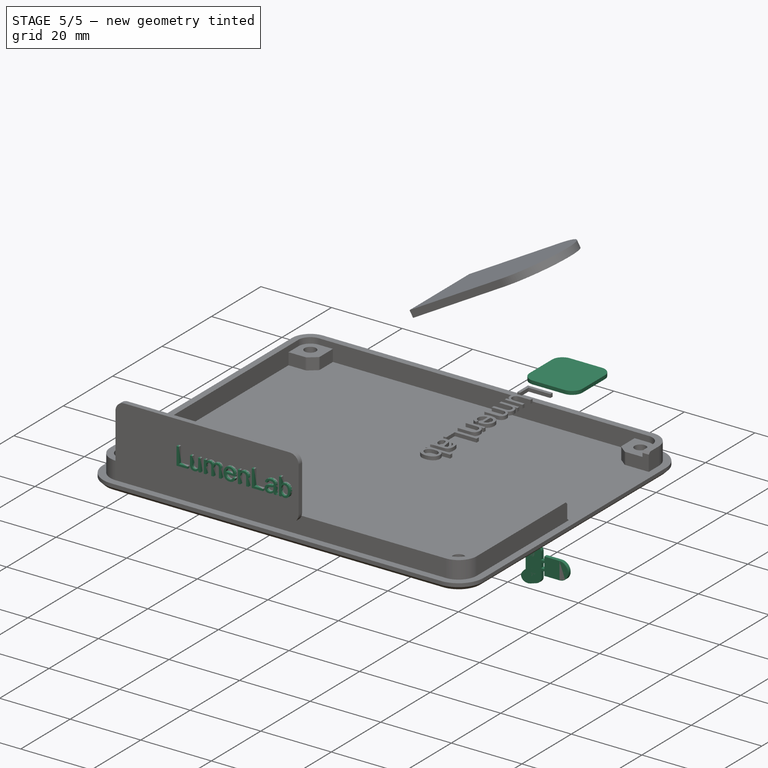
[diagram: stage 5 of 5 — iso view after this stage's code; geometry added in this stage tinted green]
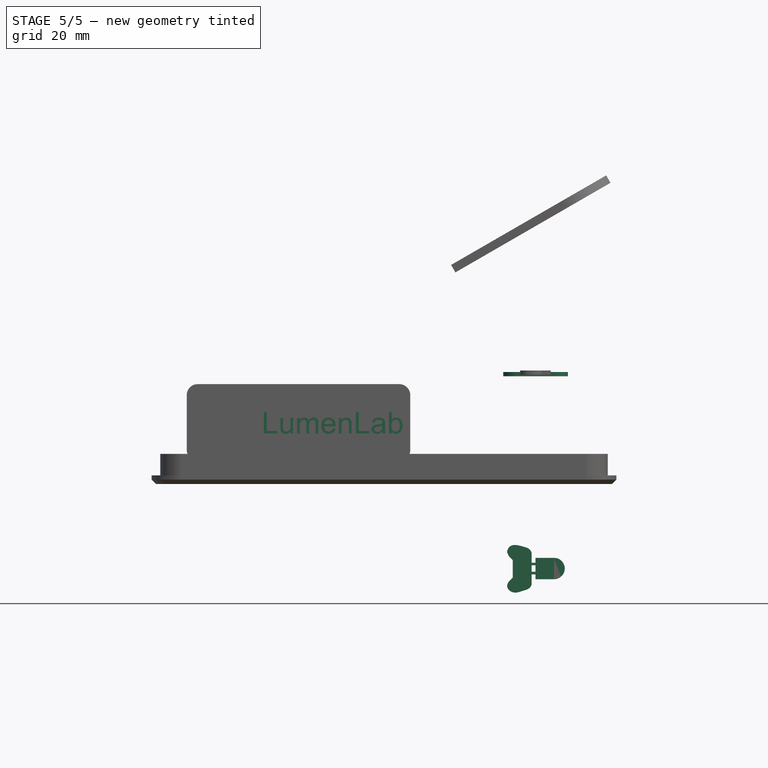
[diagram: stage 5 of 5 — front view after this stage's code; geometry added in this stage tinted green]
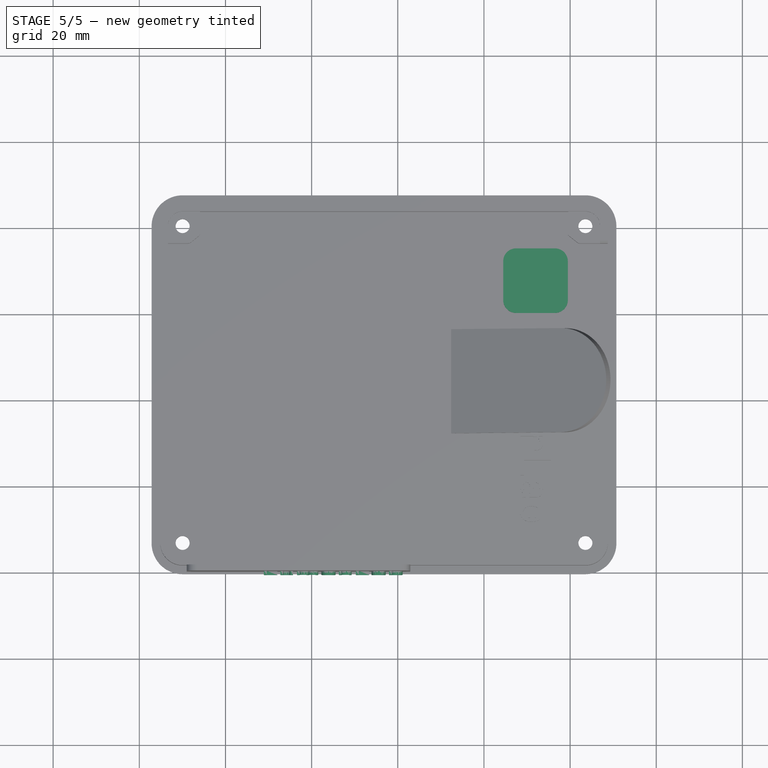
[diagram: stage 5 of 5 — top view after this stage's code; geometry added in this stage tinted green]
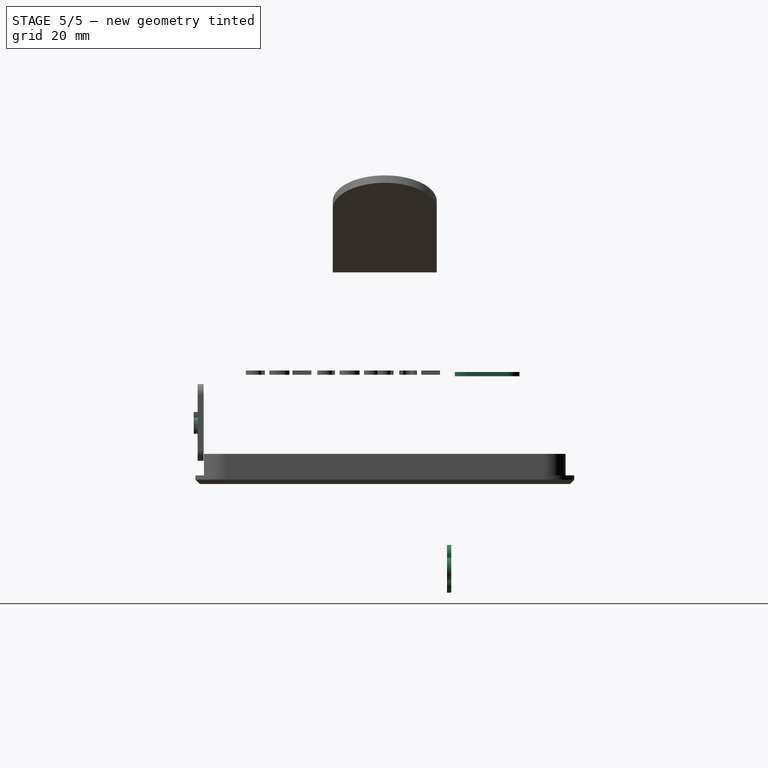
[diagram: stage 5 of 5 — right view after this stage's code; geometry added in this stage tinted green]
FEATURE [PartDesign::Body] Body003  label="logo-controller"
  AllowCompound = false
  Group = -> [Binder002,Sketch022,Pad009]
  Origin = -> Origin063
  Placement = pos=(0,-0.8,0) rot=(0,0,1;0rad)
  Tip = -> Pad009
FEATURE [PartDesign::SubShapeBinder] Binder003
  BindCopyOnChange = 0
  BindMode = 0
  ClaimChildren = false
  Context = -> Body004 [Binder003.]
  Fuse = false
  MakeFace = true
  OffsetFill = false
  OffsetIntersection = false
  OffsetJoinType = 0
  OffsetOpenResult = false
  PartialLoad = false
  Refine = true
  Relative = true
  Support = -> [Body003,Body002]
  _Version = 2
FEATURE [Sketcher::SketchObject] Sketch023
  ArcFitTolerance = 1e-06
  AttachmentOffset = pos=(-5,0.5,40.75) rot=(0,0,1;0rad)
  AttachmentSupport = -> [XZ_Plane064]
  ExternalGeometry = -> [Binder003]
  ExternalTypes = [0]
  FullyConstrained = false
  MakeInternals = false
  MapMode = 5
  Placement = pos=(-5,-40.75,0.5) rot=(1,0,0;1.5708rad)
  _ExternalGeoVersion = 0
  sketch-geometry (4):
    g0: LineSegment StartX=-36.9059 StartY=7.32419 StartZ=0 EndX=-36.9059 EndY=11.0288 EndZ=0
    g1: ArcOfCircle CenterX=-35.0247 CenterY=11.0288 CenterZ=0 NormalX=0 NormalY=0 NormalZ=1 AngleXU=0 Radius=1.8812 StartAngle=-1.73692e-11 EndAngle=3.14159
    g2: LineSegment StartX=-33.1435 StartY=11.0288 StartZ=0 EndX=-33.1435 EndY=7.32419 EndZ=0
    g3: LineSegment StartX=-33.1435 StartY=7.32419 StartZ=0 EndX=-36.9059 EndY=7.32419 EndZ=0
  constraints (7):
    c: Tangent(g0,g1) = 1.5708
    c: Tangent(g1,g2) = 1.5708
    c: Coincident(g3,g2)
    c: Coincident(g3,g0)
    c: Symmetric(g-4,g-3,g1)
    c: Vertical(g0)
    c: Vertical(g2)
FEATURE [PartDesign::Pad] Pad010
  Direction = (0,-1,2e-16)
  Length = 1
  Length2 = 10
  Placement = pos=(0,0,0) rot=(1,0,0;1.5708rad)
  Profile = -> Sketch023
  ReferenceAxis = -> Sketch023 [N_Axis]
  Refine = true
  Reversed = true
  SideType = 0
  Suppressed = false
  Type = 0
  Type2 = 0
FEATURE [PartDesign::Body] Body004  label="logo-led"
  AllowCompound = false
  Group = -> [Binder003,Sketch023,Pad010]
  Origin = -> Origin064
  Placement = pos=(0,-0.8,0) rot=(0,0,1;0rad)
  Tip = -> Pad010
FEATURE [Part::Part2DObjectPython] ShapeString  # Draft 2D object (typed FeaturePython)
  FontFile = <path>
  Fuse = false
  Justification = 4
  JustificationReference = 0
  KeepLeftMargin = false
  MakeFace = true
  ObliqueAngle = 0
  Placement = pos=(-27,26.61,-6.35) rot=(0,0,-6;0rad)
  ScaleToSize = true
  Size = 5
  String = LumenLab
  Tracking = 0
FEATURE [Part::Mirroring] Mirror  label="ShapeString (mirrored)"
  Base = (4.76837e-07,28.31,-6.35)
  Normal = (-1,0,-1.19209e-07)
  Placement = pos=(28.52,54.74,0) rot=(0,0,1;3.14159rad)
  Source = -> ShapeString
FEATURE [Part::Extrusion] Extrude  label="logo-text"
  Base = -> Mirror
  Dir = (-2.38419e-07,0,-1)
  DirMode = 2
  FaceMakerClass = Part::FaceMakerBullseye
  FaceMakerMode = 3
  InnerWireTaper = 1
  LengthFwd = 1
  LengthRev = 0
  Placement = pos=(-16.5,-33.8,35) rot=(1,0,0;4.71239rad)
  Solid = true
  Symmetric = false
FEATURE [Sketcher::SketchObject] Sketch047
  ArcFitTolerance = 1e-06
  AttachmentSupport = -> [Pad005]
  ExternalGeometry = -> [Binder001]
  ExternalTypes = [0,0,0,0]
  FullyConstrained = true
  MakeInternals = false
  MapMode = 5
  Placement = pos=(0,0,-4e-16) rot=(1,0,0;3.14159rad)
  _ExternalGeoVersion = 1
  sketch-geometry (4):
    g0: Circle CenterX=-49.95 CenterY=-40 CenterZ=0 NormalX=0 NormalY=0 NormalZ=1 AngleXU=0 Radius=2.425
    g1: Circle CenterX=-49.9492 CenterY=33.5464 CenterZ=0 NormalX=0 NormalY=0 NormalZ=1 AngleXU=0 Radius=2.425
    g2: Circle CenterX=43.5508 CenterY=33.5498 CenterZ=0 NormalX=0 NormalY=0 NormalZ=1 AngleXU=0 Radius=2.425
    g3: Circle CenterX=43.551 CenterY=-39.9996 CenterZ=0 NormalX=0 NormalY=0 NormalZ=1 AngleXU=0 Radius=2.425
  constraints (8):
    c: Coincident(g0,g-3)
    c: Diameter(g0) = 4.85
    c: Coincident(g1,g-6)
    c: Coincident(g2,g-5)
    c: Coincident(g3,g-4)
    c: Equal(g0,g1)
    c: Equal(g0,g2)
    c: Equal(g0,g3)
FEATURE [PartDesign::Pocket] Pocket024
  BaseFeature = -> Pad005
  Direction = (0,0,1)
  Length = 9
  Length2 = 5
  Profile = -> Sketch047
  ReferenceAxis = -> Sketch047 [N_Axis]
  Refine = true
  SideType = 0
  Suppressed = false
  Type = 0
  Type2 = 0
FEATURE [PartDesign::Pocket] Pocket013
  BaseFeature = -> Pocket024
  Direction = (-1e-16,-1,-2.4e-15)
  Length = 1.6
  Length2 = 5
  Profile = -> Sketch025
  ReferenceAxis = -> Sketch025 [N_Axis]
  Refine = true
  SideType = 0
  Suppressed = false
  Type = 2
  Type2 = 0
FEATURE [PartDesign::LinearPattern] LinearPattern
  BaseFeature = -> Pocket013
  Direction = -> Sketch025 [H_Axis]
  Direction2 = -> Sketch025 [H_Axis]
  Length = 65
  Length2 = 100
  Mode = 0
  Mode2 = 0
  Occurrences = 11
  Occurrences2 = 1
  Offset = 6.5
  Offset2 = 100
  Originals = -> [Pocket013]
  Refine = true
  Reversed2 = false
  SpacingPattern = [0]
  SpacingPattern2 = [0]
  Spacings = [-1,-1,-1,-1,-1,-1,-1,-1,-1,-1]
  Suppressed = false
  TransformMode = 0
FEATURE [PartDesign::SubShapeBinder] Binder005
  BindCopyOnChange = 0
  BindMode = 0
  ClaimChildren = false
  Context = -> Body005 [Binder005.]
  Fuse = false
  MakeFace = true
  OffsetFill = false
  OffsetIntersection = false
  OffsetJoinType = 0
  OffsetOpenResult = false
  PartialLoad = false
  Refine = true
  Relative = true
  Support = -> [Body004]
  _Version = 2
FEATURE [Sketcher::SketchObject] Sketch026
  ArcFitTolerance = 1e-06
  AttachmentOffset = pos=(-5,0.5,40.75) rot=(0,0,1;0rad)
  AttachmentSupport = -> [XZ_Plane065]
  ExternalGeometry = -> [Binder005]
  ExternalTypes = [0,0]
  FullyConstrained = false
  MakeInternals = false
  MapMode = 5
  Placement = pos=(-5,-40.75,0.5) rot=(1,0,0;1.5708rad)
  _ExternalGeoVersion = 0
  sketch-geometry (15):
    g0: LineSegment StartX=-37.5059 StartY=11.0288 StartZ=0 EndX=-37.5059 EndY=6.72419 EndZ=0
    g1: LineSegment StartX=-37.5059 StartY=6.72419 StartZ=0 EndX=-36.3747 EndY=6.72419 EndZ=0
    g2: LineSegment StartX=-32.5435 StartY=6.72419 StartZ=0 EndX=-32.5435 EndY=11.0288 EndZ=0
    g3: ArcOfCircle CenterX=-35.0247 CenterY=11.0288 CenterZ=0 NormalX=0 NormalY=0 NormalZ=1 AngleXU=0 Radius=2.4812 StartAngle=-5.9401e-12 EndAngle=3.14159
    g4: LineSegment StartX=-36.3747 StartY=6.72419 StartZ=0 EndX=-36.3747 EndY=5.8346 EndZ=0
    g5: LineSegment StartX=-36.3747 StartY=5.8346 StartZ=0 EndX=-35.7747 EndY=5.8346 EndZ=0
    g6: LineSegment StartX=-35.7747 StartY=5.8346 StartZ=0 EndX=-35.7747 EndY=6.72419 EndZ=0
    g7: LineSegment StartX=-34.2747 StartY=6.72419 StartZ=0 EndX=-34.2747 EndY=5.8346 EndZ=0
    g8: LineSegment StartX=-34.2747 StartY=5.8346 StartZ=0 EndX=-33.6747 EndY=5.8346 EndZ=0
    g9: LineSegment StartX=-33.6747 StartY=5.8346 StartZ=0 EndX=-33.6747 EndY=6.72419 EndZ=0
    g10: LineSegment [constr] StartX=-34.2747 StartY=5.8346 StartZ=0 EndX=-35.7747 EndY=5.8346 EndZ=0
    g11: LineSegment StartX=-33.6747 StartY=6.72419 StartZ=0 EndX=-32.5435 EndY=6.72419 EndZ=0
    g12: LineSegment StartX=-35.7747 StartY=6.72419 StartZ=0 EndX=-34.2747 EndY=6.72419 EndZ=0
    g13: LineSegment [constr] StartX=-36.3747 StartY=6.72419 StartZ=0 EndX=-36.9059 EndY=7.32419 EndZ=0
    g14: LineSegment [constr] StartX=-33.6747 StartY=6.72419 StartZ=0 EndX=-33.1435 EndY=7.32419 EndZ=0
  constraints (40):
    c: Coincident(g0,g1)
    c: Coincident(g11,g2)
    c: Tangent(g2,g3) = -1.5708
    c: Coincident(g3,g0)
    c: Horizontal(g0,g-3)
    c: Horizontal(g2,g-4)
    c: Symmetric(g-3,g-4,g3)
    c: Vertical(g0)
    c: Distance(g0,g-3) = 0.6
    c: Coincident(g4,g5)
    c: Coincident(g5,g6)
    c: Vertical(g4)
    c: Vertical(g6)
    c: Horizontal(g5)
    c: Distance(g4,g6) = 0.6
    c: Coincident(g7,g8)
    c: Coincident(g8,g9)
    c: Vertical(g7)
    c: Vertical(g9)
    c: Horizontal(g8)
    c: Distance(g7,g9) = 0.6
    c: Distance(g10) = 1.5
    c: Coincident(g10,g7)
    c: Coincident(g10,g5)
    c: Distance(g-4,g11) = 0.6
    c: Horizontal(g11)
    c: Coincident(g7,g12)
    c: Coincident(g11,g9)
    c: Horizontal(g1)
    c: Horizontal(g12)
    c: Coincident(g4,g1)
    c: Coincident(g12,g6)
    c: Horizontal(g10)
    c: Horizontal(g9,g7)
    c: Horizontal(g6,g1)
    c: Coincident(g13,g1)
    c: Coincident(g13,g-3)
    c: Coincident(g14,g9)
    c: Coincident(g14,g-4)
    c: Equal(g14,g13)
FEATURE [PartDesign::Pad] Pad011
  Direction = (0,-1,2e-16)
  Length = 1
  Length2 = 10
  Placement = pos=(0,0,0) rot=(1,0,0;1.5708rad)
  Profile = -> Sketch026
  ReferenceAxis = -> Sketch026 [N_Axis]
  Refine = true
  Reversed = true
  SideType = 0
  Suppressed = false
  Type = 0
  Type2 = 0
FEATURE [PartDesign::Body] Body005  label="logo-led-outline"
  AllowCompound = false
  Group = -> [Sketch026,Pad011,Binder005]
  Origin = -> Origin065
  Placement = pos=(0,-0.8,0) rot=(0,0,1;0rad)
  Tip = -> Pad011
FEATURE [Sketcher::SketchObject] Sketch048
  ArcFitTolerance = 1e-06
  ExternalGeometry = -> [LinearPattern]
  ExternalTypes = [0,0,0,0,0,0,0]
  FullyConstrained = true
  MakeInternals = false
  MapMode = 5
  Placement = pos=(-2.83e-14,47.1996,1.133e-13) rot=(0,0.707107,0.707107;3.14159rad)
  _ExternalGeoVersion = 1
  sketch-geometry (11):
    g0: ArcOfCircle CenterX=-32.6622 CenterY=13.1501 CenterZ=0 NormalX=0 NormalY=0 NormalZ=1 AngleXU=0 Radius=1 StartAngle=5.7277 EndAngle=8.86929
    g1: ArcOfCircle CenterX=-35.1622 CenterY=9.12224 CenterZ=0 NormalX=0 NormalY=0 NormalZ=1 AngleXU=0 Radius=1 StartAngle=2.58611 EndAngle=5.7277
    g2: LineSegment StartX=-31.8126 StartY=12.6227 StartZ=0 EndX=-34.3126 EndY=8.59488 EndZ=0
    g3: LineSegment StartX=-33.5118 StartY=13.6775 StartZ=0 EndX=-36.0118 EndY=9.64959 EndZ=0
    g4: ArcOfCircle CenterX=38.8378 CenterY=2.67766 CenterZ=0 NormalX=0 NormalY=0 NormalZ=1 AngleXU=0 Radius=1 StartAngle=5.7277 EndAngle=8.86929
    g5: ArcOfCircle CenterX=36.3378 CenterY=-1.3502 CenterZ=0 NormalX=0 NormalY=0 NormalZ=1 AngleXU=0 Radius=1 StartAngle=2.58611 EndAngle=5.7277
    g6: LineSegment StartX=39.6874 StartY=2.15031 StartZ=0 EndX=37.1874 EndY=-1.87755 EndZ=0
    g7: LineSegment StartX=37.9882 StartY=3.20502 StartZ=0 EndX=35.4882 EndY=-0.822843 EndZ=0
    g8: LineSegment [constr] StartX=-28.6622 StartY=-1.3502 StartZ=0 EndX=-35.1622 EndY=-1.3502 EndZ=0
    g9: LineSegment [constr] StartX=-26.1622 StartY=13.1501 StartZ=0 EndX=-32.6622 EndY=13.1501 EndZ=0
    g10: LineSegment [constr] StartX=29.8378 StartY=-1.3502 StartZ=0 EndX=36.3378 EndY=-1.3502 EndZ=0
  constraints (26):
    c: Tangent(g0,g2) = 1.5708
    c: Tangent(g0,g3) = -1.5708
    c: Tangent(g1,g2) = 1.5708
    c: Tangent(g1,g3) = -1.5708
    c: Equal(g0,g1)
    c: Tangent(g4,g6) = 1.5708
    c: Tangent(g4,g7) = -1.5708
    c: Tangent(g5,g6) = 1.5708
    c: Tangent(g5,g7) = -1.5708
    c: Equal(g4,g5)
    c: Equal(g1,g-6)
    c: Parallel(g2,g-3)
    c: Vertical(g-6,g1)
    c: Horizontal(g-4,g0)
    c: Parallel(g-5,g7)
    c: Equal(g-7,g5)
    c: Horizontal(g-7,g5)
    c: Vertical(g-8,g4)
    c: Coincident(g8,g-7)
    c: Coincident(g8,g-6)
    c: Coincident(g9,g-4)
    c: Coincident(g9,g0)
    c: Coincident(g10,g-9)
    c: Coincident(g10,g5)
    c: Equal(g8,g9)
    c: Equal(g8,g10)
FEATURE [PartDesign::Pocket] Pocket025
  BaseFeature = -> LinearPattern
  Direction = (-1e-16,-1,-2.4e-15)
  Length = 5
  Length2 = 5
  Profile = -> Sketch048
  ReferenceAxis = -> Sketch048 [N_Axis]
  Refine = true
  SideType = 0
  Suppressed = false
  Type = 2
  Type2 = 0
FEATURE [PartDesign::Pocket] Pocket014
  BaseFeature = -> Pocket025
  Direction = (0,1,-1.8e-15)
  Length = 9.5
  Length2 = 5
  Profile = -> Sketch027
  ReferenceAxis = -> Sketch027 [N_Axis]
  Refine = true
  SideType = 0
  Suppressed = false
  Type = 0
  Type2 = 0
FEATURE [PartDesign::Pad] Pad013
  BaseFeature = -> Pocket014
  Direction = (0,0,1)
  Length = 12
  Length2 = 10
  Profile = -> Sketch031
  ReferenceAxis = -> Sketch031 [N_Axis]
  Refine = true
  SideType = 0
  Suppressed = false
  Type = 0
  Type2 = 0
FEATURE [Sketcher::SketchObject] Sketch032
  ArcFitTolerance = 1e-06
  AttachmentSupport = -> [Pad013]
  ExternalGeometry = -> [Pad013]
  ExternalTypes = [0,0]
  FullyConstrained = false
  MakeInternals = false
  MapMode = 5
  Placement = pos=(0,-25.9581,0) rot=(1,0,0;1.5708rad)
  _ExternalGeoVersion = 1
  sketch-geometry (3):
    g0: LineSegment StartX=16.7268 StartY=18.6498 StartZ=0 EndX=-31.092 EndY=30.6498 EndZ=0
    g1: LineSegment StartX=-31.092 StartY=30.6498 StartZ=0 EndX=16.7268 EndY=30.6498 EndZ=0
    g2: LineSegment StartX=16.7268 StartY=30.6498 StartZ=0 EndX=16.7268 EndY=18.6498 EndZ=0
  constraints (6):
    c: Coincident(g0,g-3)
    c: PointOnObject(g0,g-4)
    c: Coincident(g0,g1)
    c: Coincident(g1,g-4)
    c: Coincident(g1,g2)
    c: Coincident(g2,g0)
FEATURE [PartDesign::Pocket] Pocket016
  BaseFeature = -> Pad013
  Direction = (0,1,-2e-16)
  Length = 5
  Length2 = 5
  Profile = -> Sketch032
  ReferenceAxis = -> Sketch032 [N_Axis]
  Refine = true
  SideType = 0
  Suppressed = false
  Type = 2
  Type2 = 0
FEATURE [PartDesign::Pocket] Pocket018
  BaseFeature = -> Pocket016
  Direction = (-1e-16,-1,2e-16)
  Length = 54
  Length2 = 5
  Profile = -> Sketch039
  ReferenceAxis = -> Sketch039 [N_Axis]
  Refine = true
  SideType = 0
  Suppressed = false
  Type = 0
  Type2 = 0
FEATURE [PartDesign::Chamfer] Chamfer
  Angle = 45
  Base = -> Pocket018 [Vertex205,Vertex202,Edge298,Edge329,Edge297]
  BaseFeature = -> Pocket018
  ChamferType = 0
  FlipDirection = false
  Refine = true
  Size = 3.5
  Size2 = 1
  SupportTransform = false
  Suppressed = false
  UseAllEdges = false
FEATURE [PartDesign::Chamfer] Chamfer007
  Angle = 45
  Base = -> Chamfer [Edge12,Edge10,Edge99]
  BaseFeature = -> Chamfer
  ChamferType = 0
  FlipDirection = false
  Refine = true
  Size = 3.5
  Size2 = 1
  SupportTransform = false
  Suppressed = false
  UseAllEdges = false
FEATURE [PartDesign::Pocket] Pocket019
  BaseFeature = -> Chamfer007
  Direction = (0,0,1)
  Length = 14
  Length2 = 5
  Profile = -> Sketch030
  ReferenceAxis = -> Sketch030 [N_Axis]
  Refine = true
  SideType = 0
  Suppressed = false
  Type = 0
  Type2 = 0
FEATURE [PartDesign::Pad] Pad018
  BaseFeature = -> Pocket019
  Direction = (0,0,1)
  Length = 7.5
  Length2 = 10
  Profile = -> Sketch029
  ReferenceAxis = -> Sketch029 [N_Axis]
  Refine = true
  SideType = 0
  Suppressed = false
  Type = 0
  Type2 = 0
FEATURE [PartDesign::Pocket] Pocket020
  BaseFeature = -> Pad018
  Direction = (1,-2e-16,-3e-15)
  Length = 5
  Length2 = 5
  Profile = -> Sketch040
  ReferenceAxis = -> Sketch040 [N_Axis]
  Refine = true
  SideType = 0
  Suppressed = false
  Type = 2
  Type2 = 0
FEATURE [Sketcher::SketchObject] Sketch041
  ArcFitTolerance = 1e-06
  AttachmentSupport = -> [Pocket020]
  ExternalGeometry = -> [Pocket020]
  ExternalTypes = [0,0]
  FullyConstrained = true
  MakeInternals = false
  MapMode = 5
  Placement = pos=(-57.1492,3.77e-14,1.897e-13) rot=(0.57735,-0.57735,-0.57735;2.0944rad)
  _ExternalGeoVersion = 1
  sketch-geometry (12):
    g0: Circle CenterX=8.5734 CenterY=2.7 CenterZ=0 NormalX=0 NormalY=0 NormalZ=1 AngleXU=0 Radius=1.5
    g1: Circle CenterX=-15.0266 CenterY=2.7 CenterZ=0 NormalX=0 NormalY=0 NormalZ=1 AngleXU=0 Radius=1.5
    g2: Circle CenterX=-15.0266 CenterY=26.3 CenterZ=0 NormalX=0 NormalY=0 NormalZ=1 AngleXU=0 Radius=1.5
    g3: Circle CenterX=8.5734 CenterY=26.3 CenterZ=0 NormalX=0 NormalY=0 NormalZ=1 AngleXU=0 Radius=1.5
    g4: LineSegment [constr] StartX=8.5734 StartY=2.7 StartZ=0 EndX=-15.0266 EndY=2.7 EndZ=0
    g5: LineSegment [constr] StartX=8.5734 StartY=2.7 StartZ=0 EndX=8.5734 EndY=26.3 EndZ=0
    g6: LineSegment [constr] StartX=8.5734 StartY=26.3 StartZ=0 EndX=-15.0266 EndY=26.3 EndZ=0
    g7: LineSegment [constr] StartX=-15.0266 StartY=26.3 StartZ=0 EndX=-15.0266 EndY=2.7 EndZ=0
    g8: LineSegment [constr] StartX=10.6234 StartY=4.5 StartZ=0 EndX=8.5734 EndY=2.7 EndZ=0
    g9: LineSegment [constr] StartX=-17.0766 StartY=4.5 StartZ=0 EndX=-15.0266 EndY=2.7 EndZ=0
    g10: LineSegment [constr] StartX=8.5734 StartY=26.3 StartZ=0 EndX=10.6234 EndY=24.5 EndZ=0
    g11: LineSegment [constr] StartX=-15.0266 StartY=26.3 StartZ=0 EndX=-17.0766 EndY=24.5 EndZ=0
  constraints (28):
    c: Diameter(g0) = 3
    c: Diameter(g1) = 3
    c: Diameter(g2) = 3
    c: Diameter(g3) = 3
    c: Coincident(g4,g0)
    c: Coincident(g4,g1)
    c: Horizontal(g4)
    c: Coincident(g5,g0)
    c: Coincident(g5,g3)
    c: Vertical(g5)
    c: Coincident(g6,g3)
    c: Coincident(g6,g2)
    c: Horizontal(g6)
    c: Coincident(g7,g2)
    c: Coincident(g7,g1)
    c: Vertical(g7)
    c: Equal(g4,g5)
    c: DistanceY(g5,g5) = 23.6
    c: Coincident(g8,g-3)
    c: Coincident(g8,g0)
    c: Coincident(g9,g-4)
    c: Coincident(g9,g1)
    c: Equal(g9,g8)
    c: Coincident(g10,g3)
    c: Coincident(g10,g-3)
    c: Coincident(g11,g2)
    c: Coincident(g11,g-4)
    c: Equal(g8,g10)
FEATURE [PartDesign::Pad] Pad019
  BaseFeature = -> Pocket020
  Direction = (-1,1e-16,3.2e-15)
  Length = 2.75
  Length2 = 10
  Profile = -> Sketch041
  ReferenceAxis = -> Sketch041 [N_Axis]
  Refine = true
  Reversed = true
  SideType = 0
  Suppressed = false
  Type = 0
  Type2 = 0
FEATURE [Sketcher::SketchObject] Sketch042
  ArcFitTolerance = 1e-06
  AttachmentSupport = -> [Pad019]
  ExternalGeometry = -> [Pad019]
  ExternalTypes = [0,0]
  FullyConstrained = false
  MakeInternals = false
  MapMode = 5
  Placement = pos=(5.39381,4.9e-15,21.4938) rot=(0,1,0;0.24587rad)
  _ExternalGeoVersion = 1
  sketch-geometry (2):
    g0: Circle CenterX=-29.1603 CenterY=16.0781 CenterZ=0 NormalX=0 NormalY=0 NormalZ=1 AngleXU=0 Radius=3.22165
    g1: Circle CenterX=-29.1603 CenterY=-9.72188 CenterZ=0 NormalX=0 NormalY=0 NormalZ=1 AngleXU=0 Radius=3.22165
  constraints (3):
    c: Equal(g0,g1)
    c: Coincident(g1,g-4)
    c: Coincident(g0,g-3)
FEATURE [PartDesign::Pocket] Pocket021
  BaseFeature = -> Pad019
  Direction = (-0.2434,0,-0.969926)
  Length = 3
  Length2 = 5
  Profile = -> Sketch042
  ReferenceAxis = -> Sketch042 [N_Axis]
  Refine = true
  Reversed = true
  SideType = 0
  Suppressed = false
  Type = 1
  Type2 = 0
FEATURE [PartDesign::Chamfer] Chamfer008
  Angle = 45
  Base = -> Pocket021 [Edge612,Edge605,Edge581,Edge607,Edge611]
  BaseFeature = -> Pocket021
  ChamferType = 0
  FlipDirection = false
  Refine = true
  Size = 1.5
  Size2 = 1
  SupportTransform = false
  Suppressed = false
  UseAllEdges = false
FEATURE [PartDesign::Chamfer] Chamfer009
  Angle = 45
  Base = -> Chamfer008 [Edge15,Edge26]
  BaseFeature = -> Chamfer008
  ChamferType = 0
  FlipDirection = false
  Refine = true
  Size = 4
  Size2 = 1
  SupportTransform = false
  Suppressed = false
  UseAllEdges = false
FEATURE [PartDesign::Plane] DatumPlane002
  AttachmentSupport = -> [Chamfer009]
  Length = 107.999
  MapMode = 45
  Placement = pos=(-35.7786,-7.56765,28.6498) rot=(0.57735,0.57735,0.57735;2.0944rad)
  ResizeMode = 0
  Width = 134.358
FEATURE [PartDesign::Mirrored] Mirrored004
  BaseFeature = -> Chamfer009
  MirrorPlane = -> DatumPlane002
  Originals = -> [Pocket019]
  Refine = true
  Suppressed = false
  TransformMode = 0
FEATURE [PartDesign::Chamfer] Chamfer010
  Angle = 45
  Base = -> Mirrored004 [Edge37,Edge35,Edge33,Edge31,Edge29,Edge27,Edge25,Edge9,Edge4]
  BaseFeature = -> Mirrored004
  ChamferType = 0
  FlipDirection = false
  Refine = true
  Size = 2
  Size2 = 1
  SupportTransform = false
  Suppressed = false
  UseAllEdges = false
FEATURE [App::Point] Origin106  label="Origin107"
  Role = Origin
FEATURE [PartDesign::FeatureBase] Clone
  BaseFeature = -> Body002
  Placement = pos=(72,34,58.4) rot=(1,0,0;1.5708rad)
  Suppressed = false
FEATURE [PartDesign::Body] Body008  label="logo-outline-top"
  AllowCompound = false
  Group = -> [Clone]
  Origin = -> Origin105
  Placement = pos=(0,0,0.25) rot=(0,0,1;0rad)
  Tip = -> Clone
FEATURE [App::Point] Origin108  label="Origin110"
  Role = Origin
FEATURE [PartDesign::FeatureBase] Clone001
  BaseFeature = -> Body003
  Placement = pos=(24.75,58.4,-67) rot=(0,1,0;1.5708rad)
  Suppressed = false
FEATURE [PartDesign::Body] Body009  label="logo-controller-top"
  AllowCompound = false
  Group = -> [Clone001]
  Origin = -> Origin107
  Placement = pos=(0,0,0.4) rot=(1,0,0;1.5708rad)
  Tip = -> Clone001
FEATURE [App::Point] Origin110  label="Origin112"
  Role = Origin
FEATURE [PartDesign::FeatureBase] Clone002
  BaseFeature = -> Body005
  Placement = pos=(24.75,58.4,-67) rot=(0,1,0;1.5708rad)
  Suppressed = false
FEATURE [PartDesign::Body] Body010  label="logo-led-outline-top"
  AllowCompound = false
  Group = -> [Clone002]
  Origin = -> Origin109
  Placement = pos=(0,0,0.4) rot=(1,0,0;1.5708rad)
  Tip = -> Clone002
FEATURE [App::Point] Origin112  label="Origin115"
  Role = Origin
FEATURE [PartDesign::FeatureBase] Clone003
  BaseFeature = -> Body004
  Placement = pos=(24.75,58.4,-67) rot=(0,1,0;1.5708rad)
  Suppressed = false
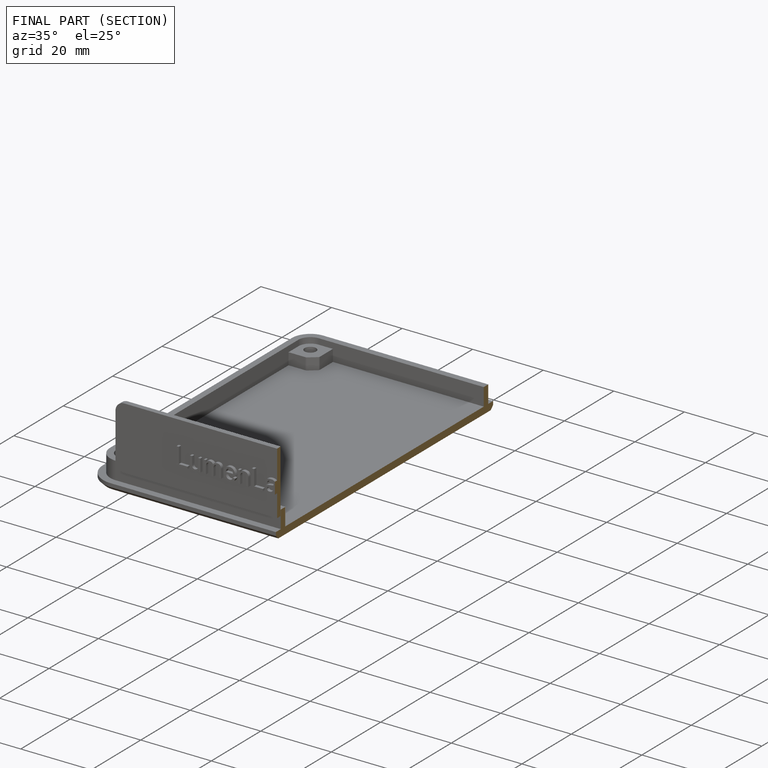
[diagram: finished part — half-section view (interior)]
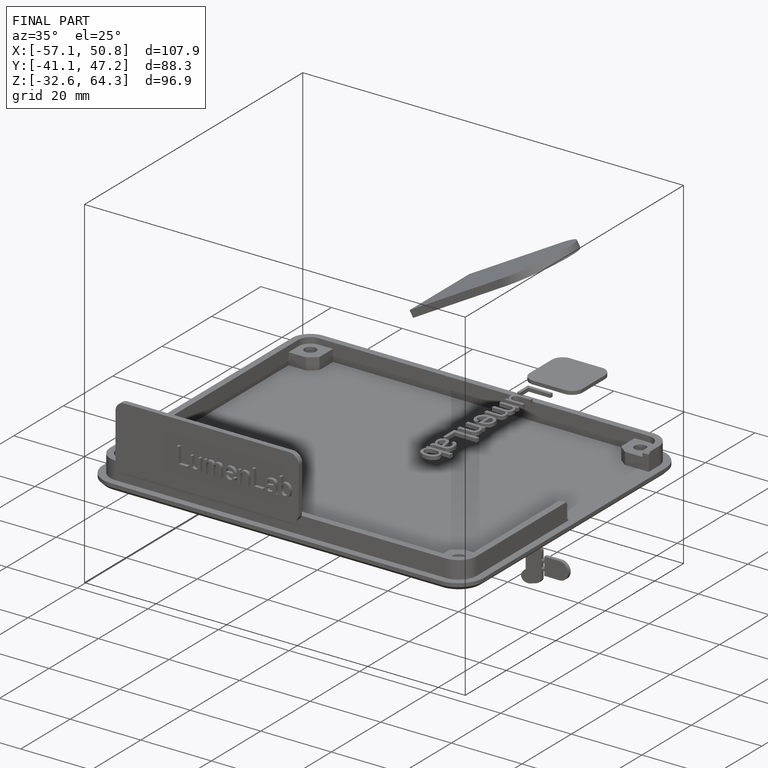
[diagram: finished part — iso view with bounding-box wireframe]
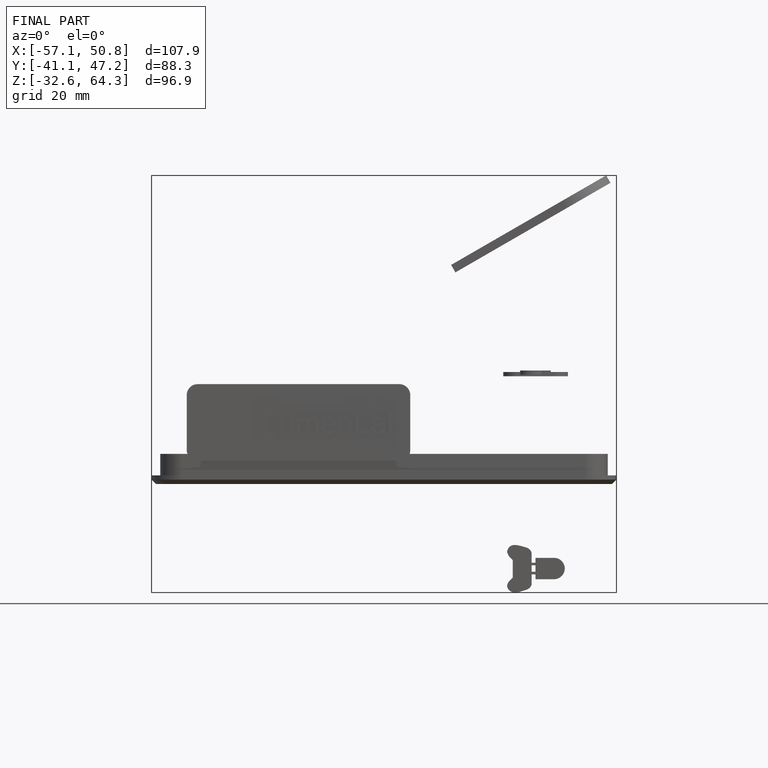
[diagram: finished part — front view with bounding-box wireframe]
